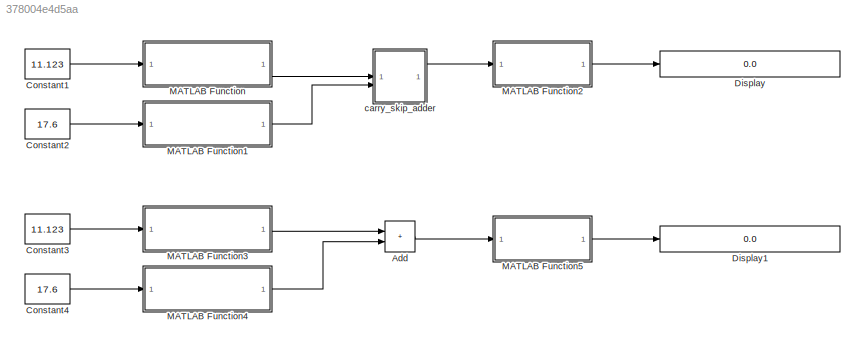
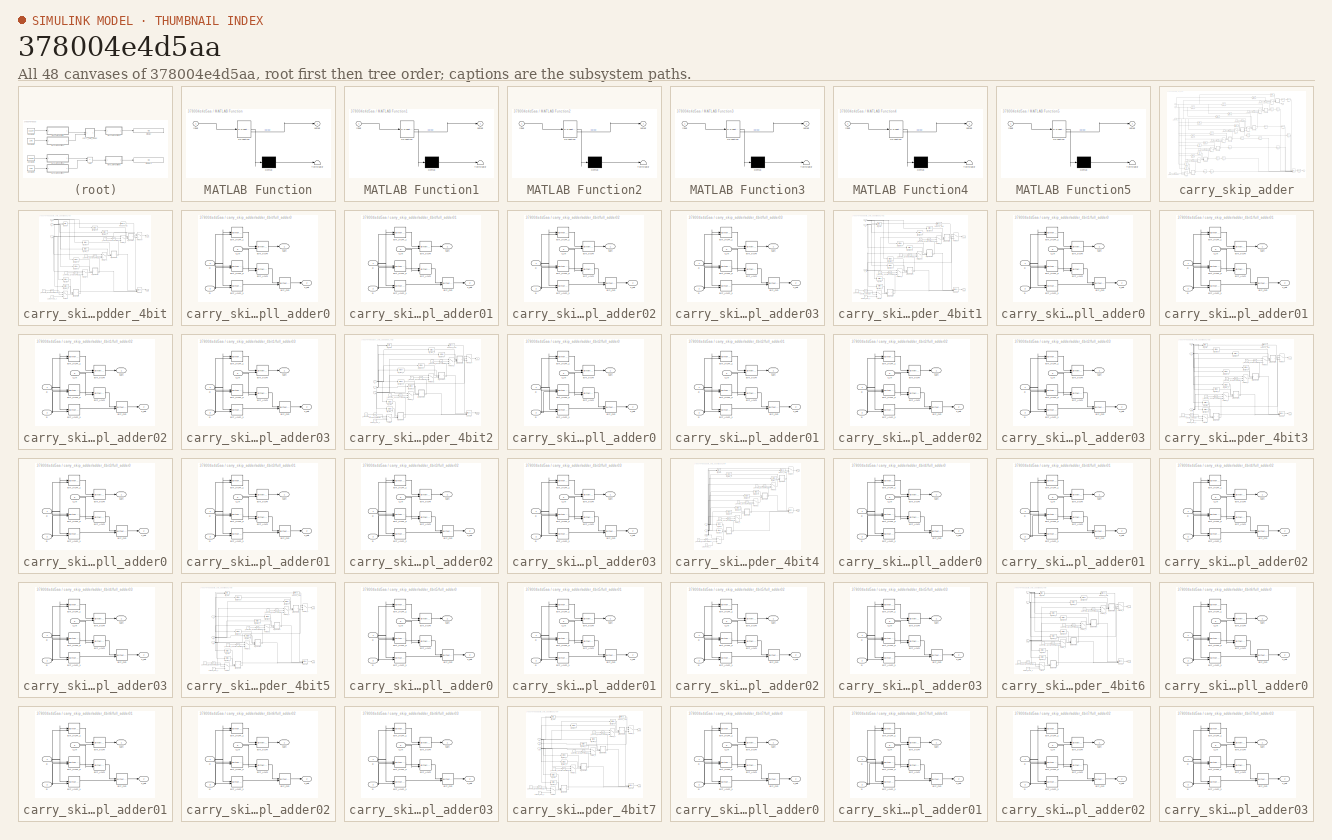
[diagram: thumbnail index - all 48 canvases of the model, root first then tree order]
MODEL slx_378004e4d5aa
KIND model
CONFIG AbsTol = auto
CONFIG EnableMultiTasking = off
CONFIG FixedStep = auto
CONFIG MaxStep = auto
CONFIG MinStep = auto
CONFIG PreLoadFcn = addpath('<path>');\n
CONFIG RelTol = 1e-3
CONFIG SampleTimeConstraint = Unconstrained
CONFIG SolverName = FixedStepDiscrete
CONFIG StartTime = 0.0
CONFIG StopTime = 10.0
BLOCK [Sum] Add
  IconShape = rectangular
BLOCK [Constant] Constant1
  OutDataTypeStr = fixdt(1,32,8)
  Value = 11.123
BLOCK [Constant] Constant2
  OutDataTypeStr = fixdt(1,32,8)
  Value = 17.6
BLOCK [Constant] Constant3
  OutDataTypeStr = fixdt(1,32,8)
  Value = 11.123
BLOCK [Constant] Constant4
  OutDataTypeStr = fixdt(1,32,8)
  Value = 17.6
BLOCK [Display] Display
  Decimation = 1
  Format = long
BLOCK [Display] Display1
  Decimation = 1
  Format = long
BLOCK [SubSystem] MATLAB Function
  ErrorFcn = Stateflow.Translate.translate
  LibrarySourceBlock = simulink/User-Defined\nFunctions/MATLAB Function
  PermitHierarchicalResolution = ExplicitOnly
  SFBlockType = MATLAB Function
  TreatAsAtomicUnit = on
BLOCK [Demux] MATLAB Function/ Demux 
  Outputs = 1
BLOCK [S-Function] MATLAB Function/ SFunction 
  EnableBusSupport = on
  FunctionName = sf_sfun
  PortCounts = [1 2]
  SFcnIsStateOwnerBlock = off
  SFunctionDeploymentMode = off
  Tag = Stateflow S-Function 2
BLOCK [Terminator] MATLAB Function/ Terminator 
BLOCK [Inport] MATLAB Function/input
BLOCK [Outport] MATLAB Function/output
BLOCK [SubSystem] MATLAB Function1
  ErrorFcn = Stateflow.Translate.translate
  LibrarySourceBlock = simulink/User-Defined\nFunctions/MATLAB Function
  PermitHierarchicalResolution = ExplicitOnly
  SFBlockType = MATLAB Function
  TreatAsAtomicUnit = on
BLOCK [Demux] MATLAB Function1/ Demux 
  Outputs = 1
BLOCK [S-Function] MATLAB Function1/ SFunction 
  EnableBusSupport = on
  FunctionName = sf_sfun
  PortCounts = [1 2]
  SFcnIsStateOwnerBlock = off
  SFunctionDeploymentMode = off
  Tag = Stateflow S-Function 1
BLOCK [Terminator] MATLAB Function1/ Terminator 
BLOCK [Inport] MATLAB Function1/input
BLOCK [Outport] MATLAB Function1/output
BLOCK [SubSystem] MATLAB Function2
  ErrorFcn = Stateflow.Translate.translate
  LibrarySourceBlock = simulink/User-Defined\nFunctions/MATLAB Function
  PermitHierarchicalResolution = ExplicitOnly
  SFBlockType = MATLAB Function
  TreatAsAtomicUnit = on
BLOCK [Demux] MATLAB Function2/ Demux 
  Outputs = 1
BLOCK [S-Function] MATLAB Function2/ SFunction 
  EnableBusSupport = on
  FunctionName = sf_sfun
  PortCounts = [1 2]
  SFcnIsStateOwnerBlock = off
  SFunctionDeploymentMode = off
  Tag = Stateflow S-Function 3
BLOCK [Terminator] MATLAB Function2/ Terminator 
BLOCK [Inport] MATLAB Function2/input
BLOCK [Outport] MATLAB Function2/output
BLOCK [SubSystem] MATLAB Function3
  ErrorFcn = Stateflow.Translate.translate
  LibrarySourceBlock = simulink/User-Defined\nFunctions/MATLAB Function
  PermitHierarchicalResolution = ExplicitOnly
  SFBlockType = MATLAB Function
  TreatAsAtomicUnit = on
BLOCK [Demux] MATLAB Function3/ Demux 
  Outputs = 1
BLOCK [S-Function] MATLAB Function3/ SFunction 
  EnableBusSupport = on
  FunctionName = sf_sfun
  PortCounts = [1 2]
  SFcnIsStateOwnerBlock = off
  SFunctionDeploymentMode = off
  Tag = Stateflow S-Function 4
BLOCK [Terminator] MATLAB Function3/ Terminator 
BLOCK [Inport] MATLAB Function3/input
BLOCK [Outport] MATLAB Function3/output
BLOCK [SubSystem] MATLAB Function4
  ErrorFcn = Stateflow.Translate.translate
  LibrarySourceBlock = simulink/User-Defined\nFunctions/MATLAB Function
  PermitHierarchicalResolution = ExplicitOnly
  SFBlockType = MATLAB Function
  TreatAsAtomicUnit = on
BLOCK [Demux] MATLAB Function4/ Demux 
  Outputs = 1
BLOCK [S-Function] MATLAB Function4/ SFunction 
  EnableBusSupport = on
  FunctionName = sf_sfun
  PortCounts = [1 2]
  SFcnIsStateOwnerBlock = off
  SFunctionDeploymentMode = off
  Tag = Stateflow S-Function 5
BLOCK [Terminator] MATLAB Function4/ Terminator 
BLOCK [Inport] MATLAB Function4/input
BLOCK [Outport] MATLAB Function4/output
BLOCK [SubSystem] MATLAB Function5
  ErrorFcn = Stateflow.Translate.translate
  LibrarySourceBlock = simulink/User-Defined\nFunctions/MATLAB Function
  PermitHierarchicalResolution = ExplicitOnly
  SFBlockType = MATLAB Function
  TreatAsAtomicUnit = on
BLOCK [Demux] MATLAB Function5/ Demux 
  Outputs = 1
BLOCK [S-Function] MATLAB Function5/ SFunction 
  EnableBusSupport = on
  FunctionName = sf_sfun
  PortCounts = [1 2]
  SFcnIsStateOwnerBlock = off
  SFunctionDeploymentMode = off
  Tag = Stateflow S-Function 6
BLOCK [Terminator] MATLAB Function5/ Terminator 
BLOCK [Inport] MATLAB Function5/input
BLOCK [Outport] MATLAB Function5/output
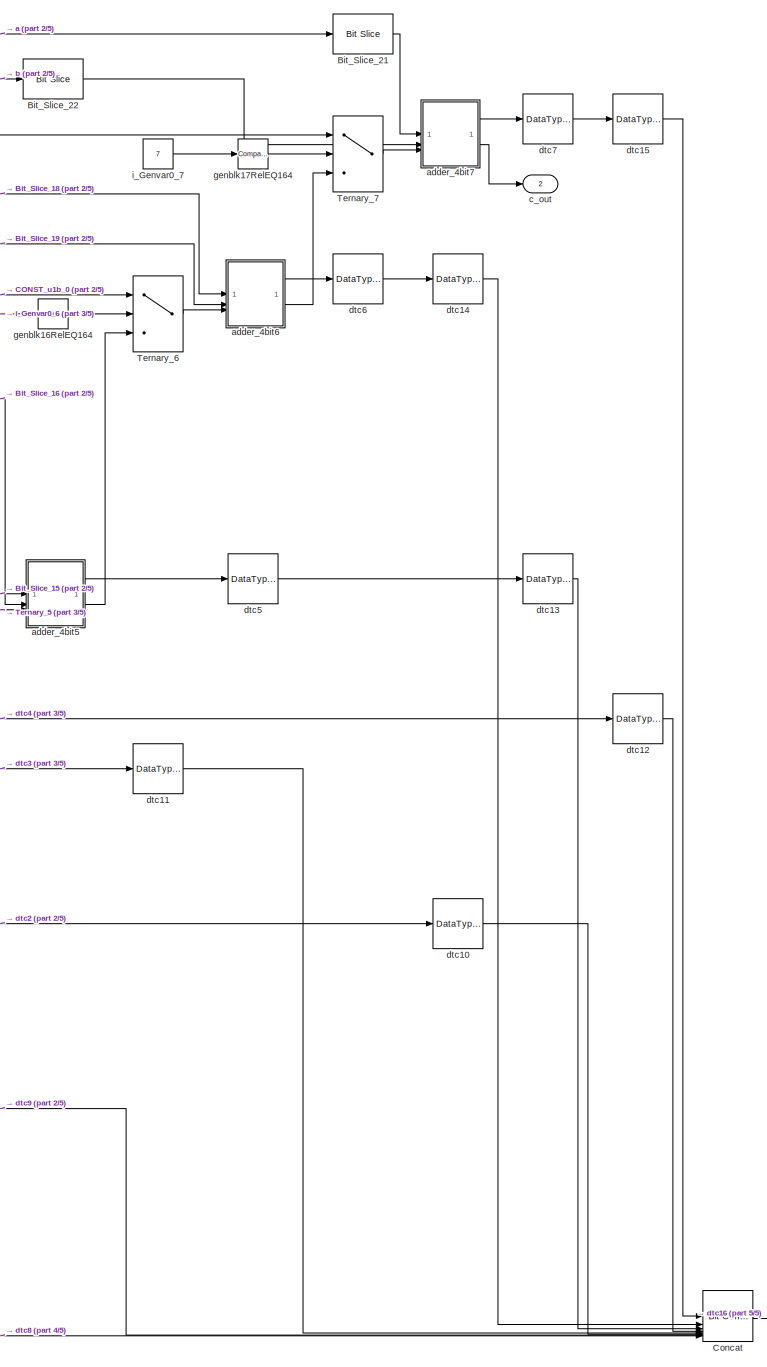
[diagram: carry_skip_adder - part 1/5, right side, full height]
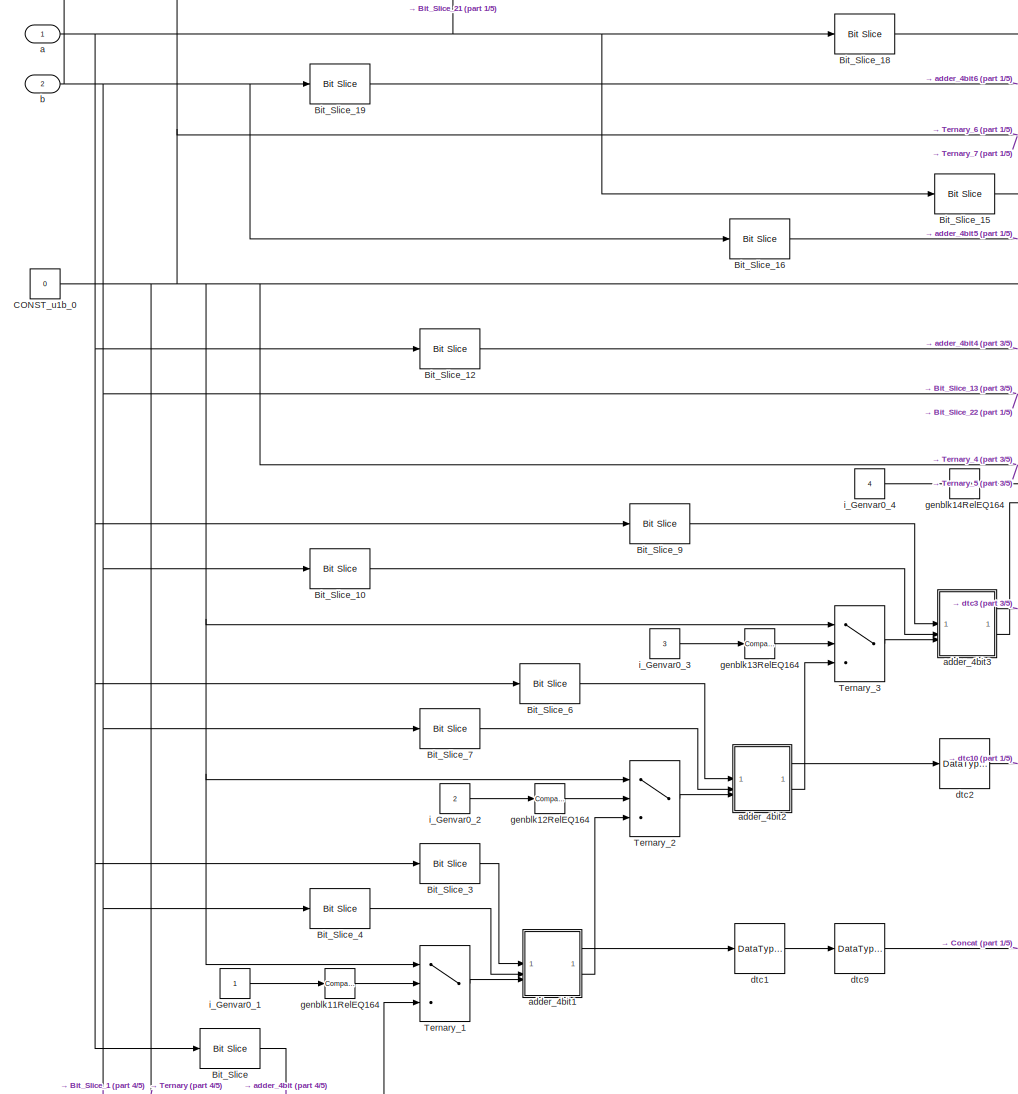
[diagram: carry_skip_adder - part 2/5, left side, full height]
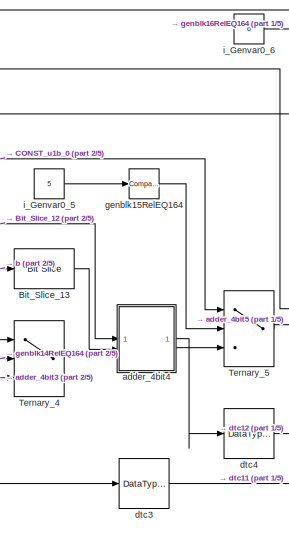
[diagram: carry_skip_adder - part 3/5, central region]
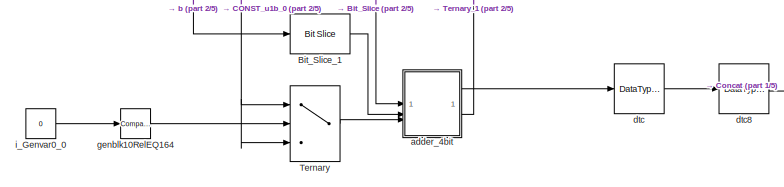
[diagram: carry_skip_adder - part 4/5, bottom left region]
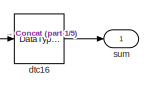
[diagram: carry_skip_adder - part 5/5, bottom right region]
BLOCK [SubSystem] carry_skip_adder
BLOCK [Reference] carry_skip_adder/Bit_Slice  REF=hdlsllib/Logic and Bit
Operations/Bit Slice
  SourceBlock = hdlsllib/Logic and Bit\nOperations/Bit Slice
  SourceType = Bit Slice
BLOCK [Reference] carry_skip_adder/Bit_Slice_1  REF=hdlsllib/Logic and Bit
Operations/Bit Slice
  SourceBlock = hdlsllib/Logic and Bit\nOperations/Bit Slice
  SourceType = Bit Slice
BLOCK [Reference] carry_skip_adder/Bit_Slice_10  REF=hdlsllib/Logic and Bit
Operations/Bit Slice
  SourceBlock = hdlsllib/Logic and Bit\nOperations/Bit Slice
  SourceType = Bit Slice
BLOCK [Reference] carry_skip_adder/Bit_Slice_12  REF=hdlsllib/Logic and Bit
Operations/Bit Slice
  SourceBlock = hdlsllib/Logic and Bit\nOperations/Bit Slice
  SourceType = Bit Slice
BLOCK [Reference] carry_skip_adder/Bit_Slice_13  REF=hdlsllib/Logic and Bit
Operations/Bit Slice
  SourceBlock = hdlsllib/Logic and Bit\nOperations/Bit Slice
  SourceType = Bit Slice
BLOCK [Reference] carry_skip_adder/Bit_Slice_15  REF=hdlsllib/Logic and Bit
Operations/Bit Slice
  SourceBlock = hdlsllib/Logic and Bit\nOperations/Bit Slice
  SourceType = Bit Slice
BLOCK [Reference] carry_skip_adder/Bit_Slice_16  REF=hdlsllib/Logic and Bit
Operations/Bit Slice
  SourceBlock = hdlsllib/Logic and Bit\nOperations/Bit Slice
  SourceType = Bit Slice
BLOCK [Reference] carry_skip_adder/Bit_Slice_18  REF=hdlsllib/Logic and Bit
Operations/Bit Slice
  SourceBlock = hdlsllib/Logic and Bit\nOperations/Bit Slice
  SourceType = Bit Slice
BLOCK [Reference] carry_skip_adder/Bit_Slice_19  REF=hdlsllib/Logic and Bit
Operations/Bit Slice
  SourceBlock = hdlsllib/Logic and Bit\nOperations/Bit Slice
  SourceType = Bit Slice
BLOCK [Reference] carry_skip_adder/Bit_Slice_21  REF=hdlsllib/Logic and Bit
Operations/Bit Slice
  SourceBlock = hdlsllib/Logic and Bit\nOperations/Bit Slice
  SourceType = Bit Slice
BLOCK [Reference] carry_skip_adder/Bit_Slice_22  REF=hdlsllib/Logic and Bit
Operations/Bit Slice
  SourceBlock = hdlsllib/Logic and Bit\nOperations/Bit Slice
  SourceType = Bit Slice
BLOCK [Reference] carry_skip_adder/Bit_Slice_3  REF=hdlsllib/Logic and Bit
Operations/Bit Slice
  SourceBlock = hdlsllib/Logic and Bit\nOperations/Bit Slice
  SourceType = Bit Slice
BLOCK [Reference] carry_skip_adder/Bit_Slice_4  REF=hdlsllib/Logic and Bit
Operations/Bit Slice
  SourceBlock = hdlsllib/Logic and Bit\nOperations/Bit Slice
  SourceType = Bit Slice
BLOCK [Reference] carry_skip_adder/Bit_Slice_6  REF=hdlsllib/Logic and Bit
Operations/Bit Slice
  SourceBlock = hdlsllib/Logic and Bit\nOperations/Bit Slice
  SourceType = Bit Slice
BLOCK [Reference] carry_skip_adder/Bit_Slice_7  REF=hdlsllib/Logic and Bit
Operations/Bit Slice
  SourceBlock = hdlsllib/Logic and Bit\nOperations/Bit Slice
  SourceType = Bit Slice
BLOCK [Reference] carry_skip_adder/Bit_Slice_9  REF=hdlsllib/Logic and Bit
Operations/Bit Slice
  SourceBlock = hdlsllib/Logic and Bit\nOperations/Bit Slice
  SourceType = Bit Slice
BLOCK [Constant] carry_skip_adder/CONST_u1b_0
  OutDataTypeStr = fixdt(0, 1, 0)
  SampleTime = -1
  Value = 0
BLOCK [Reference] carry_skip_adder/Concat  REF=hdlsllib/Logic and Bit
Operations/Bit Concat
  SourceBlock = hdlsllib/Logic and Bit\nOperations/Bit Concat
  SourceType = Bit Concat
BLOCK [Switch] carry_skip_adder/Ternary
  Criteria = u2 ~= 0
  InputSameDT = off
  OutDataTypeStr = fixdt(0, 1, 0)
  SampleTime = -1
  SaturateOnIntegerOverflow = off
  Threshold = double(0)
BLOCK [Switch] carry_skip_adder/Ternary_1
  Criteria = u2 ~= 0
  InputSameDT = off
  OutDataTypeStr = fixdt(0, 1, 0)
  SampleTime = -1
  SaturateOnIntegerOverflow = off
  Threshold = double(0)
BLOCK [Switch] carry_skip_adder/Ternary_2
  Criteria = u2 ~= 0
  InputSameDT = off
  OutDataTypeStr = fixdt(0, 1, 0)
  SampleTime = -1
  SaturateOnIntegerOverflow = off
  Threshold = double(0)
BLOCK [Switch] carry_skip_adder/Ternary_3
  Criteria = u2 ~= 0
  InputSameDT = off
  OutDataTypeStr = fixdt(0, 1, 0)
  SampleTime = -1
  SaturateOnIntegerOverflow = off
  Threshold = double(0)
BLOCK [Switch] carry_skip_adder/Ternary_4
  Criteria = u2 ~= 0
  InputSameDT = off
  OutDataTypeStr = fixdt(0, 1, 0)
  SampleTime = -1
  SaturateOnIntegerOverflow = off
  Threshold = double(0)
BLOCK [Switch] carry_skip_adder/Ternary_5
  Criteria = u2 ~= 0
  InputSameDT = off
  OutDataTypeStr = fixdt(0, 1, 0)
  SampleTime = -1
  SaturateOnIntegerOverflow = off
  Threshold = double(0)
BLOCK [Switch] carry_skip_adder/Ternary_6
  Criteria = u2 ~= 0
  InputSameDT = off
  OutDataTypeStr = fixdt(0, 1, 0)
  SampleTime = -1
  SaturateOnIntegerOverflow = off
  Threshold = double(0)
BLOCK [Switch] carry_skip_adder/Ternary_7
  Criteria = u2 ~= 0
  InputSameDT = off
  OutDataTypeStr = fixdt(0, 1, 0)
  SampleTime = -1
  SaturateOnIntegerOverflow = off
  Threshold = double(0)
BLOCK [Inport] carry_skip_adder/a
  OutDataTypeStr = int32
  SampleTime = -1
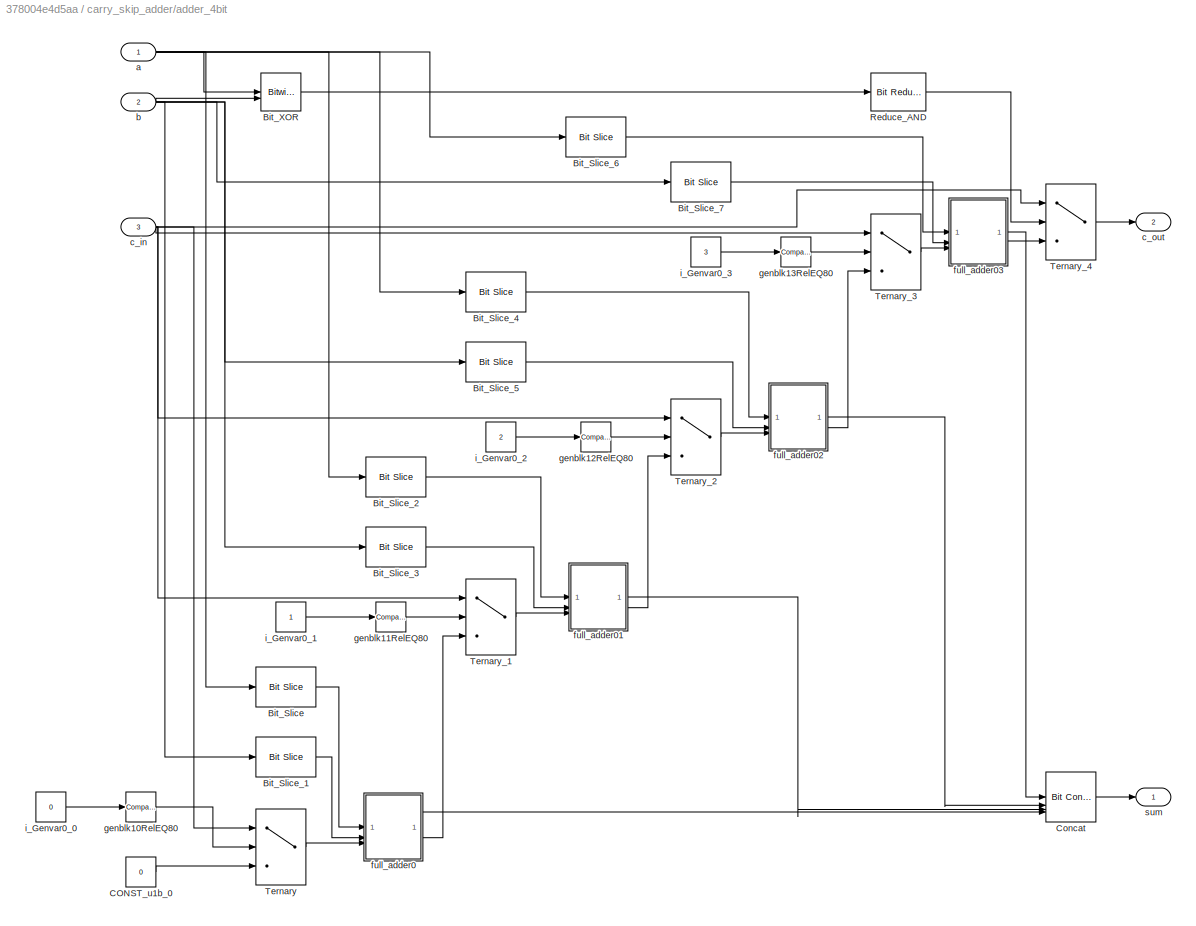
BLOCK [SubSystem] carry_skip_adder/adder_4bit
BLOCK [Reference] carry_skip_adder/adder_4bit/Bit_Slice  REF=hdlsllib/Logic and Bit
Operations/Bit Slice
  SourceBlock = hdlsllib/Logic and Bit\nOperations/Bit Slice
  SourceType = Bit Slice
BLOCK [Reference] carry_skip_adder/adder_4bit/Bit_Slice_1  REF=hdlsllib/Logic and Bit
Operations/Bit Slice
  SourceBlock = hdlsllib/Logic and Bit\nOperations/Bit Slice
  SourceType = Bit Slice
BLOCK [Reference] carry_skip_adder/adder_4bit/Bit_Slice_2  REF=hdlsllib/Logic and Bit
Operations/Bit Slice
  SourceBlock = hdlsllib/Logic and Bit\nOperations/Bit Slice
  SourceType = Bit Slice
BLOCK [Reference] carry_skip_adder/adder_4bit/Bit_Slice_3  REF=hdlsllib/Logic and Bit
Operations/Bit Slice
  SourceBlock = hdlsllib/Logic and Bit\nOperations/Bit Slice
  SourceType = Bit Slice
BLOCK [Reference] carry_skip_adder/adder_4bit/Bit_Slice_4  REF=hdlsllib/Logic and Bit
Operations/Bit Slice
  SourceBlock = hdlsllib/Logic and Bit\nOperations/Bit Slice
  SourceType = Bit Slice
BLOCK [Reference] carry_skip_adder/adder_4bit/Bit_Slice_5  REF=hdlsllib/Logic and Bit
Operations/Bit Slice
  SourceBlock = hdlsllib/Logic and Bit\nOperations/Bit Slice
  SourceType = Bit Slice
BLOCK [Reference] carry_skip_adder/adder_4bit/Bit_Slice_6  REF=hdlsllib/Logic and Bit
Operations/Bit Slice
  SourceBlock = hdlsllib/Logic and Bit\nOperations/Bit Slice
  SourceType = Bit Slice
BLOCK [Reference] carry_skip_adder/adder_4bit/Bit_Slice_7  REF=hdlsllib/Logic and Bit
Operations/Bit Slice
  SourceBlock = hdlsllib/Logic and Bit\nOperations/Bit Slice
  SourceType = Bit Slice
BLOCK [Reference] carry_skip_adder/adder_4bit/Bit_XOR  REF=simulink/Logic and Bit
Operations/Bitwise
Operator
  SourceBlock = simulink/Logic and Bit\nOperations/Bitwise\nOperator
  SourceType = Bitwise Operator
BLOCK [Constant] carry_skip_adder/adder_4bit/CONST_u1b_0
  OutDataTypeStr = fixdt(0, 1, 0)
  SampleTime = -1
  Value = 0
BLOCK [Reference] carry_skip_adder/adder_4bit/Concat  REF=hdlsllib/Logic and Bit
Operations/Bit Concat
  SourceBlock = hdlsllib/Logic and Bit\nOperations/Bit Concat
  SourceType = Bit Concat
BLOCK [Reference] carry_skip_adder/adder_4bit/Reduce_AND  REF=hdlsllib/Logic and Bit
Operations/Bit Reduce
  SourceBlock = hdlsllib/Logic and Bit\nOperations/Bit Reduce
  SourceType = Bit Reduce
BLOCK [Switch] carry_skip_adder/adder_4bit/Ternary
  Criteria = u2 ~= 0
  InputSameDT = off
  OutDataTypeStr = fixdt(0, 1, 0)
  SampleTime = -1
  SaturateOnIntegerOverflow = off
  Threshold = double(0)
BLOCK [Switch] carry_skip_adder/adder_4bit/Ternary_1
  Criteria = u2 ~= 0
  InputSameDT = off
  OutDataTypeStr = fixdt(0, 1, 0)
  SampleTime = -1
  SaturateOnIntegerOverflow = off
  Threshold = double(0)
BLOCK [Switch] carry_skip_adder/adder_4bit/Ternary_2
  Criteria = u2 ~= 0
  InputSameDT = off
  OutDataTypeStr = fixdt(0, 1, 0)
  SampleTime = -1
  SaturateOnIntegerOverflow = off
  Threshold = double(0)
BLOCK [Switch] carry_skip_adder/adder_4bit/Ternary_3
  Criteria = u2 ~= 0
  InputSameDT = off
  OutDataTypeStr = fixdt(0, 1, 0)
  SampleTime = -1
  SaturateOnIntegerOverflow = off
  Threshold = double(0)
BLOCK [Switch] carry_skip_adder/adder_4bit/Ternary_4
  Criteria = u2 ~= 0
  InputSameDT = off
  OutDataTypeStr = fixdt(0, 1, 0)
  SampleTime = -1
  SaturateOnIntegerOverflow = off
  Threshold = double(0)
BLOCK [Inport] carry_skip_adder/adder_4bit/a
  OutDataTypeStr = fixdt(0, 4, 0)
  SampleTime = -1
BLOCK [Inport] carry_skip_adder/adder_4bit/b
  OutDataTypeStr = fixdt(0, 4, 0)
  Port = 2
  SampleTime = -1
BLOCK [Inport] carry_skip_adder/adder_4bit/c_in
  OutDataTypeStr = fixdt(0, 1, 0)
  Port = 3
  SampleTime = -1
BLOCK [Outport] carry_skip_adder/adder_4bit/c_out
  OutDataTypeStr = fixdt(0, 1, 0)
  Port = 2
  SampleTime = -1
BLOCK [SubSystem] carry_skip_adder/adder_4bit/full_adder0
BLOCK [Reference] carry_skip_adder/adder_4bit/full_adder0/Bit_AND  REF=simulink/Logic and Bit
Operations/Bitwise
Operator
  SourceBlock = simulink/Logic and Bit\nOperations/Bitwise\nOperator
  SourceType = Bitwise Operator
BLOCK [Reference] carry_skip_adder/adder_4bit/full_adder0/Bit_AND_1  REF=simulink/Logic and Bit
Operations/Bitwise
Operator
  SourceBlock = simulink/Logic and Bit\nOperations/Bitwise\nOperator
  SourceType = Bitwise Operator
BLOCK [Reference] carry_skip_adder/adder_4bit/full_adder0/Bit_OR  REF=simulink/Logic and Bit
Operations/Bitwise
Operator
  SourceBlock = simulink/Logic and Bit\nOperations/Bitwise\nOperator
  SourceType = Bitwise Operator
BLOCK [Reference] carry_skip_adder/adder_4bit/full_adder0/Bit_XOR  REF=simulink/Logic and Bit
Operations/Bitwise
Operator
  SourceBlock = simulink/Logic and Bit\nOperations/Bitwise\nOperator
  SourceType = Bitwise Operator
BLOCK [Reference] carry_skip_adder/adder_4bit/full_adder0/Bit_XOR_1  REF=simulink/Logic and Bit
Operations/Bitwise
Operator
  SourceBlock = simulink/Logic and Bit\nOperations/Bitwise\nOperator
  SourceType = Bitwise Operator
BLOCK [Reference] carry_skip_adder/adder_4bit/full_adder0/Bit_XOR_2  REF=simulink/Logic and Bit
Operations/Bitwise
Operator
  SourceBlock = simulink/Logic and Bit\nOperations/Bitwise\nOperator
  SourceType = Bitwise Operator
BLOCK [Inport] carry_skip_adder/adder_4bit/full_adder0/a
  OutDataTypeStr = fixdt(0, 1, 0)
  SampleTime = -1
BLOCK [Inport] carry_skip_adder/adder_4bit/full_adder0/b
  OutDataTypeStr = fixdt(0, 1, 0)
  Port = 2
  SampleTime = -1
BLOCK [Inport] carry_skip_adder/adder_4bit/full_adder0/c_in
  OutDataTypeStr = fixdt(0, 1, 0)
  Port = 3
  SampleTime = -1
BLOCK [Outport] carry_skip_adder/adder_4bit/full_adder0/c_out
  OutDataTypeStr = fixdt(0, 1, 0)
  Port = 2
  SampleTime = -1
BLOCK [Outport] carry_skip_adder/adder_4bit/full_adder0/sum
  OutDataTypeStr = fixdt(0, 1, 0)
  SampleTime = -1
BLOCK [SubSystem] carry_skip_adder/adder_4bit/full_adder01
BLOCK [Reference] carry_skip_adder/adder_4bit/full_adder01/Bit_AND  REF=simulink/Logic and Bit
Operations/Bitwise
Operator
  SourceBlock = simulink/Logic and Bit\nOperations/Bitwise\nOperator
  SourceType = Bitwise Operator
BLOCK [Reference] carry_skip_adder/adder_4bit/full_adder01/Bit_AND_1  REF=simulink/Logic and Bit
Operations/Bitwise
Operator
  SourceBlock = simulink/Logic and Bit\nOperations/Bitwise\nOperator
  SourceType = Bitwise Operator
BLOCK [Reference] carry_skip_adder/adder_4bit/full_adder01/Bit_OR  REF=simulink/Logic and Bit
Operations/Bitwise
Operator
  SourceBlock = simulink/Logic and Bit\nOperations/Bitwise\nOperator
  SourceType = Bitwise Operator
BLOCK [Reference] carry_skip_adder/adder_4bit/full_adder01/Bit_XOR  REF=simulink/Logic and Bit
Operations/Bitwise
Operator
  SourceBlock = simulink/Logic and Bit\nOperations/Bitwise\nOperator
  SourceType = Bitwise Operator
BLOCK [Reference] carry_skip_adder/adder_4bit/full_adder01/Bit_XOR_1  REF=simulink/Logic and Bit
Operations/Bitwise
Operator
  SourceBlock = simulink/Logic and Bit\nOperations/Bitwise\nOperator
  SourceType = Bitwise Operator
BLOCK [Reference] carry_skip_adder/adder_4bit/full_adder01/Bit_XOR_2  REF=simulink/Logic and Bit
Operations/Bitwise
Operator
  SourceBlock = simulink/Logic and Bit\nOperations/Bitwise\nOperator
  SourceType = Bitwise Operator
BLOCK [Inport] carry_skip_adder/adder_4bit/full_adder01/a
  OutDataTypeStr = fixdt(0, 1, 0)
  SampleTime = -1
BLOCK [Inport] carry_skip_adder/adder_4bit/full_adder01/b
  OutDataTypeStr = fixdt(0, 1, 0)
  Port = 2
  SampleTime = -1
BLOCK [Inport] carry_skip_adder/adder_4bit/full_adder01/c_in
  OutDataTypeStr = fixdt(0, 1, 0)
  Port = 3
  SampleTime = -1
BLOCK [Outport] carry_skip_adder/adder_4bit/full_adder01/c_out
  OutDataTypeStr = fixdt(0, 1, 0)
  Port = 2
  SampleTime = -1
BLOCK [Outport] carry_skip_adder/adder_4bit/full_adder01/sum
  OutDataTypeStr = fixdt(0, 1, 0)
  SampleTime = -1
BLOCK [SubSystem] carry_skip_adder/adder_4bit/full_adder02
BLOCK [Reference] carry_skip_adder/adder_4bit/full_adder02/Bit_AND  REF=simulink/Logic and Bit
Operations/Bitwise
Operator
  SourceBlock = simulink/Logic and Bit\nOperations/Bitwise\nOperator
  SourceType = Bitwise Operator
BLOCK [Reference] carry_skip_adder/adder_4bit/full_adder02/Bit_AND_1  REF=simulink/Logic and Bit
Operations/Bitwise
Operator
  SourceBlock = simulink/Logic and Bit\nOperations/Bitwise\nOperator
  SourceType = Bitwise Operator
BLOCK [Reference] carry_skip_adder/adder_4bit/full_adder02/Bit_OR  REF=simulink/Logic and Bit
Operations/Bitwise
Operator
  SourceBlock = simulink/Logic and Bit\nOperations/Bitwise\nOperator
  SourceType = Bitwise Operator
BLOCK [Reference] carry_skip_adder/adder_4bit/full_adder02/Bit_XOR  REF=simulink/Logic and Bit
Operations/Bitwise
Operator
  SourceBlock = simulink/Logic and Bit\nOperations/Bitwise\nOperator
  SourceType = Bitwise Operator
BLOCK [Reference] carry_skip_adder/adder_4bit/full_adder02/Bit_XOR_1  REF=simulink/Logic and Bit
Operations/Bitwise
Operator
  SourceBlock = simulink/Logic and Bit\nOperations/Bitwise\nOperator
  SourceType = Bitwise Operator
BLOCK [Reference] carry_skip_adder/adder_4bit/full_adder02/Bit_XOR_2  REF=simulink/Logic and Bit
Operations/Bitwise
Operator
  SourceBlock = simulink/Logic and Bit\nOperations/Bitwise\nOperator
  SourceType = Bitwise Operator
BLOCK [Inport] carry_skip_adder/adder_4bit/full_adder02/a
  OutDataTypeStr = fixdt(0, 1, 0)
  SampleTime = -1
BLOCK [Inport] carry_skip_adder/adder_4bit/full_adder02/b
  OutDataTypeStr = fixdt(0, 1, 0)
  Port = 2
  SampleTime = -1
BLOCK [Inport] carry_skip_adder/adder_4bit/full_adder02/c_in
  OutDataTypeStr = fixdt(0, 1, 0)
  Port = 3
  SampleTime = -1
BLOCK [Outport] carry_skip_adder/adder_4bit/full_adder02/c_out
  OutDataTypeStr = fixdt(0, 1, 0)
  Port = 2
  SampleTime = -1
BLOCK [Outport] carry_skip_adder/adder_4bit/full_adder02/sum
  OutDataTypeStr = fixdt(0, 1, 0)
  SampleTime = -1
BLOCK [SubSystem] carry_skip_adder/adder_4bit/full_adder03
BLOCK [Reference] carry_skip_adder/adder_4bit/full_adder03/Bit_AND  REF=simulink/Logic and Bit
Operations/Bitwise
Operator
  SourceBlock = simulink/Logic and Bit\nOperations/Bitwise\nOperator
  SourceType = Bitwise Operator
BLOCK [Reference] carry_skip_adder/adder_4bit/full_adder03/Bit_AND_1  REF=simulink/Logic and Bit
Operations/Bitwise
Operator
  SourceBlock = simulink/Logic and Bit\nOperations/Bitwise\nOperator
  SourceType = Bitwise Operator
BLOCK [Reference] carry_skip_adder/adder_4bit/full_adder03/Bit_OR  REF=simulink/Logic and Bit
Operations/Bitwise
Operator
  SourceBlock = simulink/Logic and Bit\nOperations/Bitwise\nOperator
  SourceType = Bitwise Operator
BLOCK [Reference] carry_skip_adder/adder_4bit/full_adder03/Bit_XOR  REF=simulink/Logic and Bit
Operations/Bitwise
Operator
  SourceBlock = simulink/Logic and Bit\nOperations/Bitwise\nOperator
  SourceType = Bitwise Operator
BLOCK [Reference] carry_skip_adder/adder_4bit/full_adder03/Bit_XOR_1  REF=simulink/Logic and Bit
Operations/Bitwise
Operator
  SourceBlock = simulink/Logic and Bit\nOperations/Bitwise\nOperator
  SourceType = Bitwise Operator
BLOCK [Reference] carry_skip_adder/adder_4bit/full_adder03/Bit_XOR_2  REF=simulink/Logic and Bit
Operations/Bitwise
Operator
  SourceBlock = simulink/Logic and Bit\nOperations/Bitwise\nOperator
  SourceType = Bitwise Operator
BLOCK [Inport] carry_skip_adder/adder_4bit/full_adder03/a
  OutDataTypeStr = fixdt(0, 1, 0)
  SampleTime = -1
BLOCK [Inport] carry_skip_adder/adder_4bit/full_adder03/b
  OutDataTypeStr = fixdt(0, 1, 0)
  Port = 2
  SampleTime = -1
BLOCK [Inport] carry_skip_adder/adder_4bit/full_adder03/c_in
  OutDataTypeStr = fixdt(0, 1, 0)
  Port = 3
  SampleTime = -1
BLOCK [Outport] carry_skip_adder/adder_4bit/full_adder03/c_out
  OutDataTypeStr = fixdt(0, 1, 0)
  Port = 2
  SampleTime = -1
BLOCK [Outport] carry_skip_adder/adder_4bit/full_adder03/sum
  OutDataTypeStr = fixdt(0, 1, 0)
  SampleTime = -1
BLOCK [Reference] carry_skip_adder/adder_4bit/genblk10RelEQ80  REF=simulink/Logic and Bit
Operations/Compare
To Constant
  SourceBlock = simulink/Logic and Bit\nOperations/Compare\nTo Constant
  SourceType = Compare To Constant
BLOCK [Reference] carry_skip_adder/adder_4bit/genblk11RelEQ80  REF=simulink/Logic and Bit
Operations/Compare
To Constant
  SourceBlock = simulink/Logic and Bit\nOperations/Compare\nTo Constant
  SourceType = Compare To Constant
BLOCK [Reference] carry_skip_adder/adder_4bit/genblk12RelEQ80  REF=simulink/Logic and Bit
Operations/Compare
To Constant
  SourceBlock = simulink/Logic and Bit\nOperations/Compare\nTo Constant
  SourceType = Compare To Constant
BLOCK [Reference] carry_skip_adder/adder_4bit/genblk13RelEQ80  REF=simulink/Logic and Bit
Operations/Compare
To Constant
  SourceBlock = simulink/Logic and Bit\nOperations/Compare\nTo Constant
  SourceType = Compare To Constant
BLOCK [Constant] carry_skip_adder/adder_4bit/i_Genvar0_0
  OutDataTypeStr = int32
  SampleTime = -1
  Value = 0
BLOCK [Constant] carry_skip_adder/adder_4bit/i_Genvar0_1
  OutDataTypeStr = int32
  SampleTime = -1
BLOCK [Constant] carry_skip_adder/adder_4bit/i_Genvar0_2
  OutDataTypeStr = int32
  SampleTime = -1
  Value = 2
BLOCK [Constant] carry_skip_adder/adder_4bit/i_Genvar0_3
  OutDataTypeStr = int32
  SampleTime = -1
  Value = 3
BLOCK [Outport] carry_skip_adder/adder_4bit/sum
  OutDataTypeStr = fixdt(0, 4, 0)
  SampleTime = -1
BLOCK [SubSystem] carry_skip_adder/adder_4bit1
BLOCK [Reference] carry_skip_adder/adder_4bit1/Bit_Slice  REF=hdlsllib/Logic and Bit
Operations/Bit Slice
  SourceBlock = hdlsllib/Logic and Bit\nOperations/Bit Slice
  SourceType = Bit Slice
BLOCK [Reference] carry_skip_adder/adder_4bit1/Bit_Slice_1  REF=hdlsllib/Logic and Bit
Operations/Bit Slice
  SourceBlock = hdlsllib/Logic and Bit\nOperations/Bit Slice
  SourceType = Bit Slice
BLOCK [Reference] carry_skip_adder/adder_4bit1/Bit_Slice_2  REF=hdlsllib/Logic and Bit
Operations/Bit Slice
  SourceBlock = hdlsllib/Logic and Bit\nOperations/Bit Slice
  SourceType = Bit Slice
BLOCK [Reference] carry_skip_adder/adder_4bit1/Bit_Slice_3  REF=hdlsllib/Logic and Bit
Operations/Bit Slice
  SourceBlock = hdlsllib/Logic and Bit\nOperations/Bit Slice
  SourceType = Bit Slice
BLOCK [Reference] carry_skip_adder/adder_4bit1/Bit_Slice_4  REF=hdlsllib/Logic and Bit
Operations/Bit Slice
  SourceBlock = hdlsllib/Logic and Bit\nOperations/Bit Slice
  SourceType = Bit Slice
BLOCK [Reference] carry_skip_adder/adder_4bit1/Bit_Slice_5  REF=hdlsllib/Logic and Bit
Operations/Bit Slice
  SourceBlock = hdlsllib/Logic and Bit\nOperations/Bit Slice
  SourceType = Bit Slice
BLOCK [Reference] carry_skip_adder/adder_4bit1/Bit_Slice_6  REF=hdlsllib/Logic and Bit
Operations/Bit Slice
  SourceBlock = hdlsllib/Logic and Bit\nOperations/Bit Slice
  SourceType = Bit Slice
BLOCK [Reference] carry_skip_adder/adder_4bit1/Bit_Slice_7  REF=hdlsllib/Logic and Bit
Operations/Bit Slice
  SourceBlock = hdlsllib/Logic and Bit\nOperations/Bit Slice
  SourceType = Bit Slice
BLOCK [Reference] carry_skip_adder/adder_4bit1/Bit_XOR  REF=simulink/Logic and Bit
Operations/Bitwise
Operator
  SourceBlock = simulink/Logic and Bit\nOperations/Bitwise\nOperator
  SourceType = Bitwise Operator
BLOCK [Constant] carry_skip_adder/adder_4bit1/CONST_u1b_0
  OutDataTypeStr = fixdt(0, 1, 0)
  SampleTime = -1
  Value = 0
BLOCK [Reference] carry_skip_adder/adder_4bit1/Concat  REF=hdlsllib/Logic and Bit
Operations/Bit Concat
  SourceBlock = hdlsllib/Logic and Bit\nOperations/Bit Concat
  SourceType = Bit Concat
BLOCK [Reference] carry_skip_adder/adder_4bit1/Reduce_AND  REF=hdlsllib/Logic and Bit
Operations/Bit Reduce
  SourceBlock = hdlsllib/Logic and Bit\nOperations/Bit Reduce
  SourceType = Bit Reduce
BLOCK [Switch] carry_skip_adder/adder_4bit1/Ternary
  Criteria = u2 ~= 0
  InputSameDT = off
  OutDataTypeStr = fixdt(0, 1, 0)
  SampleTime = -1
  SaturateOnIntegerOverflow = off
  Threshold = double(0)
BLOCK [Switch] carry_skip_adder/adder_4bit1/Ternary_1
  Criteria = u2 ~= 0
  InputSameDT = off
  OutDataTypeStr = fixdt(0, 1, 0)
  SampleTime = -1
  SaturateOnIntegerOverflow = off
  Threshold = double(0)
BLOCK [Switch] carry_skip_adder/adder_4bit1/Ternary_2
  Criteria = u2 ~= 0
  InputSameDT = off
  OutDataTypeStr = fixdt(0, 1, 0)
  SampleTime = -1
  SaturateOnIntegerOverflow = off
  Threshold = double(0)
BLOCK [Switch] carry_skip_adder/adder_4bit1/Ternary_3
  Criteria = u2 ~= 0
  InputSameDT = off
  OutDataTypeStr = fixdt(0, 1, 0)
  SampleTime = -1
  SaturateOnIntegerOverflow = off
  Threshold = double(0)
BLOCK [Switch] carry_skip_adder/adder_4bit1/Ternary_4
  Criteria = u2 ~= 0
  InputSameDT = off
  OutDataTypeStr = fixdt(0, 1, 0)
  SampleTime = -1
  SaturateOnIntegerOverflow = off
  Threshold = double(0)
BLOCK [Inport] carry_skip_adder/adder_4bit1/a
  OutDataTypeStr = fixdt(0, 4, 0)
  SampleTime = -1
BLOCK [Inport] carry_skip_adder/adder_4bit1/b
  OutDataTypeStr = fixdt(0, 4, 0)
  Port = 2
  SampleTime = -1
BLOCK [Inport] carry_skip_adder/adder_4bit1/c_in
  OutDataTypeStr = fixdt(0, 1, 0)
  Port = 3
  SampleTime = -1
BLOCK [Outport] carry_skip_adder/adder_4bit1/c_out
  OutDataTypeStr = fixdt(0, 1, 0)
  Port = 2
  SampleTime = -1
BLOCK [SubSystem] carry_skip_adder/adder_4bit1/full_adder0
BLOCK [Reference] carry_skip_adder/adder_4bit1/full_adder0/Bit_AND  REF=simulink/Logic and Bit
Operations/Bitwise
Operator
  SourceBlock = simulink/Logic and Bit\nOperations/Bitwise\nOperator
  SourceType = Bitwise Operator
BLOCK [Reference] carry_skip_adder/adder_4bit1/full_adder0/Bit_AND_1  REF=simulink/Logic and Bit
Operations/Bitwise
Operator
  SourceBlock = simulink/Logic and Bit\nOperations/Bitwise\nOperator
  SourceType = Bitwise Operator
BLOCK [Reference] carry_skip_adder/adder_4bit1/full_adder0/Bit_OR  REF=simulink/Logic and Bit
Operations/Bitwise
Operator
  SourceBlock = simulink/Logic and Bit\nOperations/Bitwise\nOperator
  SourceType = Bitwise Operator
BLOCK [Reference] carry_skip_adder/adder_4bit1/full_adder0/Bit_XOR  REF=simulink/Logic and Bit
Operations/Bitwise
Operator
  SourceBlock = simulink/Logic and Bit\nOperations/Bitwise\nOperator
  SourceType = Bitwise Operator
BLOCK [Reference] carry_skip_adder/adder_4bit1/full_adder0/Bit_XOR_1  REF=simulink/Logic and Bit
Operations/Bitwise
Operator
  SourceBlock = simulink/Logic and Bit\nOperations/Bitwise\nOperator
  SourceType = Bitwise Operator
BLOCK [Reference] carry_skip_adder/adder_4bit1/full_adder0/Bit_XOR_2  REF=simulink/Logic and Bit
Operations/Bitwise
Operator
  SourceBlock = simulink/Logic and Bit\nOperations/Bitwise\nOperator
  SourceType = Bitwise Operator
BLOCK [Inport] carry_skip_adder/adder_4bit1/full_adder0/a
  OutDataTypeStr = fixdt(0, 1, 0)
  SampleTime = -1
BLOCK [Inport] carry_skip_adder/adder_4bit1/full_adder0/b
  OutDataTypeStr = fixdt(0, 1, 0)
  Port = 2
  SampleTime = -1
BLOCK [Inport] carry_skip_adder/adder_4bit1/full_adder0/c_in
  OutDataTypeStr = fixdt(0, 1, 0)
  Port = 3
  SampleTime = -1
BLOCK [Outport] carry_skip_adder/adder_4bit1/full_adder0/c_out
  OutDataTypeStr = fixdt(0, 1, 0)
  Port = 2
  SampleTime = -1
BLOCK [Outport] carry_skip_adder/adder_4bit1/full_adder0/sum
  OutDataTypeStr = fixdt(0, 1, 0)
  SampleTime = -1
BLOCK [SubSystem] carry_skip_adder/adder_4bit1/full_adder01
BLOCK [Reference] carry_skip_adder/adder_4bit1/full_adder01/Bit_AND  REF=simulink/Logic and Bit
Operations/Bitwise
Operator
  SourceBlock = simulink/Logic and Bit\nOperations/Bitwise\nOperator
  SourceType = Bitwise Operator
BLOCK [Reference] carry_skip_adder/adder_4bit1/full_adder01/Bit_AND_1  REF=simulink/Logic and Bit
Operations/Bitwise
Operator
  SourceBlock = simulink/Logic and Bit\nOperations/Bitwise\nOperator
  SourceType = Bitwise Operator
BLOCK [Reference] carry_skip_adder/adder_4bit1/full_adder01/Bit_OR  REF=simulink/Logic and Bit
Operations/Bitwise
Operator
  SourceBlock = simulink/Logic and Bit\nOperations/Bitwise\nOperator
  SourceType = Bitwise Operator
BLOCK [Reference] carry_skip_adder/adder_4bit1/full_adder01/Bit_XOR  REF=simulink/Logic and Bit
Operations/Bitwise
Operator
  SourceBlock = simulink/Logic and Bit\nOperations/Bitwise\nOperator
  SourceType = Bitwise Operator
BLOCK [Reference] carry_skip_adder/adder_4bit1/full_adder01/Bit_XOR_1  REF=simulink/Logic and Bit
Operations/Bitwise
Operator
  SourceBlock = simulink/Logic and Bit\nOperations/Bitwise\nOperator
  SourceType = Bitwise Operator
BLOCK [Reference] carry_skip_adder/adder_4bit1/full_adder01/Bit_XOR_2  REF=simulink/Logic and Bit
Operations/Bitwise
Operator
  SourceBlock = simulink/Logic and Bit\nOperations/Bitwise\nOperator
  SourceType = Bitwise Operator
BLOCK [Inport] carry_skip_adder/adder_4bit1/full_adder01/a
  OutDataTypeStr = fixdt(0, 1, 0)
  SampleTime = -1
BLOCK [Inport] carry_skip_adder/adder_4bit1/full_adder01/b
  OutDataTypeStr = fixdt(0, 1, 0)
  Port = 2
  SampleTime = -1
BLOCK [Inport] carry_skip_adder/adder_4bit1/full_adder01/c_in
  OutDataTypeStr = fixdt(0, 1, 0)
  Port = 3
  SampleTime = -1
BLOCK [Outport] carry_skip_adder/adder_4bit1/full_adder01/c_out
  OutDataTypeStr = fixdt(0, 1, 0)
  Port = 2
  SampleTime = -1
BLOCK [Outport] carry_skip_adder/adder_4bit1/full_adder01/sum
  OutDataTypeStr = fixdt(0, 1, 0)
  SampleTime = -1
BLOCK [SubSystem] carry_skip_adder/adder_4bit1/full_adder02
BLOCK [Reference] carry_skip_adder/adder_4bit1/full_adder02/Bit_AND  REF=simulink/Logic and Bit
Operations/Bitwise
Operator
  SourceBlock = simulink/Logic and Bit\nOperations/Bitwise\nOperator
  SourceType = Bitwise Operator
BLOCK [Reference] carry_skip_adder/adder_4bit1/full_adder02/Bit_AND_1  REF=simulink/Logic and Bit
Operations/Bitwise
Operator
  SourceBlock = simulink/Logic and Bit\nOperations/Bitwise\nOperator
  SourceType = Bitwise Operator
BLOCK [Reference] carry_skip_adder/adder_4bit1/full_adder02/Bit_OR  REF=simulink/Logic and Bit
Operations/Bitwise
Operator
  SourceBlock = simulink/Logic and Bit\nOperations/Bitwise\nOperator
  SourceType = Bitwise Operator
BLOCK [Reference] carry_skip_adder/adder_4bit1/full_adder02/Bit_XOR  REF=simulink/Logic and Bit
Operations/Bitwise
Operator
  SourceBlock = simulink/Logic and Bit\nOperations/Bitwise\nOperator
  SourceType = Bitwise Operator
BLOCK [Reference] carry_skip_adder/adder_4bit1/full_adder02/Bit_XOR_1  REF=simulink/Logic and Bit
Operations/Bitwise
Operator
  SourceBlock = simulink/Logic and Bit\nOperations/Bitwise\nOperator
  SourceType = Bitwise Operator
BLOCK [Reference] carry_skip_adder/adder_4bit1/full_adder02/Bit_XOR_2  REF=simulink/Logic and Bit
Operations/Bitwise
Operator
  SourceBlock = simulink/Logic and Bit\nOperations/Bitwise\nOperator
  SourceType = Bitwise Operator
BLOCK [Inport] carry_skip_adder/adder_4bit1/full_adder02/a
  OutDataTypeStr = fixdt(0, 1, 0)
  SampleTime = -1
BLOCK [Inport] carry_skip_adder/adder_4bit1/full_adder02/b
  OutDataTypeStr = fixdt(0, 1, 0)
  Port = 2
  SampleTime = -1
BLOCK [Inport] carry_skip_adder/adder_4bit1/full_adder02/c_in
  OutDataTypeStr = fixdt(0, 1, 0)
  Port = 3
  SampleTime = -1
BLOCK [Outport] carry_skip_adder/adder_4bit1/full_adder02/c_out
  OutDataTypeStr = fixdt(0, 1, 0)
  Port = 2
  SampleTime = -1
BLOCK [Outport] carry_skip_adder/adder_4bit1/full_adder02/sum
  OutDataTypeStr = fixdt(0, 1, 0)
  SampleTime = -1
BLOCK [SubSystem] carry_skip_adder/adder_4bit1/full_adder03
BLOCK [Reference] carry_skip_adder/adder_4bit1/full_adder03/Bit_AND  REF=simulink/Logic and Bit
Operations/Bitwise
Operator
  SourceBlock = simulink/Logic and Bit\nOperations/Bitwise\nOperator
  SourceType = Bitwise Operator
BLOCK [Reference] carry_skip_adder/adder_4bit1/full_adder03/Bit_AND_1  REF=simulink/Logic and Bit
Operations/Bitwise
Operator
  SourceBlock = simulink/Logic and Bit\nOperations/Bitwise\nOperator
  SourceType = Bitwise Operator
BLOCK [Reference] carry_skip_adder/adder_4bit1/full_adder03/Bit_OR  REF=simulink/Logic and Bit
Operations/Bitwise
Operator
  SourceBlock = simulink/Logic and Bit\nOperations/Bitwise\nOperator
  SourceType = Bitwise Operator
BLOCK [Reference] carry_skip_adder/adder_4bit1/full_adder03/Bit_XOR  REF=simulink/Logic and Bit
Operations/Bitwise
Operator
  SourceBlock = simulink/Logic and Bit\nOperations/Bitwise\nOperator
  SourceType = Bitwise Operator
BLOCK [Reference] carry_skip_adder/adder_4bit1/full_adder03/Bit_XOR_1  REF=simulink/Logic and Bit
Operations/Bitwise
Operator
  SourceBlock = simulink/Logic and Bit\nOperations/Bitwise\nOperator
  SourceType = Bitwise Operator
BLOCK [Reference] carry_skip_adder/adder_4bit1/full_adder03/Bit_XOR_2  REF=simulink/Logic and Bit
Operations/Bitwise
Operator
  SourceBlock = simulink/Logic and Bit\nOperations/Bitwise\nOperator
  SourceType = Bitwise Operator
BLOCK [Inport] carry_skip_adder/adder_4bit1/full_adder03/a
  OutDataTypeStr = fixdt(0, 1, 0)
  SampleTime = -1
BLOCK [Inport] carry_skip_adder/adder_4bit1/full_adder03/b
  OutDataTypeStr = fixdt(0, 1, 0)
  Port = 2
  SampleTime = -1
BLOCK [Inport] carry_skip_adder/adder_4bit1/full_adder03/c_in
  OutDataTypeStr = fixdt(0, 1, 0)
  Port = 3
  SampleTime = -1
BLOCK [Outport] carry_skip_adder/adder_4bit1/full_adder03/c_out
  OutDataTypeStr = fixdt(0, 1, 0)
  Port = 2
  SampleTime = -1
BLOCK [Outport] carry_skip_adder/adder_4bit1/full_adder03/sum
  OutDataTypeStr = fixdt(0, 1, 0)
  SampleTime = -1
BLOCK [Reference] carry_skip_adder/adder_4bit1/genblk10RelEQ80  REF=simulink/Logic and Bit
Operations/Compare
To Constant
  SourceBlock = simulink/Logic and Bit\nOperations/Compare\nTo Constant
  SourceType = Compare To Constant
BLOCK [Reference] carry_skip_adder/adder_4bit1/genblk11RelEQ80  REF=simulink/Logic and Bit
Operations/Compare
To Constant
  SourceBlock = simulink/Logic and Bit\nOperations/Compare\nTo Constant
  SourceType = Compare To Constant
BLOCK [Reference] carry_skip_adder/adder_4bit1/genblk12RelEQ80  REF=simulink/Logic and Bit
Operations/Compare
To Constant
  SourceBlock = simulink/Logic and Bit\nOperations/Compare\nTo Constant
  SourceType = Compare To Constant
BLOCK [Reference] carry_skip_adder/adder_4bit1/genblk13RelEQ80  REF=simulink/Logic and Bit
Operations/Compare
To Constant
  SourceBlock = simulink/Logic and Bit\nOperations/Compare\nTo Constant
  SourceType = Compare To Constant
BLOCK [Constant] carry_skip_adder/adder_4bit1/i_Genvar0_0
  OutDataTypeStr = int32
  SampleTime = -1
  Value = 0
BLOCK [Constant] carry_skip_adder/adder_4bit1/i_Genvar0_1
  OutDataTypeStr = int32
  SampleTime = -1
BLOCK [Constant] carry_skip_adder/adder_4bit1/i_Genvar0_2
  OutDataTypeStr = int32
  SampleTime = -1
  Value = 2
BLOCK [Constant] carry_skip_adder/adder_4bit1/i_Genvar0_3
  OutDataTypeStr = int32
  SampleTime = -1
  Value = 3
BLOCK [Outport] carry_skip_adder/adder_4bit1/sum
  OutDataTypeStr = fixdt(0, 4, 0)
  SampleTime = -1
BLOCK [SubSystem] carry_skip_adder/adder_4bit2
BLOCK [Reference] carry_skip_adder/adder_4bit2/Bit_Slice  REF=hdlsllib/Logic and Bit
Operations/Bit Slice
  SourceBlock = hdlsllib/Logic and Bit\nOperations/Bit Slice
  SourceType = Bit Slice
BLOCK [Reference] carry_skip_adder/adder_4bit2/Bit_Slice_1  REF=hdlsllib/Logic and Bit
Operations/Bit Slice
  SourceBlock = hdlsllib/Logic and Bit\nOperations/Bit Slice
  SourceType = Bit Slice
BLOCK [Reference] carry_skip_adder/adder_4bit2/Bit_Slice_2  REF=hdlsllib/Logic and Bit
Operations/Bit Slice
  SourceBlock = hdlsllib/Logic and Bit\nOperations/Bit Slice
  SourceType = Bit Slice
BLOCK [Reference] carry_skip_adder/adder_4bit2/Bit_Slice_3  REF=hdlsllib/Logic and Bit
Operations/Bit Slice
  SourceBlock = hdlsllib/Logic and Bit\nOperations/Bit Slice
  SourceType = Bit Slice
BLOCK [Reference] carry_skip_adder/adder_4bit2/Bit_Slice_4  REF=hdlsllib/Logic and Bit
Operations/Bit Slice
  SourceBlock = hdlsllib/Logic and Bit\nOperations/Bit Slice
  SourceType = Bit Slice
BLOCK [Reference] carry_skip_adder/adder_4bit2/Bit_Slice_5  REF=hdlsllib/Logic and Bit
Operations/Bit Slice
  SourceBlock = hdlsllib/Logic and Bit\nOperations/Bit Slice
  SourceType = Bit Slice
BLOCK [Reference] carry_skip_adder/adder_4bit2/Bit_Slice_6  REF=hdlsllib/Logic and Bit
Operations/Bit Slice
  SourceBlock = hdlsllib/Logic and Bit\nOperations/Bit Slice
  SourceType = Bit Slice
BLOCK [Reference] carry_skip_adder/adder_4bit2/Bit_Slice_7  REF=hdlsllib/Logic and Bit
Operations/Bit Slice
  SourceBlock = hdlsllib/Logic and Bit\nOperations/Bit Slice
  SourceType = Bit Slice
BLOCK [Reference] carry_skip_adder/adder_4bit2/Bit_XOR  REF=simulink/Logic and Bit
Operations/Bitwise
Operator
  SourceBlock = simulink/Logic and Bit\nOperations/Bitwise\nOperator
  SourceType = Bitwise Operator
BLOCK [Constant] carry_skip_adder/adder_4bit2/CONST_u1b_0
  OutDataTypeStr = fixdt(0, 1, 0)
  SampleTime = -1
  Value = 0
BLOCK [Reference] carry_skip_adder/adder_4bit2/Concat  REF=hdlsllib/Logic and Bit
Operations/Bit Concat
  SourceBlock = hdlsllib/Logic and Bit\nOperations/Bit Concat
  SourceType = Bit Concat
BLOCK [Reference] carry_skip_adder/adder_4bit2/Reduce_AND  REF=hdlsllib/Logic and Bit
Operations/Bit Reduce
  SourceBlock = hdlsllib/Logic and Bit\nOperations/Bit Reduce
  SourceType = Bit Reduce
BLOCK [Switch] carry_skip_adder/adder_4bit2/Ternary
  Criteria = u2 ~= 0
  InputSameDT = off
  OutDataTypeStr = fixdt(0, 1, 0)
  SampleTime = -1
  SaturateOnIntegerOverflow = off
  Threshold = double(0)
BLOCK [Switch] carry_skip_adder/adder_4bit2/Ternary_1
  Criteria = u2 ~= 0
  InputSameDT = off
  OutDataTypeStr = fixdt(0, 1, 0)
  SampleTime = -1
  SaturateOnIntegerOverflow = off
  Threshold = double(0)
BLOCK [Switch] carry_skip_adder/adder_4bit2/Ternary_2
  Criteria = u2 ~= 0
  InputSameDT = off
  OutDataTypeStr = fixdt(0, 1, 0)
  SampleTime = -1
  SaturateOnIntegerOverflow = off
  Threshold = double(0)
BLOCK [Switch] carry_skip_adder/adder_4bit2/Ternary_3
  Criteria = u2 ~= 0
  InputSameDT = off
  OutDataTypeStr = fixdt(0, 1, 0)
  SampleTime = -1
  SaturateOnIntegerOverflow = off
  Threshold = double(0)
BLOCK [Switch] carry_skip_adder/adder_4bit2/Ternary_4
  Criteria = u2 ~= 0
  InputSameDT = off
  OutDataTypeStr = fixdt(0, 1, 0)
  SampleTime = -1
  SaturateOnIntegerOverflow = off
  Threshold = double(0)
BLOCK [Inport] carry_skip_adder/adder_4bit2/a
  OutDataTypeStr = fixdt(0, 4, 0)
  SampleTime = -1
BLOCK [Inport] carry_skip_adder/adder_4bit2/b
  OutDataTypeStr = fixdt(0, 4, 0)
  Port = 2
  SampleTime = -1
BLOCK [Inport] carry_skip_adder/adder_4bit2/c_in
  OutDataTypeStr = fixdt(0, 1, 0)
  Port = 3
  SampleTime = -1
BLOCK [Outport] carry_skip_adder/adder_4bit2/c_out
  OutDataTypeStr = fixdt(0, 1, 0)
  Port = 2
  SampleTime = -1
BLOCK [SubSystem] carry_skip_adder/adder_4bit2/full_adder0
BLOCK [Reference] carry_skip_adder/adder_4bit2/full_adder0/Bit_AND  REF=simulink/Logic and Bit
Operations/Bitwise
Operator
  SourceBlock = simulink/Logic and Bit\nOperations/Bitwise\nOperator
  SourceType = Bitwise Operator
BLOCK [Reference] carry_skip_adder/adder_4bit2/full_adder0/Bit_AND_1  REF=simulink/Logic and Bit
Operations/Bitwise
Operator
  SourceBlock = simulink/Logic and Bit\nOperations/Bitwise\nOperator
  SourceType = Bitwise Operator
BLOCK [Reference] carry_skip_adder/adder_4bit2/full_adder0/Bit_OR  REF=simulink/Logic and Bit
Operations/Bitwise
Operator
  SourceBlock = simulink/Logic and Bit\nOperations/Bitwise\nOperator
  SourceType = Bitwise Operator
BLOCK [Reference] carry_skip_adder/adder_4bit2/full_adder0/Bit_XOR  REF=simulink/Logic and Bit
Operations/Bitwise
Operator
  SourceBlock = simulink/Logic and Bit\nOperations/Bitwise\nOperator
  SourceType = Bitwise Operator
BLOCK [Reference] carry_skip_adder/adder_4bit2/full_adder0/Bit_XOR_1  REF=simulink/Logic and Bit
Operations/Bitwise
Operator
  SourceBlock = simulink/Logic and Bit\nOperations/Bitwise\nOperator
  SourceType = Bitwise Operator
BLOCK [Reference] carry_skip_adder/adder_4bit2/full_adder0/Bit_XOR_2  REF=simulink/Logic and Bit
Operations/Bitwise
Operator
  SourceBlock = simulink/Logic and Bit\nOperations/Bitwise\nOperator
  SourceType = Bitwise Operator
BLOCK [Inport] carry_skip_adder/adder_4bit2/full_adder0/a
  OutDataTypeStr = fixdt(0, 1, 0)
  SampleTime = -1
BLOCK [Inport] carry_skip_adder/adder_4bit2/full_adder0/b
  OutDataTypeStr = fixdt(0, 1, 0)
  Port = 2
  SampleTime = -1
BLOCK [Inport] carry_skip_adder/adder_4bit2/full_adder0/c_in
  OutDataTypeStr = fixdt(0, 1, 0)
  Port = 3
  SampleTime = -1
BLOCK [Outport] carry_skip_adder/adder_4bit2/full_adder0/c_out
  OutDataTypeStr = fixdt(0, 1, 0)
  Port = 2
  SampleTime = -1
BLOCK [Outport] carry_skip_adder/adder_4bit2/full_adder0/sum
  OutDataTypeStr = fixdt(0, 1, 0)
  SampleTime = -1
BLOCK [SubSystem] carry_skip_adder/adder_4bit2/full_adder01
BLOCK [Reference] carry_skip_adder/adder_4bit2/full_adder01/Bit_AND  REF=simulink/Logic and Bit
Operations/Bitwise
Operator
  SourceBlock = simulink/Logic and Bit\nOperations/Bitwise\nOperator
  SourceType = Bitwise Operator
BLOCK [Reference] carry_skip_adder/adder_4bit2/full_adder01/Bit_AND_1  REF=simulink/Logic and Bit
Operations/Bitwise
Operator
  SourceBlock = simulink/Logic and Bit\nOperations/Bitwise\nOperator
  SourceType = Bitwise Operator
BLOCK [Reference] carry_skip_adder/adder_4bit2/full_adder01/Bit_OR  REF=simulink/Logic and Bit
Operations/Bitwise
Operator
  SourceBlock = simulink/Logic and Bit\nOperations/Bitwise\nOperator
  SourceType = Bitwise Operator
BLOCK [Reference] carry_skip_adder/adder_4bit2/full_adder01/Bit_XOR  REF=simulink/Logic and Bit
Operations/Bitwise
Operator
  SourceBlock = simulink/Logic and Bit\nOperations/Bitwise\nOperator
  SourceType = Bitwise Operator
BLOCK [Reference] carry_skip_adder/adder_4bit2/full_adder01/Bit_XOR_1  REF=simulink/Logic and Bit
Operations/Bitwise
Operator
  SourceBlock = simulink/Logic and Bit\nOperations/Bitwise\nOperator
  SourceType = Bitwise Operator
BLOCK [Reference] carry_skip_adder/adder_4bit2/full_adder01/Bit_XOR_2  REF=simulink/Logic and Bit
Operations/Bitwise
Operator
  SourceBlock = simulink/Logic and Bit\nOperations/Bitwise\nOperator
  SourceType = Bitwise Operator
BLOCK [Inport] carry_skip_adder/adder_4bit2/full_adder01/a
  OutDataTypeStr = fixdt(0, 1, 0)
  SampleTime = -1
BLOCK [Inport] carry_skip_adder/adder_4bit2/full_adder01/b
  OutDataTypeStr = fixdt(0, 1, 0)
  Port = 2
  SampleTime = -1
BLOCK [Inport] carry_skip_adder/adder_4bit2/full_adder01/c_in
  OutDataTypeStr = fixdt(0, 1, 0)
  Port = 3
  SampleTime = -1
BLOCK [Outport] carry_skip_adder/adder_4bit2/full_adder01/c_out
  OutDataTypeStr = fixdt(0, 1, 0)
  Port = 2
  SampleTime = -1
BLOCK [Outport] carry_skip_adder/adder_4bit2/full_adder01/sum
  OutDataTypeStr = fixdt(0, 1, 0)
  SampleTime = -1
BLOCK [SubSystem] carry_skip_adder/adder_4bit2/full_adder02
BLOCK [Reference] carry_skip_adder/adder_4bit2/full_adder02/Bit_AND  REF=simulink/Logic and Bit
Operations/Bitwise
Operator
  SourceBlock = simulink/Logic and Bit\nOperations/Bitwise\nOperator
  SourceType = Bitwise Operator
BLOCK [Reference] carry_skip_adder/adder_4bit2/full_adder02/Bit_AND_1  REF=simulink/Logic and Bit
Operations/Bitwise
Operator
  SourceBlock = simulink/Logic and Bit\nOperations/Bitwise\nOperator
  SourceType = Bitwise Operator
BLOCK [Reference] carry_skip_adder/adder_4bit2/full_adder02/Bit_OR  REF=simulink/Logic and Bit
Operations/Bitwise
Operator
  SourceBlock = simulink/Logic and Bit\nOperations/Bitwise\nOperator
  SourceType = Bitwise Operator
BLOCK [Reference] carry_skip_adder/adder_4bit2/full_adder02/Bit_XOR  REF=simulink/Logic and Bit
Operations/Bitwise
Operator
  SourceBlock = simulink/Logic and Bit\nOperations/Bitwise\nOperator
  SourceType = Bitwise Operator
BLOCK [Reference] carry_skip_adder/adder_4bit2/full_adder02/Bit_XOR_1  REF=simulink/Logic and Bit
Operations/Bitwise
Operator
  SourceBlock = simulink/Logic and Bit\nOperations/Bitwise\nOperator
  SourceType = Bitwise Operator
BLOCK [Reference] carry_skip_adder/adder_4bit2/full_adder02/Bit_XOR_2  REF=simulink/Logic and Bit
Operations/Bitwise
Operator
  SourceBlock = simulink/Logic and Bit\nOperations/Bitwise\nOperator
  SourceType = Bitwise Operator
BLOCK [Inport] carry_skip_adder/adder_4bit2/full_adder02/a
  OutDataTypeStr = fixdt(0, 1, 0)
  SampleTime = -1
BLOCK [Inport] carry_skip_adder/adder_4bit2/full_adder02/b
  OutDataTypeStr = fixdt(0, 1, 0)
  Port = 2
  SampleTime = -1
BLOCK [Inport] carry_skip_adder/adder_4bit2/full_adder02/c_in
  OutDataTypeStr = fixdt(0, 1, 0)
  Port = 3
  SampleTime = -1
BLOCK [Outport] carry_skip_adder/adder_4bit2/full_adder02/c_out
  OutDataTypeStr = fixdt(0, 1, 0)
  Port = 2
  SampleTime = -1
BLOCK [Outport] carry_skip_adder/adder_4bit2/full_adder02/sum
  OutDataTypeStr = fixdt(0, 1, 0)
  SampleTime = -1
BLOCK [SubSystem] carry_skip_adder/adder_4bit2/full_adder03
BLOCK [Reference] carry_skip_adder/adder_4bit2/full_adder03/Bit_AND  REF=simulink/Logic and Bit
Operations/Bitwise
Operator
  SourceBlock = simulink/Logic and Bit\nOperations/Bitwise\nOperator
  SourceType = Bitwise Operator
BLOCK [Reference] carry_skip_adder/adder_4bit2/full_adder03/Bit_AND_1  REF=simulink/Logic and Bit
Operations/Bitwise
Operator
  SourceBlock = simulink/Logic and Bit\nOperations/Bitwise\nOperator
  SourceType = Bitwise Operator
BLOCK [Reference] carry_skip_adder/adder_4bit2/full_adder03/Bit_OR  REF=simulink/Logic and Bit
Operations/Bitwise
Operator
  SourceBlock = simulink/Logic and Bit\nOperations/Bitwise\nOperator
  SourceType = Bitwise Operator
BLOCK [Reference] carry_skip_adder/adder_4bit2/full_adder03/Bit_XOR  REF=simulink/Logic and Bit
Operations/Bitwise
Operator
  SourceBlock = simulink/Logic and Bit\nOperations/Bitwise\nOperator
  SourceType = Bitwise Operator
BLOCK [Reference] carry_skip_adder/adder_4bit2/full_adder03/Bit_XOR_1  REF=simulink/Logic and Bit
Operations/Bitwise
Operator
  SourceBlock = simulink/Logic and Bit\nOperations/Bitwise\nOperator
  SourceType = Bitwise Operator
BLOCK [Reference] carry_skip_adder/adder_4bit2/full_adder03/Bit_XOR_2  REF=simulink/Logic and Bit
Operations/Bitwise
Operator
  SourceBlock = simulink/Logic and Bit\nOperations/Bitwise\nOperator
  SourceType = Bitwise Operator
BLOCK [Inport] carry_skip_adder/adder_4bit2/full_adder03/a
  OutDataTypeStr = fixdt(0, 1, 0)
  SampleTime = -1
BLOCK [Inport] carry_skip_adder/adder_4bit2/full_adder03/b
  OutDataTypeStr = fixdt(0, 1, 0)
  Port = 2
  SampleTime = -1
BLOCK [Inport] carry_skip_adder/adder_4bit2/full_adder03/c_in
  OutDataTypeStr = fixdt(0, 1, 0)
  Port = 3
  SampleTime = -1
BLOCK [Outport] carry_skip_adder/adder_4bit2/full_adder03/c_out
  OutDataTypeStr = fixdt(0, 1, 0)
  Port = 2
  SampleTime = -1
BLOCK [Outport] carry_skip_adder/adder_4bit2/full_adder03/sum
  OutDataTypeStr = fixdt(0, 1, 0)
  SampleTime = -1
BLOCK [Reference] carry_skip_adder/adder_4bit2/genblk10RelEQ80  REF=simulink/Logic and Bit
Operations/Compare
To Constant
  SourceBlock = simulink/Logic and Bit\nOperations/Compare\nTo Constant
  SourceType = Compare To Constant
BLOCK [Reference] carry_skip_adder/adder_4bit2/genblk11RelEQ80  REF=simulink/Logic and Bit
Operations/Compare
To Constant
  SourceBlock = simulink/Logic and Bit\nOperations/Compare\nTo Constant
  SourceType = Compare To Constant
BLOCK [Reference] carry_skip_adder/adder_4bit2/genblk12RelEQ80  REF=simulink/Logic and Bit
Operations/Compare
To Constant
  SourceBlock = simulink/Logic and Bit\nOperations/Compare\nTo Constant
  SourceType = Compare To Constant
BLOCK [Reference] carry_skip_adder/adder_4bit2/genblk13RelEQ80  REF=simulink/Logic and Bit
Operations/Compare
To Constant
  SourceBlock = simulink/Logic and Bit\nOperations/Compare\nTo Constant
  SourceType = Compare To Constant
BLOCK [Constant] carry_skip_adder/adder_4bit2/i_Genvar0_0
  OutDataTypeStr = int32
  SampleTime = -1
  Value = 0
BLOCK [Constant] carry_skip_adder/adder_4bit2/i_Genvar0_1
  OutDataTypeStr = int32
  SampleTime = -1
BLOCK [Constant] carry_skip_adder/adder_4bit2/i_Genvar0_2
  OutDataTypeStr = int32
  SampleTime = -1
  Value = 2
BLOCK [Constant] carry_skip_adder/adder_4bit2/i_Genvar0_3
  OutDataTypeStr = int32
  SampleTime = -1
  Value = 3
BLOCK [Outport] carry_skip_adder/adder_4bit2/sum
  OutDataTypeStr = fixdt(0, 4, 0)
  SampleTime = -1
BLOCK [SubSystem] carry_skip_adder/adder_4bit3
BLOCK [Reference] carry_skip_adder/adder_4bit3/Bit_Slice  REF=hdlsllib/Logic and Bit
Operations/Bit Slice
  SourceBlock = hdlsllib/Logic and Bit\nOperations/Bit Slice
  SourceType = Bit Slice
BLOCK [Reference] carry_skip_adder/adder_4bit3/Bit_Slice_1  REF=hdlsllib/Logic and Bit
Operations/Bit Slice
  SourceBlock = hdlsllib/Logic and Bit\nOperations/Bit Slice
  SourceType = Bit Slice
BLOCK [Reference] carry_skip_adder/adder_4bit3/Bit_Slice_2  REF=hdlsllib/Logic and Bit
Operations/Bit Slice
  SourceBlock = hdlsllib/Logic and Bit\nOperations/Bit Slice
  SourceType = Bit Slice
BLOCK [Reference] carry_skip_adder/adder_4bit3/Bit_Slice_3  REF=hdlsllib/Logic and Bit
Operations/Bit Slice
  SourceBlock = hdlsllib/Logic and Bit\nOperations/Bit Slice
  SourceType = Bit Slice
BLOCK [Reference] carry_skip_adder/adder_4bit3/Bit_Slice_4  REF=hdlsllib/Logic and Bit
Operations/Bit Slice
  SourceBlock = hdlsllib/Logic and Bit\nOperations/Bit Slice
  SourceType = Bit Slice
BLOCK [Reference] carry_skip_adder/adder_4bit3/Bit_Slice_5  REF=hdlsllib/Logic and Bit
Operations/Bit Slice
  SourceBlock = hdlsllib/Logic and Bit\nOperations/Bit Slice
  SourceType = Bit Slice
BLOCK [Reference] carry_skip_adder/adder_4bit3/Bit_Slice_6  REF=hdlsllib/Logic and Bit
Operations/Bit Slice
  SourceBlock = hdlsllib/Logic and Bit\nOperations/Bit Slice
  SourceType = Bit Slice
BLOCK [Reference] carry_skip_adder/adder_4bit3/Bit_Slice_7  REF=hdlsllib/Logic and Bit
Operations/Bit Slice
  SourceBlock = hdlsllib/Logic and Bit\nOperations/Bit Slice
  SourceType = Bit Slice
BLOCK [Reference] carry_skip_adder/adder_4bit3/Bit_XOR  REF=simulink/Logic and Bit
Operations/Bitwise
Operator
  SourceBlock = simulink/Logic and Bit\nOperations/Bitwise\nOperator
  SourceType = Bitwise Operator
BLOCK [Constant] carry_skip_adder/adder_4bit3/CONST_u1b_0
  OutDataTypeStr = fixdt(0, 1, 0)
  SampleTime = -1
  Value = 0
BLOCK [Reference] carry_skip_adder/adder_4bit3/Concat  REF=hdlsllib/Logic and Bit
Operations/Bit Concat
  SourceBlock = hdlsllib/Logic and Bit\nOperations/Bit Concat
  SourceType = Bit Concat
BLOCK [Reference] carry_skip_adder/adder_4bit3/Reduce_AND  REF=hdlsllib/Logic and Bit
Operations/Bit Reduce
  SourceBlock = hdlsllib/Logic and Bit\nOperations/Bit Reduce
  SourceType = Bit Reduce
BLOCK [Switch] carry_skip_adder/adder_4bit3/Ternary
  Criteria = u2 ~= 0
  InputSameDT = off
  OutDataTypeStr = fixdt(0, 1, 0)
  SampleTime = -1
  SaturateOnIntegerOverflow = off
  Threshold = double(0)
BLOCK [Switch] carry_skip_adder/adder_4bit3/Ternary_1
  Criteria = u2 ~= 0
  InputSameDT = off
  OutDataTypeStr = fixdt(0, 1, 0)
  SampleTime = -1
  SaturateOnIntegerOverflow = off
  Threshold = double(0)
BLOCK [Switch] carry_skip_adder/adder_4bit3/Ternary_2
  Criteria = u2 ~= 0
  InputSameDT = off
  OutDataTypeStr = fixdt(0, 1, 0)
  SampleTime = -1
  SaturateOnIntegerOverflow = off
  Threshold = double(0)
BLOCK [Switch] carry_skip_adder/adder_4bit3/Ternary_3
  Criteria = u2 ~= 0
  InputSameDT = off
  OutDataTypeStr = fixdt(0, 1, 0)
  SampleTime = -1
  SaturateOnIntegerOverflow = off
  Threshold = double(0)
BLOCK [Switch] carry_skip_adder/adder_4bit3/Ternary_4
  Criteria = u2 ~= 0
  InputSameDT = off
  OutDataTypeStr = fixdt(0, 1, 0)
  SampleTime = -1
  SaturateOnIntegerOverflow = off
  Threshold = double(0)
BLOCK [Inport] carry_skip_adder/adder_4bit3/a
  OutDataTypeStr = fixdt(0, 4, 0)
  SampleTime = -1
BLOCK [Inport] carry_skip_adder/adder_4bit3/b
  OutDataTypeStr = fixdt(0, 4, 0)
  Port = 2
  SampleTime = -1
BLOCK [Inport] carry_skip_adder/adder_4bit3/c_in
  OutDataTypeStr = fixdt(0, 1, 0)
  Port = 3
  SampleTime = -1
BLOCK [Outport] carry_skip_adder/adder_4bit3/c_out
  OutDataTypeStr = fixdt(0, 1, 0)
  Port = 2
  SampleTime = -1
BLOCK [SubSystem] carry_skip_adder/adder_4bit3/full_adder0
BLOCK [Reference] carry_skip_adder/adder_4bit3/full_adder0/Bit_AND  REF=simulink/Logic and Bit
Operations/Bitwise
Operator
  SourceBlock = simulink/Logic and Bit\nOperations/Bitwise\nOperator
  SourceType = Bitwise Operator
BLOCK [Reference] carry_skip_adder/adder_4bit3/full_adder0/Bit_AND_1  REF=simulink/Logic and Bit
Operations/Bitwise
Operator
  SourceBlock = simulink/Logic and Bit\nOperations/Bitwise\nOperator
  SourceType = Bitwise Operator
BLOCK [Reference] carry_skip_adder/adder_4bit3/full_adder0/Bit_OR  REF=simulink/Logic and Bit
Operations/Bitwise
Operator
  SourceBlock = simulink/Logic and Bit\nOperations/Bitwise\nOperator
  SourceType = Bitwise Operator
BLOCK [Reference] carry_skip_adder/adder_4bit3/full_adder0/Bit_XOR  REF=simulink/Logic and Bit
Operations/Bitwise
Operator
  SourceBlock = simulink/Logic and Bit\nOperations/Bitwise\nOperator
  SourceType = Bitwise Operator
BLOCK [Reference] carry_skip_adder/adder_4bit3/full_adder0/Bit_XOR_1  REF=simulink/Logic and Bit
Operations/Bitwise
Operator
  SourceBlock = simulink/Logic and Bit\nOperations/Bitwise\nOperator
  SourceType = Bitwise Operator
BLOCK [Reference] carry_skip_adder/adder_4bit3/full_adder0/Bit_XOR_2  REF=simulink/Logic and Bit
Operations/Bitwise
Operator
  SourceBlock = simulink/Logic and Bit\nOperations/Bitwise\nOperator
  SourceType = Bitwise Operator
BLOCK [Inport] carry_skip_adder/adder_4bit3/full_adder0/a
  OutDataTypeStr = fixdt(0, 1, 0)
  SampleTime = -1
BLOCK [Inport] carry_skip_adder/adder_4bit3/full_adder0/b
  OutDataTypeStr = fixdt(0, 1, 0)
  Port = 2
  SampleTime = -1
BLOCK [Inport] carry_skip_adder/adder_4bit3/full_adder0/c_in
  OutDataTypeStr = fixdt(0, 1, 0)
  Port = 3
  SampleTime = -1
BLOCK [Outport] carry_skip_adder/adder_4bit3/full_adder0/c_out
  OutDataTypeStr = fixdt(0, 1, 0)
  Port = 2
  SampleTime = -1
BLOCK [Outport] carry_skip_adder/adder_4bit3/full_adder0/sum
  OutDataTypeStr = fixdt(0, 1, 0)
  SampleTime = -1
BLOCK [SubSystem] carry_skip_adder/adder_4bit3/full_adder01
BLOCK [Reference] carry_skip_adder/adder_4bit3/full_adder01/Bit_AND  REF=simulink/Logic and Bit
Operations/Bitwise
Operator
  SourceBlock = simulink/Logic and Bit\nOperations/Bitwise\nOperator
  SourceType = Bitwise Operator
BLOCK [Reference] carry_skip_adder/adder_4bit3/full_adder01/Bit_AND_1  REF=simulink/Logic and Bit
Operations/Bitwise
Operator
  SourceBlock = simulink/Logic and Bit\nOperations/Bitwise\nOperator
  SourceType = Bitwise Operator
BLOCK [Reference] carry_skip_adder/adder_4bit3/full_adder01/Bit_OR  REF=simulink/Logic and Bit
Operations/Bitwise
Operator
  SourceBlock = simulink/Logic and Bit\nOperations/Bitwise\nOperator
  SourceType = Bitwise Operator
BLOCK [Reference] carry_skip_adder/adder_4bit3/full_adder01/Bit_XOR  REF=simulink/Logic and Bit
Operations/Bitwise
Operator
  SourceBlock = simulink/Logic and Bit\nOperations/Bitwise\nOperator
  SourceType = Bitwise Operator
BLOCK [Reference] carry_skip_adder/adder_4bit3/full_adder01/Bit_XOR_1  REF=simulink/Logic and Bit
Operations/Bitwise
Operator
  SourceBlock = simulink/Logic and Bit\nOperations/Bitwise\nOperator
  SourceType = Bitwise Operator
BLOCK [Reference] carry_skip_adder/adder_4bit3/full_adder01/Bit_XOR_2  REF=simulink/Logic and Bit
Operations/Bitwise
Operator
  SourceBlock = simulink/Logic and Bit\nOperations/Bitwise\nOperator
  SourceType = Bitwise Operator
BLOCK [Inport] carry_skip_adder/adder_4bit3/full_adder01/a
  OutDataTypeStr = fixdt(0, 1, 0)
  SampleTime = -1
BLOCK [Inport] carry_skip_adder/adder_4bit3/full_adder01/b
  OutDataTypeStr = fixdt(0, 1, 0)
  Port = 2
  SampleTime = -1
BLOCK [Inport] carry_skip_adder/adder_4bit3/full_adder01/c_in
  OutDataTypeStr = fixdt(0, 1, 0)
  Port = 3
  SampleTime = -1
BLOCK [Outport] carry_skip_adder/adder_4bit3/full_adder01/c_out
  OutDataTypeStr = fixdt(0, 1, 0)
  Port = 2
  SampleTime = -1
BLOCK [Outport] carry_skip_adder/adder_4bit3/full_adder01/sum
  OutDataTypeStr = fixdt(0, 1, 0)
  SampleTime = -1
BLOCK [SubSystem] carry_skip_adder/adder_4bit3/full_adder02
BLOCK [Reference] carry_skip_adder/adder_4bit3/full_adder02/Bit_AND  REF=simulink/Logic and Bit
Operations/Bitwise
Operator
  SourceBlock = simulink/Logic and Bit\nOperations/Bitwise\nOperator
  SourceType = Bitwise Operator
BLOCK [Reference] carry_skip_adder/adder_4bit3/full_adder02/Bit_AND_1  REF=simulink/Logic and Bit
Operations/Bitwise
Operator
  SourceBlock = simulink/Logic and Bit\nOperations/Bitwise\nOperator
  SourceType = Bitwise Operator
BLOCK [Reference] carry_skip_adder/adder_4bit3/full_adder02/Bit_OR  REF=simulink/Logic and Bit
Operations/Bitwise
Operator
  SourceBlock = simulink/Logic and Bit\nOperations/Bitwise\nOperator
  SourceType = Bitwise Operator
BLOCK [Reference] carry_skip_adder/adder_4bit3/full_adder02/Bit_XOR  REF=simulink/Logic and Bit
Operations/Bitwise
Operator
  SourceBlock = simulink/Logic and Bit\nOperations/Bitwise\nOperator
  SourceType = Bitwise Operator
BLOCK [Reference] carry_skip_adder/adder_4bit3/full_adder02/Bit_XOR_1  REF=simulink/Logic and Bit
Operations/Bitwise
Operator
  SourceBlock = simulink/Logic and Bit\nOperations/Bitwise\nOperator
  SourceType = Bitwise Operator
BLOCK [Reference] carry_skip_adder/adder_4bit3/full_adder02/Bit_XOR_2  REF=simulink/Logic and Bit
Operations/Bitwise
Operator
  SourceBlock = simulink/Logic and Bit\nOperations/Bitwise\nOperator
  SourceType = Bitwise Operator
BLOCK [Inport] carry_skip_adder/adder_4bit3/full_adder02/a
  OutDataTypeStr = fixdt(0, 1, 0)
  SampleTime = -1
BLOCK [Inport] carry_skip_adder/adder_4bit3/full_adder02/b
  OutDataTypeStr = fixdt(0, 1, 0)
  Port = 2
  SampleTime = -1
BLOCK [Inport] carry_skip_adder/adder_4bit3/full_adder02/c_in
  OutDataTypeStr = fixdt(0, 1, 0)
  Port = 3
  SampleTime = -1
BLOCK [Outport] carry_skip_adder/adder_4bit3/full_adder02/c_out
  OutDataTypeStr = fixdt(0, 1, 0)
  Port = 2
  SampleTime = -1
BLOCK [Outport] carry_skip_adder/adder_4bit3/full_adder02/sum
  OutDataTypeStr = fixdt(0, 1, 0)
  SampleTime = -1
BLOCK [SubSystem] carry_skip_adder/adder_4bit3/full_adder03
BLOCK [Reference] carry_skip_adder/adder_4bit3/full_adder03/Bit_AND  REF=simulink/Logic and Bit
Operations/Bitwise
Operator
  SourceBlock = simulink/Logic and Bit\nOperations/Bitwise\nOperator
  SourceType = Bitwise Operator
BLOCK [Reference] carry_skip_adder/adder_4bit3/full_adder03/Bit_AND_1  REF=simulink/Logic and Bit
Operations/Bitwise
Operator
  SourceBlock = simulink/Logic and Bit\nOperations/Bitwise\nOperator
  SourceType = Bitwise Operator
BLOCK [Reference] carry_skip_adder/adder_4bit3/full_adder03/Bit_OR  REF=simulink/Logic and Bit
Operations/Bitwise
Operator
  SourceBlock = simulink/Logic and Bit\nOperations/Bitwise\nOperator
  SourceType = Bitwise Operator
BLOCK [Reference] carry_skip_adder/adder_4bit3/full_adder03/Bit_XOR  REF=simulink/Logic and Bit
Operations/Bitwise
Operator
  SourceBlock = simulink/Logic and Bit\nOperations/Bitwise\nOperator
  SourceType = Bitwise Operator
BLOCK [Reference] carry_skip_adder/adder_4bit3/full_adder03/Bit_XOR_1  REF=simulink/Logic and Bit
Operations/Bitwise
Operator
  SourceBlock = simulink/Logic and Bit\nOperations/Bitwise\nOperator
  SourceType = Bitwise Operator
BLOCK [Reference] carry_skip_adder/adder_4bit3/full_adder03/Bit_XOR_2  REF=simulink/Logic and Bit
Operations/Bitwise
Operator
  SourceBlock = simulink/Logic and Bit\nOperations/Bitwise\nOperator
  SourceType = Bitwise Operator
BLOCK [Inport] carry_skip_adder/adder_4bit3/full_adder03/a
  OutDataTypeStr = fixdt(0, 1, 0)
  SampleTime = -1
BLOCK [Inport] carry_skip_adder/adder_4bit3/full_adder03/b
  OutDataTypeStr = fixdt(0, 1, 0)
  Port = 2
  SampleTime = -1
BLOCK [Inport] carry_skip_adder/adder_4bit3/full_adder03/c_in
  OutDataTypeStr = fixdt(0, 1, 0)
  Port = 3
  SampleTime = -1
BLOCK [Outport] carry_skip_adder/adder_4bit3/full_adder03/c_out
  OutDataTypeStr = fixdt(0, 1, 0)
  Port = 2
  SampleTime = -1
BLOCK [Outport] carry_skip_adder/adder_4bit3/full_adder03/sum
  OutDataTypeStr = fixdt(0, 1, 0)
  SampleTime = -1
BLOCK [Reference] carry_skip_adder/adder_4bit3/genblk10RelEQ80  REF=simulink/Logic and Bit
Operations/Compare
To Constant
  SourceBlock = simulink/Logic and Bit\nOperations/Compare\nTo Constant
  SourceType = Compare To Constant
BLOCK [Reference] carry_skip_adder/adder_4bit3/genblk11RelEQ80  REF=simulink/Logic and Bit
Operations/Compare
To Constant
  SourceBlock = simulink/Logic and Bit\nOperations/Compare\nTo Constant
  SourceType = Compare To Constant
BLOCK [Reference] carry_skip_adder/adder_4bit3/genblk12RelEQ80  REF=simulink/Logic and Bit
Operations/Compare
To Constant
  SourceBlock = simulink/Logic and Bit\nOperations/Compare\nTo Constant
  SourceType = Compare To Constant
BLOCK [Reference] carry_skip_adder/adder_4bit3/genblk13RelEQ80  REF=simulink/Logic and Bit
Operations/Compare
To Constant
  SourceBlock = simulink/Logic and Bit\nOperations/Compare\nTo Constant
  SourceType = Compare To Constant
BLOCK [Constant] carry_skip_adder/adder_4bit3/i_Genvar0_0
  OutDataTypeStr = int32
  SampleTime = -1
  Value = 0
BLOCK [Constant] carry_skip_adder/adder_4bit3/i_Genvar0_1
  OutDataTypeStr = int32
  SampleTime = -1
BLOCK [Constant] carry_skip_adder/adder_4bit3/i_Genvar0_2
  OutDataTypeStr = int32
  SampleTime = -1
  Value = 2
BLOCK [Constant] carry_skip_adder/adder_4bit3/i_Genvar0_3
  OutDataTypeStr = int32
  SampleTime = -1
  Value = 3
BLOCK [Outport] carry_skip_adder/adder_4bit3/sum
  OutDataTypeStr = fixdt(0, 4, 0)
  SampleTime = -1
BLOCK [SubSystem] carry_skip_adder/adder_4bit4
BLOCK [Reference] carry_skip_adder/adder_4bit4/Bit_Slice  REF=hdlsllib/Logic and Bit
Operations/Bit Slice
  SourceBlock = hdlsllib/Logic and Bit\nOperations/Bit Slice
  SourceType = Bit Slice
BLOCK [Reference] carry_skip_adder/adder_4bit4/Bit_Slice_1  REF=hdlsllib/Logic and Bit
Operations/Bit Slice
  SourceBlock = hdlsllib/Logic and Bit\nOperations/Bit Slice
  SourceType = Bit Slice
BLOCK [Reference] carry_skip_adder/adder_4bit4/Bit_Slice_2  REF=hdlsllib/Logic and Bit
Operations/Bit Slice
  SourceBlock = hdlsllib/Logic and Bit\nOperations/Bit Slice
  SourceType = Bit Slice
BLOCK [Reference] carry_skip_adder/adder_4bit4/Bit_Slice_3  REF=hdlsllib/Logic and Bit
Operations/Bit Slice
  SourceBlock = hdlsllib/Logic and Bit\nOperations/Bit Slice
  SourceType = Bit Slice
BLOCK [Reference] carry_skip_adder/adder_4bit4/Bit_Slice_4  REF=hdlsllib/Logic and Bit
Operations/Bit Slice
  SourceBlock = hdlsllib/Logic and Bit\nOperations/Bit Slice
  SourceType = Bit Slice
BLOCK [Reference] carry_skip_adder/adder_4bit4/Bit_Slice_5  REF=hdlsllib/Logic and Bit
Operations/Bit Slice
  SourceBlock = hdlsllib/Logic and Bit\nOperations/Bit Slice
  SourceType = Bit Slice
BLOCK [Reference] carry_skip_adder/adder_4bit4/Bit_Slice_6  REF=hdlsllib/Logic and Bit
Operations/Bit Slice
  SourceBlock = hdlsllib/Logic and Bit\nOperations/Bit Slice
  SourceType = Bit Slice
BLOCK [Reference] carry_skip_adder/adder_4bit4/Bit_Slice_7  REF=hdlsllib/Logic and Bit
Operations/Bit Slice
  SourceBlock = hdlsllib/Logic and Bit\nOperations/Bit Slice
  SourceType = Bit Slice
BLOCK [Reference] carry_skip_adder/adder_4bit4/Bit_XOR  REF=simulink/Logic and Bit
Operations/Bitwise
Operator
  SourceBlock = simulink/Logic and Bit\nOperations/Bitwise\nOperator
  SourceType = Bitwise Operator
BLOCK [Constant] carry_skip_adder/adder_4bit4/CONST_u1b_0
  OutDataTypeStr = fixdt(0, 1, 0)
  SampleTime = -1
  Value = 0
BLOCK [Reference] carry_skip_adder/adder_4bit4/Concat  REF=hdlsllib/Logic and Bit
Operations/Bit Concat
  SourceBlock = hdlsllib/Logic and Bit\nOperations/Bit Concat
  SourceType = Bit Concat
BLOCK [Reference] carry_skip_adder/adder_4bit4/Reduce_AND  REF=hdlsllib/Logic and Bit
Operations/Bit Reduce
  SourceBlock = hdlsllib/Logic and Bit\nOperations/Bit Reduce
  SourceType = Bit Reduce
BLOCK [Switch] carry_skip_adder/adder_4bit4/Ternary
  Criteria = u2 ~= 0
  InputSameDT = off
  OutDataTypeStr = fixdt(0, 1, 0)
  SampleTime = -1
  SaturateOnIntegerOverflow = off
  Threshold = double(0)
BLOCK [Switch] carry_skip_adder/adder_4bit4/Ternary_1
  Criteria = u2 ~= 0
  InputSameDT = off
  OutDataTypeStr = fixdt(0, 1, 0)
  SampleTime = -1
  SaturateOnIntegerOverflow = off
  Threshold = double(0)
BLOCK [Switch] carry_skip_adder/adder_4bit4/Ternary_2
  Criteria = u2 ~= 0
  InputSameDT = off
  OutDataTypeStr = fixdt(0, 1, 0)
  SampleTime = -1
  SaturateOnIntegerOverflow = off
  Threshold = double(0)
BLOCK [Switch] carry_skip_adder/adder_4bit4/Ternary_3
  Criteria = u2 ~= 0
  InputSameDT = off
  OutDataTypeStr = fixdt(0, 1, 0)
  SampleTime = -1
  SaturateOnIntegerOverflow = off
  Threshold = double(0)
BLOCK [Switch] carry_skip_adder/adder_4bit4/Ternary_4
  Criteria = u2 ~= 0
  InputSameDT = off
  OutDataTypeStr = fixdt(0, 1, 0)
  SampleTime = -1
  SaturateOnIntegerOverflow = off
  Threshold = double(0)
BLOCK [Inport] carry_skip_adder/adder_4bit4/a
  OutDataTypeStr = fixdt(0, 4, 0)
  SampleTime = -1
BLOCK [Inport] carry_skip_adder/adder_4bit4/b
  OutDataTypeStr = fixdt(0, 4, 0)
  Port = 2
  SampleTime = -1
BLOCK [Inport] carry_skip_adder/adder_4bit4/c_in
  OutDataTypeStr = fixdt(0, 1, 0)
  Port = 3
  SampleTime = -1
BLOCK [Outport] carry_skip_adder/adder_4bit4/c_out
  OutDataTypeStr = fixdt(0, 1, 0)
  Port = 2
  SampleTime = -1
BLOCK [SubSystem] carry_skip_adder/adder_4bit4/full_adder0
BLOCK [Reference] carry_skip_adder/adder_4bit4/full_adder0/Bit_AND  REF=simulink/Logic and Bit
Operations/Bitwise
Operator
  SourceBlock = simulink/Logic and Bit\nOperations/Bitwise\nOperator
  SourceType = Bitwise Operator
BLOCK [Reference] carry_skip_adder/adder_4bit4/full_adder0/Bit_AND_1  REF=simulink/Logic and Bit
Operations/Bitwise
Operator
  SourceBlock = simulink/Logic and Bit\nOperations/Bitwise\nOperator
  SourceType = Bitwise Operator
BLOCK [Reference] carry_skip_adder/adder_4bit4/full_adder0/Bit_OR  REF=simulink/Logic and Bit
Operations/Bitwise
Operator
  SourceBlock = simulink/Logic and Bit\nOperations/Bitwise\nOperator
  SourceType = Bitwise Operator
BLOCK [Reference] carry_skip_adder/adder_4bit4/full_adder0/Bit_XOR  REF=simulink/Logic and Bit
Operations/Bitwise
Operator
  SourceBlock = simulink/Logic and Bit\nOperations/Bitwise\nOperator
  SourceType = Bitwise Operator
BLOCK [Reference] carry_skip_adder/adder_4bit4/full_adder0/Bit_XOR_1  REF=simulink/Logic and Bit
Operations/Bitwise
Operator
  SourceBlock = simulink/Logic and Bit\nOperations/Bitwise\nOperator
  SourceType = Bitwise Operator
BLOCK [Reference] carry_skip_adder/adder_4bit4/full_adder0/Bit_XOR_2  REF=simulink/Logic and Bit
Operations/Bitwise
Operator
  SourceBlock = simulink/Logic and Bit\nOperations/Bitwise\nOperator
  SourceType = Bitwise Operator
BLOCK [Inport] carry_skip_adder/adder_4bit4/full_adder0/a
  OutDataTypeStr = fixdt(0, 1, 0)
  SampleTime = -1
BLOCK [Inport] carry_skip_adder/adder_4bit4/full_adder0/b
  OutDataTypeStr = fixdt(0, 1, 0)
  Port = 2
  SampleTime = -1
BLOCK [Inport] carry_skip_adder/adder_4bit4/full_adder0/c_in
  OutDataTypeStr = fixdt(0, 1, 0)
  Port = 3
  SampleTime = -1
BLOCK [Outport] carry_skip_adder/adder_4bit4/full_adder0/c_out
  OutDataTypeStr = fixdt(0, 1, 0)
  Port = 2
  SampleTime = -1
BLOCK [Outport] carry_skip_adder/adder_4bit4/full_adder0/sum
  OutDataTypeStr = fixdt(0, 1, 0)
  SampleTime = -1
BLOCK [SubSystem] carry_skip_adder/adder_4bit4/full_adder01
BLOCK [Reference] carry_skip_adder/adder_4bit4/full_adder01/Bit_AND  REF=simulink/Logic and Bit
Operations/Bitwise
Operator
  SourceBlock = simulink/Logic and Bit\nOperations/Bitwise\nOperator
  SourceType = Bitwise Operator
BLOCK [Reference] carry_skip_adder/adder_4bit4/full_adder01/Bit_AND_1  REF=simulink/Logic and Bit
Operations/Bitwise
Operator
  SourceBlock = simulink/Logic and Bit\nOperations/Bitwise\nOperator
  SourceType = Bitwise Operator
BLOCK [Reference] carry_skip_adder/adder_4bit4/full_adder01/Bit_OR  REF=simulink/Logic and Bit
Operations/Bitwise
Operator
  SourceBlock = simulink/Logic and Bit\nOperations/Bitwise\nOperator
  SourceType = Bitwise Operator
BLOCK [Reference] carry_skip_adder/adder_4bit4/full_adder01/Bit_XOR  REF=simulink/Logic and Bit
Operations/Bitwise
Operator
  SourceBlock = simulink/Logic and Bit\nOperations/Bitwise\nOperator
  SourceType = Bitwise Operator
BLOCK [Reference] carry_skip_adder/adder_4bit4/full_adder01/Bit_XOR_1  REF=simulink/Logic and Bit
Operations/Bitwise
Operator
  SourceBlock = simulink/Logic and Bit\nOperations/Bitwise\nOperator
  SourceType = Bitwise Operator
BLOCK [Reference] carry_skip_adder/adder_4bit4/full_adder01/Bit_XOR_2  REF=simulink/Logic and Bit
Operations/Bitwise
Operator
  SourceBlock = simulink/Logic and Bit\nOperations/Bitwise\nOperator
  SourceType = Bitwise Operator
BLOCK [Inport] carry_skip_adder/adder_4bit4/full_adder01/a
  OutDataTypeStr = fixdt(0, 1, 0)
  SampleTime = -1
BLOCK [Inport] carry_skip_adder/adder_4bit4/full_adder01/b
  OutDataTypeStr = fixdt(0, 1, 0)
  Port = 2
  SampleTime = -1
BLOCK [Inport] carry_skip_adder/adder_4bit4/full_adder01/c_in
  OutDataTypeStr = fixdt(0, 1, 0)
  Port = 3
  SampleTime = -1
BLOCK [Outport] carry_skip_adder/adder_4bit4/full_adder01/c_out
  OutDataTypeStr = fixdt(0, 1, 0)
  Port = 2
  SampleTime = -1
BLOCK [Outport] carry_skip_adder/adder_4bit4/full_adder01/sum
  OutDataTypeStr = fixdt(0, 1, 0)
  SampleTime = -1
BLOCK [SubSystem] carry_skip_adder/adder_4bit4/full_adder02
BLOCK [Reference] carry_skip_adder/adder_4bit4/full_adder02/Bit_AND  REF=simulink/Logic and Bit
Operations/Bitwise
Operator
  SourceBlock = simulink/Logic and Bit\nOperations/Bitwise\nOperator
  SourceType = Bitwise Operator
BLOCK [Reference] carry_skip_adder/adder_4bit4/full_adder02/Bit_AND_1  REF=simulink/Logic and Bit
Operations/Bitwise
Operator
  SourceBlock = simulink/Logic and Bit\nOperations/Bitwise\nOperator
  SourceType = Bitwise Operator
BLOCK [Reference] carry_skip_adder/adder_4bit4/full_adder02/Bit_OR  REF=simulink/Logic and Bit
Operations/Bitwise
Operator
  SourceBlock = simulink/Logic and Bit\nOperations/Bitwise\nOperator
  SourceType = Bitwise Operator
BLOCK [Reference] carry_skip_adder/adder_4bit4/full_adder02/Bit_XOR  REF=simulink/Logic and Bit
Operations/Bitwise
Operator
  SourceBlock = simulink/Logic and Bit\nOperations/Bitwise\nOperator
  SourceType = Bitwise Operator
BLOCK [Reference] carry_skip_adder/adder_4bit4/full_adder02/Bit_XOR_1  REF=simulink/Logic and Bit
Operations/Bitwise
Operator
  SourceBlock = simulink/Logic and Bit\nOperations/Bitwise\nOperator
  SourceType = Bitwise Operator
BLOCK [Reference] carry_skip_adder/adder_4bit4/full_adder02/Bit_XOR_2  REF=simulink/Logic and Bit
Operations/Bitwise
Operator
  SourceBlock = simulink/Logic and Bit\nOperations/Bitwise\nOperator
  SourceType = Bitwise Operator
BLOCK [Inport] carry_skip_adder/adder_4bit4/full_adder02/a
  OutDataTypeStr = fixdt(0, 1, 0)
  SampleTime = -1
BLOCK [Inport] carry_skip_adder/adder_4bit4/full_adder02/b
  OutDataTypeStr = fixdt(0, 1, 0)
  Port = 2
  SampleTime = -1
BLOCK [Inport] carry_skip_adder/adder_4bit4/full_adder02/c_in
  OutDataTypeStr = fixdt(0, 1, 0)
  Port = 3
  SampleTime = -1
BLOCK [Outport] carry_skip_adder/adder_4bit4/full_adder02/c_out
  OutDataTypeStr = fixdt(0, 1, 0)
  Port = 2
  SampleTime = -1
BLOCK [Outport] carry_skip_adder/adder_4bit4/full_adder02/sum
  OutDataTypeStr = fixdt(0, 1, 0)
  SampleTime = -1
BLOCK [SubSystem] carry_skip_adder/adder_4bit4/full_adder03
BLOCK [Reference] carry_skip_adder/adder_4bit4/full_adder03/Bit_AND  REF=simulink/Logic and Bit
Operations/Bitwise
Operator
  SourceBlock = simulink/Logic and Bit\nOperations/Bitwise\nOperator
  SourceType = Bitwise Operator
BLOCK [Reference] carry_skip_adder/adder_4bit4/full_adder03/Bit_AND_1  REF=simulink/Logic and Bit
Operations/Bitwise
Operator
  SourceBlock = simulink/Logic and Bit\nOperations/Bitwise\nOperator
  SourceType = Bitwise Operator
BLOCK [Reference] carry_skip_adder/adder_4bit4/full_adder03/Bit_OR  REF=simulink/Logic and Bit
Operations/Bitwise
Operator
  SourceBlock = simulink/Logic and Bit\nOperations/Bitwise\nOperator
  SourceType = Bitwise Operator
BLOCK [Reference] carry_skip_adder/adder_4bit4/full_adder03/Bit_XOR  REF=simulink/Logic and Bit
Operations/Bitwise
Operator
  SourceBlock = simulink/Logic and Bit\nOperations/Bitwise\nOperator
  SourceType = Bitwise Operator
BLOCK [Reference] carry_skip_adder/adder_4bit4/full_adder03/Bit_XOR_1  REF=simulink/Logic and Bit
Operations/Bitwise
Operator
  SourceBlock = simulink/Logic and Bit\nOperations/Bitwise\nOperator
  SourceType = Bitwise Operator
BLOCK [Reference] carry_skip_adder/adder_4bit4/full_adder03/Bit_XOR_2  REF=simulink/Logic and Bit
Operations/Bitwise
Operator
  SourceBlock = simulink/Logic and Bit\nOperations/Bitwise\nOperator
  SourceType = Bitwise Operator
BLOCK [Inport] carry_skip_adder/adder_4bit4/full_adder03/a
  OutDataTypeStr = fixdt(0, 1, 0)
  SampleTime = -1
BLOCK [Inport] carry_skip_adder/adder_4bit4/full_adder03/b
  OutDataTypeStr = fixdt(0, 1, 0)
  Port = 2
  SampleTime = -1
BLOCK [Inport] carry_skip_adder/adder_4bit4/full_adder03/c_in
  OutDataTypeStr = fixdt(0, 1, 0)
  Port = 3
  SampleTime = -1
BLOCK [Outport] carry_skip_adder/adder_4bit4/full_adder03/c_out
  OutDataTypeStr = fixdt(0, 1, 0)
  Port = 2
  SampleTime = -1
BLOCK [Outport] carry_skip_adder/adder_4bit4/full_adder03/sum
  OutDataTypeStr = fixdt(0, 1, 0)
  SampleTime = -1
BLOCK [Reference] carry_skip_adder/adder_4bit4/genblk10RelEQ80  REF=simulink/Logic and Bit
Operations/Compare
To Constant
  SourceBlock = simulink/Logic and Bit\nOperations/Compare\nTo Constant
  SourceType = Compare To Constant
BLOCK [Reference] carry_skip_adder/adder_4bit4/genblk11RelEQ80  REF=simulink/Logic and Bit
Operations/Compare
To Constant
  SourceBlock = simulink/Logic and Bit\nOperations/Compare\nTo Constant
  SourceType = Compare To Constant
BLOCK [Reference] carry_skip_adder/adder_4bit4/genblk12RelEQ80  REF=simulink/Logic and Bit
Operations/Compare
To Constant
  SourceBlock = simulink/Logic and Bit\nOperations/Compare\nTo Constant
  SourceType = Compare To Constant
BLOCK [Reference] carry_skip_adder/adder_4bit4/genblk13RelEQ80  REF=simulink/Logic and Bit
Operations/Compare
To Constant
  SourceBlock = simulink/Logic and Bit\nOperations/Compare\nTo Constant
  SourceType = Compare To Constant
BLOCK [Constant] carry_skip_adder/adder_4bit4/i_Genvar0_0
  OutDataTypeStr = int32
  SampleTime = -1
  Value = 0
BLOCK [Constant] carry_skip_adder/adder_4bit4/i_Genvar0_1
  OutDataTypeStr = int32
  SampleTime = -1
BLOCK [Constant] carry_skip_adder/adder_4bit4/i_Genvar0_2
  OutDataTypeStr = int32
  SampleTime = -1
  Value = 2
BLOCK [Constant] carry_skip_adder/adder_4bit4/i_Genvar0_3
  OutDataTypeStr = int32
  SampleTime = -1
  Value = 3
BLOCK [Outport] carry_skip_adder/adder_4bit4/sum
  OutDataTypeStr = fixdt(0, 4, 0)
  SampleTime = -1
BLOCK [SubSystem] carry_skip_adder/adder_4bit5
BLOCK [Reference] carry_skip_adder/adder_4bit5/Bit_Slice  REF=hdlsllib/Logic and Bit
Operations/Bit Slice
  SourceBlock = hdlsllib/Logic and Bit\nOperations/Bit Slice
  SourceType = Bit Slice
BLOCK [Reference] carry_skip_adder/adder_4bit5/Bit_Slice_1  REF=hdlsllib/Logic and Bit
Operations/Bit Slice
  SourceBlock = hdlsllib/Logic and Bit\nOperations/Bit Slice
  SourceType = Bit Slice
BLOCK [Reference] carry_skip_adder/adder_4bit5/Bit_Slice_2  REF=hdlsllib/Logic and Bit
Operations/Bit Slice
  SourceBlock = hdlsllib/Logic and Bit\nOperations/Bit Slice
  SourceType = Bit Slice
BLOCK [Reference] carry_skip_adder/adder_4bit5/Bit_Slice_3  REF=hdlsllib/Logic and Bit
Operations/Bit Slice
  SourceBlock = hdlsllib/Logic and Bit\nOperations/Bit Slice
  SourceType = Bit Slice
BLOCK [Reference] carry_skip_adder/adder_4bit5/Bit_Slice_4  REF=hdlsllib/Logic and Bit
Operations/Bit Slice
  SourceBlock = hdlsllib/Logic and Bit\nOperations/Bit Slice
  SourceType = Bit Slice
BLOCK [Reference] carry_skip_adder/adder_4bit5/Bit_Slice_5  REF=hdlsllib/Logic and Bit
Operations/Bit Slice
  SourceBlock = hdlsllib/Logic and Bit\nOperations/Bit Slice
  SourceType = Bit Slice
BLOCK [Reference] carry_skip_adder/adder_4bit5/Bit_Slice_6  REF=hdlsllib/Logic and Bit
Operations/Bit Slice
  SourceBlock = hdlsllib/Logic and Bit\nOperations/Bit Slice
  SourceType = Bit Slice
BLOCK [Reference] carry_skip_adder/adder_4bit5/Bit_Slice_7  REF=hdlsllib/Logic and Bit
Operations/Bit Slice
  SourceBlock = hdlsllib/Logic and Bit\nOperations/Bit Slice
  SourceType = Bit Slice
BLOCK [Reference] carry_skip_adder/adder_4bit5/Bit_XOR  REF=simulink/Logic and Bit
Operations/Bitwise
Operator
  SourceBlock = simulink/Logic and Bit\nOperations/Bitwise\nOperator
  SourceType = Bitwise Operator
BLOCK [Constant] carry_skip_adder/adder_4bit5/CONST_u1b_0
  OutDataTypeStr = fixdt(0, 1, 0)
  SampleTime = -1
  Value = 0
BLOCK [Reference] carry_skip_adder/adder_4bit5/Concat  REF=hdlsllib/Logic and Bit
Operations/Bit Concat
  SourceBlock = hdlsllib/Logic and Bit\nOperations/Bit Concat
  SourceType = Bit Concat
BLOCK [Reference] carry_skip_adder/adder_4bit5/Reduce_AND  REF=hdlsllib/Logic and Bit
Operations/Bit Reduce
  SourceBlock = hdlsllib/Logic and Bit\nOperations/Bit Reduce
  SourceType = Bit Reduce
BLOCK [Switch] carry_skip_adder/adder_4bit5/Ternary
  Criteria = u2 ~= 0
  InputSameDT = off
  OutDataTypeStr = fixdt(0, 1, 0)
  SampleTime = -1
  SaturateOnIntegerOverflow = off
  Threshold = double(0)
BLOCK [Switch] carry_skip_adder/adder_4bit5/Ternary_1
  Criteria = u2 ~= 0
  InputSameDT = off
  OutDataTypeStr = fixdt(0, 1, 0)
  SampleTime = -1
  SaturateOnIntegerOverflow = off
  Threshold = double(0)
BLOCK [Switch] carry_skip_adder/adder_4bit5/Ternary_2
  Criteria = u2 ~= 0
  InputSameDT = off
  OutDataTypeStr = fixdt(0, 1, 0)
  SampleTime = -1
  SaturateOnIntegerOverflow = off
  Threshold = double(0)
BLOCK [Switch] carry_skip_adder/adder_4bit5/Ternary_3
  Criteria = u2 ~= 0
  InputSameDT = off
  OutDataTypeStr = fixdt(0, 1, 0)
  SampleTime = -1
  SaturateOnIntegerOverflow = off
  Threshold = double(0)
BLOCK [Switch] carry_skip_adder/adder_4bit5/Ternary_4
  Criteria = u2 ~= 0
  InputSameDT = off
  OutDataTypeStr = fixdt(0, 1, 0)
  SampleTime = -1
  SaturateOnIntegerOverflow = off
  Threshold = double(0)
BLOCK [Inport] carry_skip_adder/adder_4bit5/a
  OutDataTypeStr = fixdt(0, 4, 0)
  SampleTime = -1
BLOCK [Inport] carry_skip_adder/adder_4bit5/b
  OutDataTypeStr = fixdt(0, 4, 0)
  Port = 2
  SampleTime = -1
BLOCK [Inport] carry_skip_adder/adder_4bit5/c_in
  OutDataTypeStr = fixdt(0, 1, 0)
  Port = 3
  SampleTime = -1
BLOCK [Outport] carry_skip_adder/adder_4bit5/c_out
  OutDataTypeStr = fixdt(0, 1, 0)
  Port = 2
  SampleTime = -1
BLOCK [SubSystem] carry_skip_adder/adder_4bit5/full_adder0
BLOCK [Reference] carry_skip_adder/adder_4bit5/full_adder0/Bit_AND  REF=simulink/Logic and Bit
Operations/Bitwise
Operator
  SourceBlock = simulink/Logic and Bit\nOperations/Bitwise\nOperator
  SourceType = Bitwise Operator
BLOCK [Reference] carry_skip_adder/adder_4bit5/full_adder0/Bit_AND_1  REF=simulink/Logic and Bit
Operations/Bitwise
Operator
  SourceBlock = simulink/Logic and Bit\nOperations/Bitwise\nOperator
  SourceType = Bitwise Operator
BLOCK [Reference] carry_skip_adder/adder_4bit5/full_adder0/Bit_OR  REF=simulink/Logic and Bit
Operations/Bitwise
Operator
  SourceBlock = simulink/Logic and Bit\nOperations/Bitwise\nOperator
  SourceType = Bitwise Operator
BLOCK [Reference] carry_skip_adder/adder_4bit5/full_adder0/Bit_XOR  REF=simulink/Logic and Bit
Operations/Bitwise
Operator
  SourceBlock = simulink/Logic and Bit\nOperations/Bitwise\nOperator
  SourceType = Bitwise Operator
BLOCK [Reference] carry_skip_adder/adder_4bit5/full_adder0/Bit_XOR_1  REF=simulink/Logic and Bit
Operations/Bitwise
Operator
  SourceBlock = simulink/Logic and Bit\nOperations/Bitwise\nOperator
  SourceType = Bitwise Operator
BLOCK [Reference] carry_skip_adder/adder_4bit5/full_adder0/Bit_XOR_2  REF=simulink/Logic and Bit
Operations/Bitwise
Operator
  SourceBlock = simulink/Logic and Bit\nOperations/Bitwise\nOperator
  SourceType = Bitwise Operator
BLOCK [Inport] carry_skip_adder/adder_4bit5/full_adder0/a
  OutDataTypeStr = fixdt(0, 1, 0)
  SampleTime = -1
BLOCK [Inport] carry_skip_adder/adder_4bit5/full_adder0/b
  OutDataTypeStr = fixdt(0, 1, 0)
  Port = 2
  SampleTime = -1
BLOCK [Inport] carry_skip_adder/adder_4bit5/full_adder0/c_in
  OutDataTypeStr = fixdt(0, 1, 0)
  Port = 3
  SampleTime = -1
BLOCK [Outport] carry_skip_adder/adder_4bit5/full_adder0/c_out
  OutDataTypeStr = fixdt(0, 1, 0)
  Port = 2
  SampleTime = -1
BLOCK [Outport] carry_skip_adder/adder_4bit5/full_adder0/sum
  OutDataTypeStr = fixdt(0, 1, 0)
  SampleTime = -1
BLOCK [SubSystem] carry_skip_adder/adder_4bit5/full_adder01
BLOCK [Reference] carry_skip_adder/adder_4bit5/full_adder01/Bit_AND  REF=simulink/Logic and Bit
Operations/Bitwise
Operator
  SourceBlock = simulink/Logic and Bit\nOperations/Bitwise\nOperator
  SourceType = Bitwise Operator
BLOCK [Reference] carry_skip_adder/adder_4bit5/full_adder01/Bit_AND_1  REF=simulink/Logic and Bit
Operations/Bitwise
Operator
  SourceBlock = simulink/Logic and Bit\nOperations/Bitwise\nOperator
  SourceType = Bitwise Operator
BLOCK [Reference] carry_skip_adder/adder_4bit5/full_adder01/Bit_OR  REF=simulink/Logic and Bit
Operations/Bitwise
Operator
  SourceBlock = simulink/Logic and Bit\nOperations/Bitwise\nOperator
  SourceType = Bitwise Operator
BLOCK [Reference] carry_skip_adder/adder_4bit5/full_adder01/Bit_XOR  REF=simulink/Logic and Bit
Operations/Bitwise
Operator
  SourceBlock = simulink/Logic and Bit\nOperations/Bitwise\nOperator
  SourceType = Bitwise Operator
BLOCK [Reference] carry_skip_adder/adder_4bit5/full_adder01/Bit_XOR_1  REF=simulink/Logic and Bit
Operations/Bitwise
Operator
  SourceBlock = simulink/Logic and Bit\nOperations/Bitwise\nOperator
  SourceType = Bitwise Operator
BLOCK [Reference] carry_skip_adder/adder_4bit5/full_adder01/Bit_XOR_2  REF=simulink/Logic and Bit
Operations/Bitwise
Operator
  SourceBlock = simulink/Logic and Bit\nOperations/Bitwise\nOperator
  SourceType = Bitwise Operator
BLOCK [Inport] carry_skip_adder/adder_4bit5/full_adder01/a
  OutDataTypeStr = fixdt(0, 1, 0)
  SampleTime = -1
BLOCK [Inport] carry_skip_adder/adder_4bit5/full_adder01/b
  OutDataTypeStr = fixdt(0, 1, 0)
  Port = 2
  SampleTime = -1
BLOCK [Inport] carry_skip_adder/adder_4bit5/full_adder01/c_in
  OutDataTypeStr = fixdt(0, 1, 0)
  Port = 3
  SampleTime = -1
BLOCK [Outport] carry_skip_adder/adder_4bit5/full_adder01/c_out
  OutDataTypeStr = fixdt(0, 1, 0)
  Port = 2
  SampleTime = -1
BLOCK [Outport] carry_skip_adder/adder_4bit5/full_adder01/sum
  OutDataTypeStr = fixdt(0, 1, 0)
  SampleTime = -1
BLOCK [SubSystem] carry_skip_adder/adder_4bit5/full_adder02
BLOCK [Reference] carry_skip_adder/adder_4bit5/full_adder02/Bit_AND  REF=simulink/Logic and Bit
Operations/Bitwise
Operator
  SourceBlock = simulink/Logic and Bit\nOperations/Bitwise\nOperator
  SourceType = Bitwise Operator
BLOCK [Reference] carry_skip_adder/adder_4bit5/full_adder02/Bit_AND_1  REF=simulink/Logic and Bit
Operations/Bitwise
Operator
  SourceBlock = simulink/Logic and Bit\nOperations/Bitwise\nOperator
  SourceType = Bitwise Operator
BLOCK [Reference] carry_skip_adder/adder_4bit5/full_adder02/Bit_OR  REF=simulink/Logic and Bit
Operations/Bitwise
Operator
  SourceBlock = simulink/Logic and Bit\nOperations/Bitwise\nOperator
  SourceType = Bitwise Operator
BLOCK [Reference] carry_skip_adder/adder_4bit5/full_adder02/Bit_XOR  REF=simulink/Logic and Bit
Operations/Bitwise
Operator
  SourceBlock = simulink/Logic and Bit\nOperations/Bitwise\nOperator
  SourceType = Bitwise Operator
BLOCK [Reference] carry_skip_adder/adder_4bit5/full_adder02/Bit_XOR_1  REF=simulink/Logic and Bit
Operations/Bitwise
Operator
  SourceBlock = simulink/Logic and Bit\nOperations/Bitwise\nOperator
  SourceType = Bitwise Operator
BLOCK [Reference] carry_skip_adder/adder_4bit5/full_adder02/Bit_XOR_2  REF=simulink/Logic and Bit
Operations/Bitwise
Operator
  SourceBlock = simulink/Logic and Bit\nOperations/Bitwise\nOperator
  SourceType = Bitwise Operator
BLOCK [Inport] carry_skip_adder/adder_4bit5/full_adder02/a
  OutDataTypeStr = fixdt(0, 1, 0)
  SampleTime = -1
BLOCK [Inport] carry_skip_adder/adder_4bit5/full_adder02/b
  OutDataTypeStr = fixdt(0, 1, 0)
  Port = 2
  SampleTime = -1
BLOCK [Inport] carry_skip_adder/adder_4bit5/full_adder02/c_in
  OutDataTypeStr = fixdt(0, 1, 0)
  Port = 3
  SampleTime = -1
BLOCK [Outport] carry_skip_adder/adder_4bit5/full_adder02/c_out
  OutDataTypeStr = fixdt(0, 1, 0)
  Port = 2
  SampleTime = -1
BLOCK [Outport] carry_skip_adder/adder_4bit5/full_adder02/sum
  OutDataTypeStr = fixdt(0, 1, 0)
  SampleTime = -1
BLOCK [SubSystem] carry_skip_adder/adder_4bit5/full_adder03
BLOCK [Reference] carry_skip_adder/adder_4bit5/full_adder03/Bit_AND  REF=simulink/Logic and Bit
Operations/Bitwise
Operator
  SourceBlock = simulink/Logic and Bit\nOperations/Bitwise\nOperator
  SourceType = Bitwise Operator
BLOCK [Reference] carry_skip_adder/adder_4bit5/full_adder03/Bit_AND_1  REF=simulink/Logic and Bit
Operations/Bitwise
Operator
  SourceBlock = simulink/Logic and Bit\nOperations/Bitwise\nOperator
  SourceType = Bitwise Operator
BLOCK [Reference] carry_skip_adder/adder_4bit5/full_adder03/Bit_OR  REF=simulink/Logic and Bit
Operations/Bitwise
Operator
  SourceBlock = simulink/Logic and Bit\nOperations/Bitwise\nOperator
  SourceType = Bitwise Operator
BLOCK [Reference] carry_skip_adder/adder_4bit5/full_adder03/Bit_XOR  REF=simulink/Logic and Bit
Operations/Bitwise
Operator
  SourceBlock = simulink/Logic and Bit\nOperations/Bitwise\nOperator
  SourceType = Bitwise Operator
BLOCK [Reference] carry_skip_adder/adder_4bit5/full_adder03/Bit_XOR_1  REF=simulink/Logic and Bit
Operations/Bitwise
Operator
  SourceBlock = simulink/Logic and Bit\nOperations/Bitwise\nOperator
  SourceType = Bitwise Operator
BLOCK [Reference] carry_skip_adder/adder_4bit5/full_adder03/Bit_XOR_2  REF=simulink/Logic and Bit
Operations/Bitwise
Operator
  SourceBlock = simulink/Logic and Bit\nOperations/Bitwise\nOperator
  SourceType = Bitwise Operator
BLOCK [Inport] carry_skip_adder/adder_4bit5/full_adder03/a
  OutDataTypeStr = fixdt(0, 1, 0)
  SampleTime = -1
BLOCK [Inport] carry_skip_adder/adder_4bit5/full_adder03/b
  OutDataTypeStr = fixdt(0, 1, 0)
  Port = 2
  SampleTime = -1
BLOCK [Inport] carry_skip_adder/adder_4bit5/full_adder03/c_in
  OutDataTypeStr = fixdt(0, 1, 0)
  Port = 3
  SampleTime = -1
BLOCK [Outport] carry_skip_adder/adder_4bit5/full_adder03/c_out
  OutDataTypeStr = fixdt(0, 1, 0)
  Port = 2
  SampleTime = -1
BLOCK [Outport] carry_skip_adder/adder_4bit5/full_adder03/sum
  OutDataTypeStr = fixdt(0, 1, 0)
  SampleTime = -1
BLOCK [Reference] carry_skip_adder/adder_4bit5/genblk10RelEQ80  REF=simulink/Logic and Bit
Operations/Compare
To Constant
  SourceBlock = simulink/Logic and Bit\nOperations/Compare\nTo Constant
  SourceType = Compare To Constant
BLOCK [Reference] carry_skip_adder/adder_4bit5/genblk11RelEQ80  REF=simulink/Logic and Bit
Operations/Compare
To Constant
  SourceBlock = simulink/Logic and Bit\nOperations/Compare\nTo Constant
  SourceType = Compare To Constant
BLOCK [Reference] carry_skip_adder/adder_4bit5/genblk12RelEQ80  REF=simulink/Logic and Bit
Operations/Compare
To Constant
  SourceBlock = simulink/Logic and Bit\nOperations/Compare\nTo Constant
  SourceType = Compare To Constant
BLOCK [Reference] carry_skip_adder/adder_4bit5/genblk13RelEQ80  REF=simulink/Logic and Bit
Operations/Compare
To Constant
  SourceBlock = simulink/Logic and Bit\nOperations/Compare\nTo Constant
  SourceType = Compare To Constant
BLOCK [Constant] carry_skip_adder/adder_4bit5/i_Genvar0_0
  OutDataTypeStr = int32
  SampleTime = -1
  Value = 0
BLOCK [Constant] carry_skip_adder/adder_4bit5/i_Genvar0_1
  OutDataTypeStr = int32
  SampleTime = -1
BLOCK [Constant] carry_skip_adder/adder_4bit5/i_Genvar0_2
  OutDataTypeStr = int32
  SampleTime = -1
  Value = 2
BLOCK [Constant] carry_skip_adder/adder_4bit5/i_Genvar0_3
  OutDataTypeStr = int32
  SampleTime = -1
  Value = 3
BLOCK [Outport] carry_skip_adder/adder_4bit5/sum
  OutDataTypeStr = fixdt(0, 4, 0)
  SampleTime = -1
BLOCK [SubSystem] carry_skip_adder/adder_4bit6
BLOCK [Reference] carry_skip_adder/adder_4bit6/Bit_Slice  REF=hdlsllib/Logic and Bit
Operations/Bit Slice
  SourceBlock = hdlsllib/Logic and Bit\nOperations/Bit Slice
  SourceType = Bit Slice
BLOCK [Reference] carry_skip_adder/adder_4bit6/Bit_Slice_1  REF=hdlsllib/Logic and Bit
Operations/Bit Slice
  SourceBlock = hdlsllib/Logic and Bit\nOperations/Bit Slice
  SourceType = Bit Slice
BLOCK [Reference] carry_skip_adder/adder_4bit6/Bit_Slice_2  REF=hdlsllib/Logic and Bit
Operations/Bit Slice
  SourceBlock = hdlsllib/Logic and Bit\nOperations/Bit Slice
  SourceType = Bit Slice
BLOCK [Reference] carry_skip_adder/adder_4bit6/Bit_Slice_3  REF=hdlsllib/Logic and Bit
Operations/Bit Slice
  SourceBlock = hdlsllib/Logic and Bit\nOperations/Bit Slice
  SourceType = Bit Slice
BLOCK [Reference] carry_skip_adder/adder_4bit6/Bit_Slice_4  REF=hdlsllib/Logic and Bit
Operations/Bit Slice
  SourceBlock = hdlsllib/Logic and Bit\nOperations/Bit Slice
  SourceType = Bit Slice
BLOCK [Reference] carry_skip_adder/adder_4bit6/Bit_Slice_5  REF=hdlsllib/Logic and Bit
Operations/Bit Slice
  SourceBlock = hdlsllib/Logic and Bit\nOperations/Bit Slice
  SourceType = Bit Slice
BLOCK [Reference] carry_skip_adder/adder_4bit6/Bit_Slice_6  REF=hdlsllib/Logic and Bit
Operations/Bit Slice
  SourceBlock = hdlsllib/Logic and Bit\nOperations/Bit Slice
  SourceType = Bit Slice
BLOCK [Reference] carry_skip_adder/adder_4bit6/Bit_Slice_7  REF=hdlsllib/Logic and Bit
Operations/Bit Slice
  SourceBlock = hdlsllib/Logic and Bit\nOperations/Bit Slice
  SourceType = Bit Slice
BLOCK [Reference] carry_skip_adder/adder_4bit6/Bit_XOR  REF=simulink/Logic and Bit
Operations/Bitwise
Operator
  SourceBlock = simulink/Logic and Bit\nOperations/Bitwise\nOperator
  SourceType = Bitwise Operator
BLOCK [Constant] carry_skip_adder/adder_4bit6/CONST_u1b_0
  OutDataTypeStr = fixdt(0, 1, 0)
  SampleTime = -1
  Value = 0
BLOCK [Reference] carry_skip_adder/adder_4bit6/Concat  REF=hdlsllib/Logic and Bit
Operations/Bit Concat
  SourceBlock = hdlsllib/Logic and Bit\nOperations/Bit Concat
  SourceType = Bit Concat
BLOCK [Reference] carry_skip_adder/adder_4bit6/Reduce_AND  REF=hdlsllib/Logic and Bit
Operations/Bit Reduce
  SourceBlock = hdlsllib/Logic and Bit\nOperations/Bit Reduce
  SourceType = Bit Reduce
BLOCK [Switch] carry_skip_adder/adder_4bit6/Ternary
  Criteria = u2 ~= 0
  InputSameDT = off
  OutDataTypeStr = fixdt(0, 1, 0)
  SampleTime = -1
  SaturateOnIntegerOverflow = off
  Threshold = double(0)
BLOCK [Switch] carry_skip_adder/adder_4bit6/Ternary_1
  Criteria = u2 ~= 0
  InputSameDT = off
  OutDataTypeStr = fixdt(0, 1, 0)
  SampleTime = -1
  SaturateOnIntegerOverflow = off
  Threshold = double(0)
BLOCK [Switch] carry_skip_adder/adder_4bit6/Ternary_2
  Criteria = u2 ~= 0
  InputSameDT = off
  OutDataTypeStr = fixdt(0, 1, 0)
  SampleTime = -1
  SaturateOnIntegerOverflow = off
  Threshold = double(0)
BLOCK [Switch] carry_skip_adder/adder_4bit6/Ternary_3
  Criteria = u2 ~= 0
  InputSameDT = off
  OutDataTypeStr = fixdt(0, 1, 0)
  SampleTime = -1
  SaturateOnIntegerOverflow = off
  Threshold = double(0)
BLOCK [Switch] carry_skip_adder/adder_4bit6/Ternary_4
  Criteria = u2 ~= 0
  InputSameDT = off
  OutDataTypeStr = fixdt(0, 1, 0)
  SampleTime = -1
  SaturateOnIntegerOverflow = off
  Threshold = double(0)
BLOCK [Inport] carry_skip_adder/adder_4bit6/a
  OutDataTypeStr = fixdt(0, 4, 0)
  SampleTime = -1
BLOCK [Inport] carry_skip_adder/adder_4bit6/b
  OutDataTypeStr = fixdt(0, 4, 0)
  Port = 2
  SampleTime = -1
BLOCK [Inport] carry_skip_adder/adder_4bit6/c_in
  OutDataTypeStr = fixdt(0, 1, 0)
  Port = 3
  SampleTime = -1
BLOCK [Outport] carry_skip_adder/adder_4bit6/c_out
  OutDataTypeStr = fixdt(0, 1, 0)
  Port = 2
  SampleTime = -1
BLOCK [SubSystem] carry_skip_adder/adder_4bit6/full_adder0
BLOCK [Reference] carry_skip_adder/adder_4bit6/full_adder0/Bit_AND  REF=simulink/Logic and Bit
Operations/Bitwise
Operator
  SourceBlock = simulink/Logic and Bit\nOperations/Bitwise\nOperator
  SourceType = Bitwise Operator
BLOCK [Reference] carry_skip_adder/adder_4bit6/full_adder0/Bit_AND_1  REF=simulink/Logic and Bit
Operations/Bitwise
Operator
  SourceBlock = simulink/Logic and Bit\nOperations/Bitwise\nOperator
  SourceType = Bitwise Operator
BLOCK [Reference] carry_skip_adder/adder_4bit6/full_adder0/Bit_OR  REF=simulink/Logic and Bit
Operations/Bitwise
Operator
  SourceBlock = simulink/Logic and Bit\nOperations/Bitwise\nOperator
  SourceType = Bitwise Operator
BLOCK [Reference] carry_skip_adder/adder_4bit6/full_adder0/Bit_XOR  REF=simulink/Logic and Bit
Operations/Bitwise
Operator
  SourceBlock = simulink/Logic and Bit\nOperations/Bitwise\nOperator
  SourceType = Bitwise Operator
BLOCK [Reference] carry_skip_adder/adder_4bit6/full_adder0/Bit_XOR_1  REF=simulink/Logic and Bit
Operations/Bitwise
Operator
  SourceBlock = simulink/Logic and Bit\nOperations/Bitwise\nOperator
  SourceType = Bitwise Operator
BLOCK [Reference] carry_skip_adder/adder_4bit6/full_adder0/Bit_XOR_2  REF=simulink/Logic and Bit
Operations/Bitwise
Operator
  SourceBlock = simulink/Logic and Bit\nOperations/Bitwise\nOperator
  SourceType = Bitwise Operator
BLOCK [Inport] carry_skip_adder/adder_4bit6/full_adder0/a
  OutDataTypeStr = fixdt(0, 1, 0)
  SampleTime = -1
BLOCK [Inport] carry_skip_adder/adder_4bit6/full_adder0/b
  OutDataTypeStr = fixdt(0, 1, 0)
  Port = 2
  SampleTime = -1
BLOCK [Inport] carry_skip_adder/adder_4bit6/full_adder0/c_in
  OutDataTypeStr = fixdt(0, 1, 0)
  Port = 3
  SampleTime = -1
BLOCK [Outport] carry_skip_adder/adder_4bit6/full_adder0/c_out
  OutDataTypeStr = fixdt(0, 1, 0)
  Port = 2
  SampleTime = -1
BLOCK [Outport] carry_skip_adder/adder_4bit6/full_adder0/sum
  OutDataTypeStr = fixdt(0, 1, 0)
  SampleTime = -1
BLOCK [SubSystem] carry_skip_adder/adder_4bit6/full_adder01
BLOCK [Reference] carry_skip_adder/adder_4bit6/full_adder01/Bit_AND  REF=simulink/Logic and Bit
Operations/Bitwise
Operator
  SourceBlock = simulink/Logic and Bit\nOperations/Bitwise\nOperator
  SourceType = Bitwise Operator
BLOCK [Reference] carry_skip_adder/adder_4bit6/full_adder01/Bit_AND_1  REF=simulink/Logic and Bit
Operations/Bitwise
Operator
  SourceBlock = simulink/Logic and Bit\nOperations/Bitwise\nOperator
  SourceType = Bitwise Operator
BLOCK [Reference] carry_skip_adder/adder_4bit6/full_adder01/Bit_OR  REF=simulink/Logic and Bit
Operations/Bitwise
Operator
  SourceBlock = simulink/Logic and Bit\nOperations/Bitwise\nOperator
  SourceType = Bitwise Operator
BLOCK [Reference] carry_skip_adder/adder_4bit6/full_adder01/Bit_XOR  REF=simulink/Logic and Bit
Operations/Bitwise
Operator
  SourceBlock = simulink/Logic and Bit\nOperations/Bitwise\nOperator
  SourceType = Bitwise Operator
BLOCK [Reference] carry_skip_adder/adder_4bit6/full_adder01/Bit_XOR_1  REF=simulink/Logic and Bit
Operations/Bitwise
Operator
  SourceBlock = simulink/Logic and Bit\nOperations/Bitwise\nOperator
  SourceType = Bitwise Operator
BLOCK [Reference] carry_skip_adder/adder_4bit6/full_adder01/Bit_XOR_2  REF=simulink/Logic and Bit
Operations/Bitwise
Operator
  SourceBlock = simulink/Logic and Bit\nOperations/Bitwise\nOperator
  SourceType = Bitwise Operator
BLOCK [Inport] carry_skip_adder/adder_4bit6/full_adder01/a
  OutDataTypeStr = fixdt(0, 1, 0)
  SampleTime = -1
BLOCK [Inport] carry_skip_adder/adder_4bit6/full_adder01/b
  OutDataTypeStr = fixdt(0, 1, 0)
  Port = 2
  SampleTime = -1
BLOCK [Inport] carry_skip_adder/adder_4bit6/full_adder01/c_in
  OutDataTypeStr = fixdt(0, 1, 0)
  Port = 3
  SampleTime = -1
BLOCK [Outport] carry_skip_adder/adder_4bit6/full_adder01/c_out
  OutDataTypeStr = fixdt(0, 1, 0)
  Port = 2
  SampleTime = -1
BLOCK [Outport] carry_skip_adder/adder_4bit6/full_adder01/sum
  OutDataTypeStr = fixdt(0, 1, 0)
  SampleTime = -1
BLOCK [SubSystem] carry_skip_adder/adder_4bit6/full_adder02
BLOCK [Reference] carry_skip_adder/adder_4bit6/full_adder02/Bit_AND  REF=simulink/Logic and Bit
Operations/Bitwise
Operator
  SourceBlock = simulink/Logic and Bit\nOperations/Bitwise\nOperator
  SourceType = Bitwise Operator
BLOCK [Reference] carry_skip_adder/adder_4bit6/full_adder02/Bit_AND_1  REF=simulink/Logic and Bit
Operations/Bitwise
Operator
  SourceBlock = simulink/Logic and Bit\nOperations/Bitwise\nOperator
  SourceType = Bitwise Operator
BLOCK [Reference] carry_skip_adder/adder_4bit6/full_adder02/Bit_OR  REF=simulink/Logic and Bit
Operations/Bitwise
Operator
  SourceBlock = simulink/Logic and Bit\nOperations/Bitwise\nOperator
  SourceType = Bitwise Operator
BLOCK [Reference] carry_skip_adder/adder_4bit6/full_adder02/Bit_XOR  REF=simulink/Logic and Bit
Operations/Bitwise
Operator
  SourceBlock = simulink/Logic and Bit\nOperations/Bitwise\nOperator
  SourceType = Bitwise Operator
BLOCK [Reference] carry_skip_adder/adder_4bit6/full_adder02/Bit_XOR_1  REF=simulink/Logic and Bit
Operations/Bitwise
Operator
  SourceBlock = simulink/Logic and Bit\nOperations/Bitwise\nOperator
  SourceType = Bitwise Operator
BLOCK [Reference] carry_skip_adder/adder_4bit6/full_adder02/Bit_XOR_2  REF=simulink/Logic and Bit
Operations/Bitwise
Operator
  SourceBlock = simulink/Logic and Bit\nOperations/Bitwise\nOperator
  SourceType = Bitwise Operator
BLOCK [Inport] carry_skip_adder/adder_4bit6/full_adder02/a
  OutDataTypeStr = fixdt(0, 1, 0)
  SampleTime = -1
BLOCK [Inport] carry_skip_adder/adder_4bit6/full_adder02/b
  OutDataTypeStr = fixdt(0, 1, 0)
  Port = 2
  SampleTime = -1
BLOCK [Inport] carry_skip_adder/adder_4bit6/full_adder02/c_in
  OutDataTypeStr = fixdt(0, 1, 0)
  Port = 3
  SampleTime = -1
BLOCK [Outport] carry_skip_adder/adder_4bit6/full_adder02/c_out
  OutDataTypeStr = fixdt(0, 1, 0)
  Port = 2
  SampleTime = -1
BLOCK [Outport] carry_skip_adder/adder_4bit6/full_adder02/sum
  OutDataTypeStr = fixdt(0, 1, 0)
  SampleTime = -1
BLOCK [SubSystem] carry_skip_adder/adder_4bit6/full_adder03
BLOCK [Reference] carry_skip_adder/adder_4bit6/full_adder03/Bit_AND  REF=simulink/Logic and Bit
Operations/Bitwise
Operator
  SourceBlock = simulink/Logic and Bit\nOperations/Bitwise\nOperator
  SourceType = Bitwise Operator
BLOCK [Reference] carry_skip_adder/adder_4bit6/full_adder03/Bit_AND_1  REF=simulink/Logic and Bit
Operations/Bitwise
Operator
  SourceBlock = simulink/Logic and Bit\nOperations/Bitwise\nOperator
  SourceType = Bitwise Operator
BLOCK [Reference] carry_skip_adder/adder_4bit6/full_adder03/Bit_OR  REF=simulink/Logic and Bit
Operations/Bitwise
Operator
  SourceBlock = simulink/Logic and Bit\nOperations/Bitwise\nOperator
  SourceType = Bitwise Operator
BLOCK [Reference] carry_skip_adder/adder_4bit6/full_adder03/Bit_XOR  REF=simulink/Logic and Bit
Operations/Bitwise
Operator
  SourceBlock = simulink/Logic and Bit\nOperations/Bitwise\nOperator
  SourceType = Bitwise Operator
BLOCK [Reference] carry_skip_adder/adder_4bit6/full_adder03/Bit_XOR_1  REF=simulink/Logic and Bit
Operations/Bitwise
Operator
  SourceBlock = simulink/Logic and Bit\nOperations/Bitwise\nOperator
  SourceType = Bitwise Operator
BLOCK [Reference] carry_skip_adder/adder_4bit6/full_adder03/Bit_XOR_2  REF=simulink/Logic and Bit
Operations/Bitwise
Operator
  SourceBlock = simulink/Logic and Bit\nOperations/Bitwise\nOperator
  SourceType = Bitwise Operator
BLOCK [Inport] carry_skip_adder/adder_4bit6/full_adder03/a
  OutDataTypeStr = fixdt(0, 1, 0)
  SampleTime = -1
BLOCK [Inport] carry_skip_adder/adder_4bit6/full_adder03/b
  OutDataTypeStr = fixdt(0, 1, 0)
  Port = 2
  SampleTime = -1
BLOCK [Inport] carry_skip_adder/adder_4bit6/full_adder03/c_in
  OutDataTypeStr = fixdt(0, 1, 0)
  Port = 3
  SampleTime = -1
BLOCK [Outport] carry_skip_adder/adder_4bit6/full_adder03/c_out
  OutDataTypeStr = fixdt(0, 1, 0)
  Port = 2
  SampleTime = -1
BLOCK [Outport] carry_skip_adder/adder_4bit6/full_adder03/sum
  OutDataTypeStr = fixdt(0, 1, 0)
  SampleTime = -1
BLOCK [Reference] carry_skip_adder/adder_4bit6/genblk10RelEQ80  REF=simulink/Logic and Bit
Operations/Compare
To Constant
  SourceBlock = simulink/Logic and Bit\nOperations/Compare\nTo Constant
  SourceType = Compare To Constant
BLOCK [Reference] carry_skip_adder/adder_4bit6/genblk11RelEQ80  REF=simulink/Logic and Bit
Operations/Compare
To Constant
  SourceBlock = simulink/Logic and Bit\nOperations/Compare\nTo Constant
  SourceType = Compare To Constant
BLOCK [Reference] carry_skip_adder/adder_4bit6/genblk12RelEQ80  REF=simulink/Logic and Bit
Operations/Compare
To Constant
  SourceBlock = simulink/Logic and Bit\nOperations/Compare\nTo Constant
  SourceType = Compare To Constant
BLOCK [Reference] carry_skip_adder/adder_4bit6/genblk13RelEQ80  REF=simulink/Logic and Bit
Operations/Compare
To Constant
  SourceBlock = simulink/Logic and Bit\nOperations/Compare\nTo Constant
  SourceType = Compare To Constant
BLOCK [Constant] carry_skip_adder/adder_4bit6/i_Genvar0_0
  OutDataTypeStr = int32
  SampleTime = -1
  Value = 0
BLOCK [Constant] carry_skip_adder/adder_4bit6/i_Genvar0_1
  OutDataTypeStr = int32
  SampleTime = -1
BLOCK [Constant] carry_skip_adder/adder_4bit6/i_Genvar0_2
  OutDataTypeStr = int32
  SampleTime = -1
  Value = 2
BLOCK [Constant] carry_skip_adder/adder_4bit6/i_Genvar0_3
  OutDataTypeStr = int32
  SampleTime = -1
  Value = 3
BLOCK [Outport] carry_skip_adder/adder_4bit6/sum
  OutDataTypeStr = fixdt(0, 4, 0)
  SampleTime = -1
BLOCK [SubSystem] carry_skip_adder/adder_4bit7
BLOCK [Reference] carry_skip_adder/adder_4bit7/Bit_Slice  REF=hdlsllib/Logic and Bit
Operations/Bit Slice
  SourceBlock = hdlsllib/Logic and Bit\nOperations/Bit Slice
  SourceType = Bit Slice
BLOCK [Reference] carry_skip_adder/adder_4bit7/Bit_Slice_1  REF=hdlsllib/Logic and Bit
Operations/Bit Slice
  SourceBlock = hdlsllib/Logic and Bit\nOperations/Bit Slice
  SourceType = Bit Slice
BLOCK [Reference] carry_skip_adder/adder_4bit7/Bit_Slice_2  REF=hdlsllib/Logic and Bit
Operations/Bit Slice
  SourceBlock = hdlsllib/Logic and Bit\nOperations/Bit Slice
  SourceType = Bit Slice
BLOCK [Reference] carry_skip_adder/adder_4bit7/Bit_Slice_3  REF=hdlsllib/Logic and Bit
Operations/Bit Slice
  SourceBlock = hdlsllib/Logic and Bit\nOperations/Bit Slice
  SourceType = Bit Slice
BLOCK [Reference] carry_skip_adder/adder_4bit7/Bit_Slice_4  REF=hdlsllib/Logic and Bit
Operations/Bit Slice
  SourceBlock = hdlsllib/Logic and Bit\nOperations/Bit Slice
  SourceType = Bit Slice
BLOCK [Reference] carry_skip_adder/adder_4bit7/Bit_Slice_5  REF=hdlsllib/Logic and Bit
Operations/Bit Slice
  SourceBlock = hdlsllib/Logic and Bit\nOperations/Bit Slice
  SourceType = Bit Slice
BLOCK [Reference] carry_skip_adder/adder_4bit7/Bit_Slice_6  REF=hdlsllib/Logic and Bit
Operations/Bit Slice
  SourceBlock = hdlsllib/Logic and Bit\nOperations/Bit Slice
  SourceType = Bit Slice
BLOCK [Reference] carry_skip_adder/adder_4bit7/Bit_Slice_7  REF=hdlsllib/Logic and Bit
Operations/Bit Slice
  SourceBlock = hdlsllib/Logic and Bit\nOperations/Bit Slice
  SourceType = Bit Slice
BLOCK [Reference] carry_skip_adder/adder_4bit7/Bit_XOR  REF=simulink/Logic and Bit
Operations/Bitwise
Operator
  SourceBlock = simulink/Logic and Bit\nOperations/Bitwise\nOperator
  SourceType = Bitwise Operator
BLOCK [Constant] carry_skip_adder/adder_4bit7/CONST_u1b_0
  OutDataTypeStr = fixdt(0, 1, 0)
  SampleTime = -1
  Value = 0
BLOCK [Reference] carry_skip_adder/adder_4bit7/Concat  REF=hdlsllib/Logic and Bit
Operations/Bit Concat
  SourceBlock = hdlsllib/Logic and Bit\nOperations/Bit Concat
  SourceType = Bit Concat
BLOCK [Reference] carry_skip_adder/adder_4bit7/Reduce_AND  REF=hdlsllib/Logic and Bit
Operations/Bit Reduce
  SourceBlock = hdlsllib/Logic and Bit\nOperations/Bit Reduce
  SourceType = Bit Reduce
BLOCK [Switch] carry_skip_adder/adder_4bit7/Ternary
  Criteria = u2 ~= 0
  InputSameDT = off
  OutDataTypeStr = fixdt(0, 1, 0)
  SampleTime = -1
  SaturateOnIntegerOverflow = off
  Threshold = double(0)
BLOCK [Switch] carry_skip_adder/adder_4bit7/Ternary_1
  Criteria = u2 ~= 0
  InputSameDT = off
  OutDataTypeStr = fixdt(0, 1, 0)
  SampleTime = -1
  SaturateOnIntegerOverflow = off
  Threshold = double(0)
BLOCK [Switch] carry_skip_adder/adder_4bit7/Ternary_2
  Criteria = u2 ~= 0
  InputSameDT = off
  OutDataTypeStr = fixdt(0, 1, 0)
  SampleTime = -1
  SaturateOnIntegerOverflow = off
  Threshold = double(0)
BLOCK [Switch] carry_skip_adder/adder_4bit7/Ternary_3
  Criteria = u2 ~= 0
  InputSameDT = off
  OutDataTypeStr = fixdt(0, 1, 0)
  SampleTime = -1
  SaturateOnIntegerOverflow = off
  Threshold = double(0)
BLOCK [Switch] carry_skip_adder/adder_4bit7/Ternary_4
  Criteria = u2 ~= 0
  InputSameDT = off
  OutDataTypeStr = fixdt(0, 1, 0)
  SampleTime = -1
  SaturateOnIntegerOverflow = off
  Threshold = double(0)
BLOCK [Inport] carry_skip_adder/adder_4bit7/a
  OutDataTypeStr = fixdt(0, 4, 0)
  SampleTime = -1
BLOCK [Inport] carry_skip_adder/adder_4bit7/b
  OutDataTypeStr = fixdt(0, 4, 0)
  Port = 2
  SampleTime = -1
BLOCK [Inport] carry_skip_adder/adder_4bit7/c_in
  OutDataTypeStr = fixdt(0, 1, 0)
  Port = 3
  SampleTime = -1
BLOCK [Outport] carry_skip_adder/adder_4bit7/c_out
  OutDataTypeStr = fixdt(0, 1, 0)
  Port = 2
  SampleTime = -1
BLOCK [SubSystem] carry_skip_adder/adder_4bit7/full_adder0
BLOCK [Reference] carry_skip_adder/adder_4bit7/full_adder0/Bit_AND  REF=simulink/Logic and Bit
Operations/Bitwise
Operator
  SourceBlock = simulink/Logic and Bit\nOperations/Bitwise\nOperator
  SourceType = Bitwise Operator
BLOCK [Reference] carry_skip_adder/adder_4bit7/full_adder0/Bit_AND_1  REF=simulink/Logic and Bit
Operations/Bitwise
Operator
  SourceBlock = simulink/Logic and Bit\nOperations/Bitwise\nOperator
  SourceType = Bitwise Operator
BLOCK [Reference] carry_skip_adder/adder_4bit7/full_adder0/Bit_OR  REF=simulink/Logic and Bit
Operations/Bitwise
Operator
  SourceBlock = simulink/Logic and Bit\nOperations/Bitwise\nOperator
  SourceType = Bitwise Operator
BLOCK [Reference] carry_skip_adder/adder_4bit7/full_adder0/Bit_XOR  REF=simulink/Logic and Bit
Operations/Bitwise
Operator
  SourceBlock = simulink/Logic and Bit\nOperations/Bitwise\nOperator
  SourceType = Bitwise Operator
BLOCK [Reference] carry_skip_adder/adder_4bit7/full_adder0/Bit_XOR_1  REF=simulink/Logic and Bit
Operations/Bitwise
Operator
  SourceBlock = simulink/Logic and Bit\nOperations/Bitwise\nOperator
  SourceType = Bitwise Operator
BLOCK [Reference] carry_skip_adder/adder_4bit7/full_adder0/Bit_XOR_2  REF=simulink/Logic and Bit
Operations/Bitwise
Operator
  SourceBlock = simulink/Logic and Bit\nOperations/Bitwise\nOperator
  SourceType = Bitwise Operator
BLOCK [Inport] carry_skip_adder/adder_4bit7/full_adder0/a
  OutDataTypeStr = fixdt(0, 1, 0)
  SampleTime = -1
BLOCK [Inport] carry_skip_adder/adder_4bit7/full_adder0/b
  OutDataTypeStr = fixdt(0, 1, 0)
  Port = 2
  SampleTime = -1
BLOCK [Inport] carry_skip_adder/adder_4bit7/full_adder0/c_in
  OutDataTypeStr = fixdt(0, 1, 0)
  Port = 3
  SampleTime = -1
BLOCK [Outport] carry_skip_adder/adder_4bit7/full_adder0/c_out
  OutDataTypeStr = fixdt(0, 1, 0)
  Port = 2
  SampleTime = -1
BLOCK [Outport] carry_skip_adder/adder_4bit7/full_adder0/sum
  OutDataTypeStr = fixdt(0, 1, 0)
  SampleTime = -1
BLOCK [SubSystem] carry_skip_adder/adder_4bit7/full_adder01
BLOCK [Reference] carry_skip_adder/adder_4bit7/full_adder01/Bit_AND  REF=simulink/Logic and Bit
Operations/Bitwise
Operator
  SourceBlock = simulink/Logic and Bit\nOperations/Bitwise\nOperator
  SourceType = Bitwise Operator
BLOCK [Reference] carry_skip_adder/adder_4bit7/full_adder01/Bit_AND_1  REF=simulink/Logic and Bit
Operations/Bitwise
Operator
  SourceBlock = simulink/Logic and Bit\nOperations/Bitwise\nOperator
  SourceType = Bitwise Operator
BLOCK [Reference] carry_skip_adder/adder_4bit7/full_adder01/Bit_OR  REF=simulink/Logic and Bit
Operations/Bitwise
Operator
  SourceBlock = simulink/Logic and Bit\nOperations/Bitwise\nOperator
  SourceType = Bitwise Operator
BLOCK [Reference] carry_skip_adder/adder_4bit7/full_adder01/Bit_XOR  REF=simulink/Logic and Bit
Operations/Bitwise
Operator
  SourceBlock = simulink/Logic and Bit\nOperations/Bitwise\nOperator
  SourceType = Bitwise Operator
BLOCK [Reference] carry_skip_adder/adder_4bit7/full_adder01/Bit_XOR_1  REF=simulink/Logic and Bit
Operations/Bitwise
Operator
  SourceBlock = simulink/Logic and Bit\nOperations/Bitwise\nOperator
  SourceType = Bitwise Operator
BLOCK [Reference] carry_skip_adder/adder_4bit7/full_adder01/Bit_XOR_2  REF=simulink/Logic and Bit
Operations/Bitwise
Operator
  SourceBlock = simulink/Logic and Bit\nOperations/Bitwise\nOperator
  SourceType = Bitwise Operator
BLOCK [Inport] carry_skip_adder/adder_4bit7/full_adder01/a
  OutDataTypeStr = fixdt(0, 1, 0)
  SampleTime = -1
BLOCK [Inport] carry_skip_adder/adder_4bit7/full_adder01/b
  OutDataTypeStr = fixdt(0, 1, 0)
  Port = 2
  SampleTime = -1
BLOCK [Inport] carry_skip_adder/adder_4bit7/full_adder01/c_in
  OutDataTypeStr = fixdt(0, 1, 0)
  Port = 3
  SampleTime = -1
BLOCK [Outport] carry_skip_adder/adder_4bit7/full_adder01/c_out
  OutDataTypeStr = fixdt(0, 1, 0)
  Port = 2
  SampleTime = -1
BLOCK [Outport] carry_skip_adder/adder_4bit7/full_adder01/sum
  OutDataTypeStr = fixdt(0, 1, 0)
  SampleTime = -1
BLOCK [SubSystem] carry_skip_adder/adder_4bit7/full_adder02
BLOCK [Reference] carry_skip_adder/adder_4bit7/full_adder02/Bit_AND  REF=simulink/Logic and Bit
Operations/Bitwise
Operator
  SourceBlock = simulink/Logic and Bit\nOperations/Bitwise\nOperator
  SourceType = Bitwise Operator
BLOCK [Reference] carry_skip_adder/adder_4bit7/full_adder02/Bit_AND_1  REF=simulink/Logic and Bit
Operations/Bitwise
Operator
  SourceBlock = simulink/Logic and Bit\nOperations/Bitwise\nOperator
  SourceType = Bitwise Operator
BLOCK [Reference] carry_skip_adder/adder_4bit7/full_adder02/Bit_OR  REF=simulink/Logic and Bit
Operations/Bitwise
Operator
  SourceBlock = simulink/Logic and Bit\nOperations/Bitwise\nOperator
  SourceType = Bitwise Operator
BLOCK [Reference] carry_skip_adder/adder_4bit7/full_adder02/Bit_XOR  REF=simulink/Logic and Bit
Operations/Bitwise
Operator
  SourceBlock = simulink/Logic and Bit\nOperations/Bitwise\nOperator
  SourceType = Bitwise Operator
BLOCK [Reference] carry_skip_adder/adder_4bit7/full_adder02/Bit_XOR_1  REF=simulink/Logic and Bit
Operations/Bitwise
Operator
  SourceBlock = simulink/Logic and Bit\nOperations/Bitwise\nOperator
  SourceType = Bitwise Operator
BLOCK [Reference] carry_skip_adder/adder_4bit7/full_adder02/Bit_XOR_2  REF=simulink/Logic and Bit
Operations/Bitwise
Operator
  SourceBlock = simulink/Logic and Bit\nOperations/Bitwise\nOperator
  SourceType = Bitwise Operator
BLOCK [Inport] carry_skip_adder/adder_4bit7/full_adder02/a
  OutDataTypeStr = fixdt(0, 1, 0)
  SampleTime = -1
BLOCK [Inport] carry_skip_adder/adder_4bit7/full_adder02/b
  OutDataTypeStr = fixdt(0, 1, 0)
  Port = 2
  SampleTime = -1
BLOCK [Inport] carry_skip_adder/adder_4bit7/full_adder02/c_in
  OutDataTypeStr = fixdt(0, 1, 0)
  Port = 3
  SampleTime = -1
BLOCK [Outport] carry_skip_adder/adder_4bit7/full_adder02/c_out
  OutDataTypeStr = fixdt(0, 1, 0)
  Port = 2
  SampleTime = -1
BLOCK [Outport] carry_skip_adder/adder_4bit7/full_adder02/sum
  OutDataTypeStr = fixdt(0, 1, 0)
  SampleTime = -1
BLOCK [SubSystem] carry_skip_adder/adder_4bit7/full_adder03
BLOCK [Reference] carry_skip_adder/adder_4bit7/full_adder03/Bit_AND  REF=simulink/Logic and Bit
Operations/Bitwise
Operator
  SourceBlock = simulink/Logic and Bit\nOperations/Bitwise\nOperator
  SourceType = Bitwise Operator
BLOCK [Reference] carry_skip_adder/adder_4bit7/full_adder03/Bit_AND_1  REF=simulink/Logic and Bit
Operations/Bitwise
Operator
  SourceBlock = simulink/Logic and Bit\nOperations/Bitwise\nOperator
  SourceType = Bitwise Operator
BLOCK [Reference] carry_skip_adder/adder_4bit7/full_adder03/Bit_OR  REF=simulink/Logic and Bit
Operations/Bitwise
Operator
  SourceBlock = simulink/Logic and Bit\nOperations/Bitwise\nOperator
  SourceType = Bitwise Operator
BLOCK [Reference] carry_skip_adder/adder_4bit7/full_adder03/Bit_XOR  REF=simulink/Logic and Bit
Operations/Bitwise
Operator
  SourceBlock = simulink/Logic and Bit\nOperations/Bitwise\nOperator
  SourceType = Bitwise Operator
BLOCK [Reference] carry_skip_adder/adder_4bit7/full_adder03/Bit_XOR_1  REF=simulink/Logic and Bit
Operations/Bitwise
Operator
  SourceBlock = simulink/Logic and Bit\nOperations/Bitwise\nOperator
  SourceType = Bitwise Operator
BLOCK [Reference] carry_skip_adder/adder_4bit7/full_adder03/Bit_XOR_2  REF=simulink/Logic and Bit
Operations/Bitwise
Operator
  SourceBlock = simulink/Logic and Bit\nOperations/Bitwise\nOperator
  SourceType = Bitwise Operator
BLOCK [Inport] carry_skip_adder/adder_4bit7/full_adder03/a
  OutDataTypeStr = fixdt(0, 1, 0)
  SampleTime = -1
BLOCK [Inport] carry_skip_adder/adder_4bit7/full_adder03/b
  OutDataTypeStr = fixdt(0, 1, 0)
  Port = 2
  SampleTime = -1
BLOCK [Inport] carry_skip_adder/adder_4bit7/full_adder03/c_in
  OutDataTypeStr = fixdt(0, 1, 0)
  Port = 3
  SampleTime = -1
BLOCK [Outport] carry_skip_adder/adder_4bit7/full_adder03/c_out
  OutDataTypeStr = fixdt(0, 1, 0)
  Port = 2
  SampleTime = -1
BLOCK [Outport] carry_skip_adder/adder_4bit7/full_adder03/sum
  OutDataTypeStr = fixdt(0, 1, 0)
  SampleTime = -1
BLOCK [Reference] carry_skip_adder/adder_4bit7/genblk10RelEQ80  REF=simulink/Logic and Bit
Operations/Compare
To Constant
  SourceBlock = simulink/Logic and Bit\nOperations/Compare\nTo Constant
  SourceType = Compare To Constant
BLOCK [Reference] carry_skip_adder/adder_4bit7/genblk11RelEQ80  REF=simulink/Logic and Bit
Operations/Compare
To Constant
  SourceBlock = simulink/Logic and Bit\nOperations/Compare\nTo Constant
  SourceType = Compare To Constant
BLOCK [Reference] carry_skip_adder/adder_4bit7/genblk12RelEQ80  REF=simulink/Logic and Bit
Operations/Compare
To Constant
  SourceBlock = simulink/Logic and Bit\nOperations/Compare\nTo Constant
  SourceType = Compare To Constant
BLOCK [Reference] carry_skip_adder/adder_4bit7/genblk13RelEQ80  REF=simulink/Logic and Bit
Operations/Compare
To Constant
  SourceBlock = simulink/Logic and Bit\nOperations/Compare\nTo Constant
  SourceType = Compare To Constant
BLOCK [Constant] carry_skip_adder/adder_4bit7/i_Genvar0_0
  OutDataTypeStr = int32
  SampleTime = -1
  Value = 0
BLOCK [Constant] carry_skip_adder/adder_4bit7/i_Genvar0_1
  OutDataTypeStr = int32
  SampleTime = -1
BLOCK [Constant] carry_skip_adder/adder_4bit7/i_Genvar0_2
  OutDataTypeStr = int32
  SampleTime = -1
  Value = 2
BLOCK [Constant] carry_skip_adder/adder_4bit7/i_Genvar0_3
  OutDataTypeStr = int32
  SampleTime = -1
  Value = 3
BLOCK [Outport] carry_skip_adder/adder_4bit7/sum
  OutDataTypeStr = fixdt(0, 4, 0)
  SampleTime = -1
BLOCK [Inport] carry_skip_adder/b
  OutDataTypeStr = int32
  Port = 2
  SampleTime = -1
BLOCK [Outport] carry_skip_adder/c_out
  OutDataTypeStr = fixdt(0, 1, 0)
  Port = 2
  SampleTime = -1
BLOCK [DataTypeConversion] carry_skip_adder/dtc
  OutDataTypeStr = fixdt(1, 4, 0)
  RndMeth = Floor
  SampleTime = -1
  SaturateOnIntegerOverflow = off
BLOCK [DataTypeConversion] carry_skip_adder/dtc1
  OutDataTypeStr = fixdt(1, 4, 0)
  RndMeth = Floor
  SampleTime = -1
  SaturateOnIntegerOverflow = off
BLOCK [DataTypeConversion] carry_skip_adder/dtc10
  ConvertRealWorld = Stored Integer (SI)
  OutDataTypeStr = fixdt(0, 4, 0)
  RndMeth = Floor
  SampleTime = -1
  SaturateOnIntegerOverflow = off
BLOCK [DataTypeConversion] carry_skip_adder/dtc11
  ConvertRealWorld = Stored Integer (SI)
  OutDataTypeStr = fixdt(0, 4, 0)
  RndMeth = Floor
  SampleTime = -1
  SaturateOnIntegerOverflow = off
BLOCK [DataTypeConversion] carry_skip_adder/dtc12
  ConvertRealWorld = Stored Integer (SI)
  OutDataTypeStr = fixdt(0, 4, 0)
  RndMeth = Floor
  SampleTime = -1
  SaturateOnIntegerOverflow = off
BLOCK [DataTypeConversion] carry_skip_adder/dtc13
  ConvertRealWorld = Stored Integer (SI)
  OutDataTypeStr = fixdt(0, 4, 0)
  RndMeth = Floor
  SampleTime = -1
  SaturateOnIntegerOverflow = off
BLOCK [DataTypeConversion] carry_skip_adder/dtc14
  ConvertRealWorld = Stored Integer (SI)
  OutDataTypeStr = fixdt(0, 4, 0)
  RndMeth = Floor
  SampleTime = -1
  SaturateOnIntegerOverflow = off
BLOCK [DataTypeConversion] carry_skip_adder/dtc15
  ConvertRealWorld = Stored Integer (SI)
  OutDataTypeStr = fixdt(0, 4, 0)
  RndMeth = Floor
  SampleTime = -1
  SaturateOnIntegerOverflow = off
BLOCK [DataTypeConversion] carry_skip_adder/dtc16
  ConvertRealWorld = Stored Integer (SI)
  OutDataTypeStr = int32
  RndMeth = Floor
  SampleTime = -1
  SaturateOnIntegerOverflow = off
BLOCK [DataTypeConversion] carry_skip_adder/dtc2
  OutDataTypeStr = fixdt(1, 4, 0)
  RndMeth = Floor
  SampleTime = -1
  SaturateOnIntegerOverflow = off
BLOCK [DataTypeConversion] carry_skip_adder/dtc3
  OutDataTypeStr = fixdt(1, 4, 0)
  RndMeth = Floor
  SampleTime = -1
  SaturateOnIntegerOverflow = off
BLOCK [DataTypeConversion] carry_skip_adder/dtc4
  OutDataTypeStr = fixdt(1, 4, 0)
  RndMeth = Floor
  SampleTime = -1
  SaturateOnIntegerOverflow = off
BLOCK [DataTypeConversion] carry_skip_adder/dtc5
  OutDataTypeStr = fixdt(1, 4, 0)
  RndMeth = Floor
  SampleTime = -1
  SaturateOnIntegerOverflow = off
BLOCK [DataTypeConversion] carry_skip_adder/dtc6
  OutDataTypeStr = fixdt(1, 4, 0)
  RndMeth = Floor
  SampleTime = -1
  SaturateOnIntegerOverflow = off
BLOCK [DataTypeConversion] carry_skip_adder/dtc7
  OutDataTypeStr = fixdt(1, 4, 0)
  RndMeth = Floor
  SampleTime = -1
  SaturateOnIntegerOverflow = off
BLOCK [DataTypeConversion] carry_skip_adder/dtc8
  ConvertRealWorld = Stored Integer (SI)
  OutDataTypeStr = fixdt(0, 4, 0)
  RndMeth = Floor
  SampleTime = -1
  SaturateOnIntegerOverflow = off
BLOCK [DataTypeConversion] carry_skip_adder/dtc9
  ConvertRealWorld = Stored Integer (SI)
  OutDataTypeStr = fixdt(0, 4, 0)
  RndMeth = Floor
  SampleTime = -1
  SaturateOnIntegerOverflow = off
BLOCK [Reference] carry_skip_adder/genblk10RelEQ164  REF=simulink/Logic and Bit
Operations/Compare
To Constant
  SourceBlock = simulink/Logic and Bit\nOperations/Compare\nTo Constant
  SourceType = Compare To Constant
BLOCK [Reference] carry_skip_adder/genblk11RelEQ164  REF=simulink/Logic and Bit
Operations/Compare
To Constant
  SourceBlock = simulink/Logic and Bit\nOperations/Compare\nTo Constant
  SourceType = Compare To Constant
BLOCK [Reference] carry_skip_adder/genblk12RelEQ164  REF=simulink/Logic and Bit
Operations/Compare
To Constant
  SourceBlock = simulink/Logic and Bit\nOperations/Compare\nTo Constant
  SourceType = Compare To Constant
BLOCK [Reference] carry_skip_adder/genblk13RelEQ164  REF=simulink/Logic and Bit
Operations/Compare
To Constant
  SourceBlock = simulink/Logic and Bit\nOperations/Compare\nTo Constant
  SourceType = Compare To Constant
BLOCK [Reference] carry_skip_adder/genblk14RelEQ164  REF=simulink/Logic and Bit
Operations/Compare
To Constant
  SourceBlock = simulink/Logic and Bit\nOperations/Compare\nTo Constant
  SourceType = Compare To Constant
BLOCK [Reference] carry_skip_adder/genblk15RelEQ164  REF=simulink/Logic and Bit
Operations/Compare
To Constant
  SourceBlock = simulink/Logic and Bit\nOperations/Compare\nTo Constant
  SourceType = Compare To Constant
BLOCK [Reference] carry_skip_adder/genblk16RelEQ164  REF=simulink/Logic and Bit
Operations/Compare
To Constant
  SourceBlock = simulink/Logic and Bit\nOperations/Compare\nTo Constant
  SourceType = Compare To Constant
BLOCK [Reference] carry_skip_adder/genblk17RelEQ164  REF=simulink/Logic and Bit
Operations/Compare
To Constant
  SourceBlock = simulink/Logic and Bit\nOperations/Compare\nTo Constant
  SourceType = Compare To Constant
BLOCK [Constant] carry_skip_adder/i_Genvar0_0
  OutDataTypeStr = int32
  SampleTime = -1
  Value = 0
BLOCK [Constant] carry_skip_adder/i_Genvar0_1
  OutDataTypeStr = int32
  SampleTime = -1
BLOCK [Constant] carry_skip_adder/i_Genvar0_2
  OutDataTypeStr = int32
  SampleTime = -1
  Value = 2
BLOCK [Constant] carry_skip_adder/i_Genvar0_3
  OutDataTypeStr = int32
  SampleTime = -1
  Value = 3
BLOCK [Constant] carry_skip_adder/i_Genvar0_4
  OutDataTypeStr = int32
  SampleTime = -1
  Value = 4
BLOCK [Constant] carry_skip_adder/i_Genvar0_5
  OutDataTypeStr = int32
  SampleTime = -1
  Value = 5
BLOCK [Constant] carry_skip_adder/i_Genvar0_6
  OutDataTypeStr = int32
  SampleTime = -1
  Value = 6
BLOCK [Constant] carry_skip_adder/i_Genvar0_7
  OutDataTypeStr = int32
  SampleTime = -1
  Value = 7
BLOCK [Outport] carry_skip_adder/sum
  OutDataTypeStr = int32
  SampleTime = -1
LINE Add:1 -> MATLAB Function5:1
LINE Constant1:1 -> MATLAB Function:1
LINE Constant2:1 -> MATLAB Function1:1
LINE Constant3:1 -> MATLAB Function3:1
LINE Constant4:1 -> MATLAB Function4:1
LINE MATLAB Function1:1 -> carry_skip_adder:2
LINE MATLAB Function2:1 -> Display:1
LINE MATLAB Function3:1 -> Add:1
LINE MATLAB Function4:1 -> Add:2
LINE MATLAB Function5:1 -> Display1:1
LINE MATLAB Function:1 -> carry_skip_adder:1
LINE carry_skip_adder/Bit_Slice:1 -> carry_skip_adder/adder_4bit:1
LINE carry_skip_adder/Bit_Slice_10:1 -> carry_skip_adder/adder_4bit3:2
LINE carry_skip_adder/Bit_Slice_12:1 -> carry_skip_adder/adder_4bit4:1
LINE carry_skip_adder/Bit_Slice_13:1 -> carry_skip_adder/adder_4bit4:2
LINE carry_skip_adder/Bit_Slice_15:1 -> carry_skip_adder/adder_4bit5:1
LINE carry_skip_adder/Bit_Slice_16:1 -> carry_skip_adder/adder_4bit5:2
LINE carry_skip_adder/Bit_Slice_18:1 -> carry_skip_adder/adder_4bit6:1
LINE carry_skip_adder/Bit_Slice_19:1 -> carry_skip_adder/adder_4bit6:2
LINE carry_skip_adder/Bit_Slice_1:1 -> carry_skip_adder/adder_4bit:2
LINE carry_skip_adder/Bit_Slice_21:1 -> carry_skip_adder/adder_4bit7:1
LINE carry_skip_adder/Bit_Slice_22:1 -> carry_skip_adder/adder_4bit7:2
LINE carry_skip_adder/Bit_Slice_3:1 -> carry_skip_adder/adder_4bit1:1
LINE carry_skip_adder/Bit_Slice_4:1 -> carry_skip_adder/adder_4bit1:2
LINE carry_skip_adder/Bit_Slice_6:1 -> carry_skip_adder/adder_4bit2:1
LINE carry_skip_adder/Bit_Slice_7:1 -> carry_skip_adder/adder_4bit2:2
LINE carry_skip_adder/Bit_Slice_9:1 -> carry_skip_adder/adder_4bit3:1
NET carry_skip_adder/CONST_u1b_0:1 -> carry_skip_adder/Ternary:1, carry_skip_adder/Ternary:3, carry_skip_adder/Ternary_1:1, carry_skip_adder/Ternary_2:1, carry_skip_adder/Ternary_3:1, carry_skip_adder/Ternary_4:1, carry_skip_adder/Ternary_5:1, carry_skip_adder/Ternary_6:1, carry_skip_adder/Ternary_7:1
LINE carry_skip_adder/Concat:1 -> carry_skip_adder/dtc16:1
LINE carry_skip_adder/Ternary:1 -> carry_skip_adder/adder_4bit:3
LINE carry_skip_adder/Ternary_1:1 -> carry_skip_adder/adder_4bit1:3
LINE carry_skip_adder/Ternary_2:1 -> carry_skip_adder/adder_4bit2:3
LINE carry_skip_adder/Ternary_3:1 -> carry_skip_adder/adder_4bit3:3
LINE carry_skip_adder/Ternary_4:1 -> carry_skip_adder/adder_4bit4:3
LINE carry_skip_adder/Ternary_5:1 -> carry_skip_adder/adder_4bit5:3
LINE carry_skip_adder/Ternary_6:1 -> carry_skip_adder/adder_4bit6:3
LINE carry_skip_adder/Ternary_7:1 -> carry_skip_adder/adder_4bit7:3
NET carry_skip_adder/a:1 -> carry_skip_adder/Bit_Slice:1, carry_skip_adder/Bit_Slice_12:1, carry_skip_adder/Bit_Slice_15:1, carry_skip_adder/Bit_Slice_18:1, carry_skip_adder/Bit_Slice_21:1, carry_skip_adder/Bit_Slice_3:1, carry_skip_adder/Bit_Slice_6:1, carry_skip_adder/Bit_Slice_9:1
LINE carry_skip_adder/adder_4bit/Bit_Slice:1 -> carry_skip_adder/adder_4bit/full_adder0:1
LINE carry_skip_adder/adder_4bit/Bit_Slice_1:1 -> carry_skip_adder/adder_4bit/full_adder0:2
LINE carry_skip_adder/adder_4bit/Bit_Slice_2:1 -> carry_skip_adder/adder_4bit/full_adder01:1
LINE carry_skip_adder/adder_4bit/Bit_Slice_3:1 -> carry_skip_adder/adder_4bit/full_adder01:2
LINE carry_skip_adder/adder_4bit/Bit_Slice_4:1 -> carry_skip_adder/adder_4bit/full_adder02:1
LINE carry_skip_adder/adder_4bit/Bit_Slice_5:1 -> carry_skip_adder/adder_4bit/full_adder02:2
LINE carry_skip_adder/adder_4bit/Bit_Slice_6:1 -> carry_skip_adder/adder_4bit/full_adder03:1
LINE carry_skip_adder/adder_4bit/Bit_Slice_7:1 -> carry_skip_adder/adder_4bit/full_adder03:2
LINE carry_skip_adder/adder_4bit/Bit_XOR:1 -> carry_skip_adder/adder_4bit/Reduce_AND:1
LINE carry_skip_adder/adder_4bit/CONST_u1b_0:1 -> carry_skip_adder/adder_4bit/Ternary:3
LINE carry_skip_adder/adder_4bit/Concat:1 -> carry_skip_adder/adder_4bit/sum:1
LINE carry_skip_adder/adder_4bit/Reduce_AND:1 -> carry_skip_adder/adder_4bit/Ternary_4:2
LINE carry_skip_adder/adder_4bit/Ternary:1 -> carry_skip_adder/adder_4bit/full_adder0:3
LINE carry_skip_adder/adder_4bit/Ternary_1:1 -> carry_skip_adder/adder_4bit/full_adder01:3
LINE carry_skip_adder/adder_4bit/Ternary_2:1 -> carry_skip_adder/adder_4bit/full_adder02:3
LINE carry_skip_adder/adder_4bit/Ternary_3:1 -> carry_skip_adder/adder_4bit/full_adder03:3
LINE carry_skip_adder/adder_4bit/Ternary_4:1 -> carry_skip_adder/adder_4bit/c_out:1
NET carry_skip_adder/adder_4bit/a:1 -> carry_skip_adder/adder_4bit/Bit_Slice:1, carry_skip_adder/adder_4bit/Bit_Slice_2:1, carry_skip_adder/adder_4bit/Bit_Slice_4:1, carry_skip_adder/adder_4bit/Bit_Slice_6:1, carry_skip_adder/adder_4bit/Bit_XOR:1
NET carry_skip_adder/adder_4bit/b:1 -> carry_skip_adder/adder_4bit/Bit_Slice_1:1, carry_skip_adder/adder_4bit/Bit_Slice_3:1, carry_skip_adder/adder_4bit/Bit_Slice_5:1, carry_skip_adder/adder_4bit/Bit_Slice_7:1, carry_skip_adder/adder_4bit/Bit_XOR:2
NET carry_skip_adder/adder_4bit/c_in:1 -> carry_skip_adder/adder_4bit/Ternary:1, carry_skip_adder/adder_4bit/Ternary_1:1, carry_skip_adder/adder_4bit/Ternary_2:1, carry_skip_adder/adder_4bit/Ternary_3:1, carry_skip_adder/adder_4bit/Ternary_4:1
LINE carry_skip_adder/adder_4bit/full_adder0/Bit_AND:1 -> carry_skip_adder/adder_4bit/full_adder0/Bit_OR:1
LINE carry_skip_adder/adder_4bit/full_adder0/Bit_AND_1:1 -> carry_skip_adder/adder_4bit/full_adder0/Bit_OR:2
LINE carry_skip_adder/adder_4bit/full_adder0/Bit_OR:1 -> carry_skip_adder/adder_4bit/full_adder0/c_out:1
LINE carry_skip_adder/adder_4bit/full_adder0/Bit_XOR:1 -> carry_skip_adder/adder_4bit/full_adder0/sum:1
LINE carry_skip_adder/adder_4bit/full_adder0/Bit_XOR_1:1 -> carry_skip_adder/adder_4bit/full_adder0/Bit_XOR:1
LINE carry_skip_adder/adder_4bit/full_adder0/Bit_XOR_2:1 -> carry_skip_adder/adder_4bit/full_adder0/Bit_AND:1
NET carry_skip_adder/adder_4bit/full_adder0/a:1 -> carry_skip_adder/adder_4bit/full_adder0/Bit_AND_1:1, carry_skip_adder/adder_4bit/full_adder0/Bit_XOR_1:1, carry_skip_adder/adder_4bit/full_adder0/Bit_XOR_2:1
NET carry_skip_adder/adder_4bit/full_adder0/b:1 -> carry_skip_adder/adder_4bit/full_adder0/Bit_AND_1:2, carry_skip_adder/adder_4bit/full_adder0/Bit_XOR_1:2, carry_skip_adder/adder_4bit/full_adder0/Bit_XOR_2:2
NET carry_skip_adder/adder_4bit/full_adder0/c_in:1 -> carry_skip_adder/adder_4bit/full_adder0/Bit_AND:2, carry_skip_adder/adder_4bit/full_adder0/Bit_XOR:2
LINE carry_skip_adder/adder_4bit/full_adder01/Bit_AND:1 -> carry_skip_adder/adder_4bit/full_adder01/Bit_OR:1
LINE carry_skip_adder/adder_4bit/full_adder01/Bit_AND_1:1 -> carry_skip_adder/adder_4bit/full_adder01/Bit_OR:2
LINE carry_skip_adder/adder_4bit/full_adder01/Bit_OR:1 -> carry_skip_adder/adder_4bit/full_adder01/c_out:1
LINE carry_skip_adder/adder_4bit/full_adder01/Bit_XOR:1 -> carry_skip_adder/adder_4bit/full_adder01/sum:1
LINE carry_skip_adder/adder_4bit/full_adder01/Bit_XOR_1:1 -> carry_skip_adder/adder_4bit/full_adder01/Bit_XOR:1
LINE carry_skip_adder/adder_4bit/full_adder01/Bit_XOR_2:1 -> carry_skip_adder/adder_4bit/full_adder01/Bit_AND:1
NET carry_skip_adder/adder_4bit/full_adder01/a:1 -> carry_skip_adder/adder_4bit/full_adder01/Bit_AND_1:1, carry_skip_adder/adder_4bit/full_adder01/Bit_XOR_1:1, carry_skip_adder/adder_4bit/full_adder01/Bit_XOR_2:1
NET carry_skip_adder/adder_4bit/full_adder01/b:1 -> carry_skip_adder/adder_4bit/full_adder01/Bit_AND_1:2, carry_skip_adder/adder_4bit/full_adder01/Bit_XOR_1:2, carry_skip_adder/adder_4bit/full_adder01/Bit_XOR_2:2
NET carry_skip_adder/adder_4bit/full_adder01/c_in:1 -> carry_skip_adder/adder_4bit/full_adder01/Bit_AND:2, carry_skip_adder/adder_4bit/full_adder01/Bit_XOR:2
LINE carry_skip_adder/adder_4bit/full_adder01:1 -> carry_skip_adder/adder_4bit/Concat:3
LINE carry_skip_adder/adder_4bit/full_adder01:2 -> carry_skip_adder/adder_4bit/Ternary_2:3
LINE carry_skip_adder/adder_4bit/full_adder02/Bit_AND:1 -> carry_skip_adder/adder_4bit/full_adder02/Bit_OR:1
LINE carry_skip_adder/adder_4bit/full_adder02/Bit_AND_1:1 -> carry_skip_adder/adder_4bit/full_adder02/Bit_OR:2
LINE carry_skip_adder/adder_4bit/full_adder02/Bit_OR:1 -> carry_skip_adder/adder_4bit/full_adder02/c_out:1
LINE carry_skip_adder/adder_4bit/full_adder02/Bit_XOR:1 -> carry_skip_adder/adder_4bit/full_adder02/sum:1
LINE carry_skip_adder/adder_4bit/full_adder02/Bit_XOR_1:1 -> carry_skip_adder/adder_4bit/full_adder02/Bit_XOR:1
LINE carry_skip_adder/adder_4bit/full_adder02/Bit_XOR_2:1 -> carry_skip_adder/adder_4bit/full_adder02/Bit_AND:1
NET carry_skip_adder/adder_4bit/full_adder02/a:1 -> carry_skip_adder/adder_4bit/full_adder02/Bit_AND_1:1, carry_skip_adder/adder_4bit/full_adder02/Bit_XOR_1:1, carry_skip_adder/adder_4bit/full_adder02/Bit_XOR_2:1
NET carry_skip_adder/adder_4bit/full_adder02/b:1 -> carry_skip_adder/adder_4bit/full_adder02/Bit_AND_1:2, carry_skip_adder/adder_4bit/full_adder02/Bit_XOR_1:2, carry_skip_adder/adder_4bit/full_adder02/Bit_XOR_2:2
NET carry_skip_adder/adder_4bit/full_adder02/c_in:1 -> carry_skip_adder/adder_4bit/full_adder02/Bit_AND:2, carry_skip_adder/adder_4bit/full_adder02/Bit_XOR:2
LINE carry_skip_adder/adder_4bit/full_adder02:1 -> carry_skip_adder/adder_4bit/Concat:2
LINE carry_skip_adder/adder_4bit/full_adder02:2 -> carry_skip_adder/adder_4bit/Ternary_3:3
LINE carry_skip_adder/adder_4bit/full_adder03/Bit_AND:1 -> carry_skip_adder/adder_4bit/full_adder03/Bit_OR:1
LINE carry_skip_adder/adder_4bit/full_adder03/Bit_AND_1:1 -> carry_skip_adder/adder_4bit/full_adder03/Bit_OR:2
LINE carry_skip_adder/adder_4bit/full_adder03/Bit_OR:1 -> carry_skip_adder/adder_4bit/full_adder03/c_out:1
LINE carry_skip_adder/adder_4bit/full_adder03/Bit_XOR:1 -> carry_skip_adder/adder_4bit/full_adder03/sum:1
LINE carry_skip_adder/adder_4bit/full_adder03/Bit_XOR_1:1 -> carry_skip_adder/adder_4bit/full_adder03/Bit_XOR:1
LINE carry_skip_adder/adder_4bit/full_adder03/Bit_XOR_2:1 -> carry_skip_adder/adder_4bit/full_adder03/Bit_AND:1
NET carry_skip_adder/adder_4bit/full_adder03/a:1 -> carry_skip_adder/adder_4bit/full_adder03/Bit_AND_1:1, carry_skip_adder/adder_4bit/full_adder03/Bit_XOR_1:1, carry_skip_adder/adder_4bit/full_adder03/Bit_XOR_2:1
NET carry_skip_adder/adder_4bit/full_adder03/b:1 -> carry_skip_adder/adder_4bit/full_adder03/Bit_AND_1:2, carry_skip_adder/adder_4bit/full_adder03/Bit_XOR_1:2, carry_skip_adder/adder_4bit/full_adder03/Bit_XOR_2:2
NET carry_skip_adder/adder_4bit/full_adder03/c_in:1 -> carry_skip_adder/adder_4bit/full_adder03/Bit_AND:2, carry_skip_adder/adder_4bit/full_adder03/Bit_XOR:2
LINE carry_skip_adder/adder_4bit/full_adder03:1 -> carry_skip_adder/adder_4bit/Concat:1
LINE carry_skip_adder/adder_4bit/full_adder03:2 -> carry_skip_adder/adder_4bit/Ternary_4:3
LINE carry_skip_adder/adder_4bit/full_adder0:1 -> carry_skip_adder/adder_4bit/Concat:4
LINE carry_skip_adder/adder_4bit/full_adder0:2 -> carry_skip_adder/adder_4bit/Ternary_1:3
LINE carry_skip_adder/adder_4bit/genblk10RelEQ80:1 -> carry_skip_adder/adder_4bit/Ternary:2
LINE carry_skip_adder/adder_4bit/genblk11RelEQ80:1 -> carry_skip_adder/adder_4bit/Ternary_1:2
LINE carry_skip_adder/adder_4bit/genblk12RelEQ80:1 -> carry_skip_adder/adder_4bit/Ternary_2:2
LINE carry_skip_adder/adder_4bit/genblk13RelEQ80:1 -> carry_skip_adder/adder_4bit/Ternary_3:2
LINE carry_skip_adder/adder_4bit/i_Genvar0_0:1 -> carry_skip_adder/adder_4bit/genblk10RelEQ80:1
LINE carry_skip_adder/adder_4bit/i_Genvar0_1:1 -> carry_skip_adder/adder_4bit/genblk11RelEQ80:1
LINE carry_skip_adder/adder_4bit/i_Genvar0_2:1 -> carry_skip_adder/adder_4bit/genblk12RelEQ80:1
LINE carry_skip_adder/adder_4bit/i_Genvar0_3:1 -> carry_skip_adder/adder_4bit/genblk13RelEQ80:1
LINE carry_skip_adder/adder_4bit1/Bit_Slice:1 -> carry_skip_adder/adder_4bit1/full_adder0:1
LINE carry_skip_adder/adder_4bit1/Bit_Slice_1:1 -> carry_skip_adder/adder_4bit1/full_adder0:2
LINE carry_skip_adder/adder_4bit1/Bit_Slice_2:1 -> carry_skip_adder/adder_4bit1/full_adder01:1
LINE carry_skip_adder/adder_4bit1/Bit_Slice_3:1 -> carry_skip_adder/adder_4bit1/full_adder01:2
LINE carry_skip_adder/adder_4bit1/Bit_Slice_4:1 -> carry_skip_adder/adder_4bit1/full_adder02:1
LINE carry_skip_adder/adder_4bit1/Bit_Slice_5:1 -> carry_skip_adder/adder_4bit1/full_adder02:2
LINE carry_skip_adder/adder_4bit1/Bit_Slice_6:1 -> carry_skip_adder/adder_4bit1/full_adder03:1
LINE carry_skip_adder/adder_4bit1/Bit_Slice_7:1 -> carry_skip_adder/adder_4bit1/full_adder03:2
LINE carry_skip_adder/adder_4bit1/Bit_XOR:1 -> carry_skip_adder/adder_4bit1/Reduce_AND:1
LINE carry_skip_adder/adder_4bit1/CONST_u1b_0:1 -> carry_skip_adder/adder_4bit1/Ternary:3
LINE carry_skip_adder/adder_4bit1/Concat:1 -> carry_skip_adder/adder_4bit1/sum:1
LINE carry_skip_adder/adder_4bit1/Reduce_AND:1 -> carry_skip_adder/adder_4bit1/Ternary_4:2
LINE carry_skip_adder/adder_4bit1/Ternary:1 -> carry_skip_adder/adder_4bit1/full_adder0:3
LINE carry_skip_adder/adder_4bit1/Ternary_1:1 -> carry_skip_adder/adder_4bit1/full_adder01:3
LINE carry_skip_adder/adder_4bit1/Ternary_2:1 -> carry_skip_adder/adder_4bit1/full_adder02:3
LINE carry_skip_adder/adder_4bit1/Ternary_3:1 -> carry_skip_adder/adder_4bit1/full_adder03:3
LINE carry_skip_adder/adder_4bit1/Ternary_4:1 -> carry_skip_adder/adder_4bit1/c_out:1
NET carry_skip_adder/adder_4bit1/a:1 -> carry_skip_adder/adder_4bit1/Bit_Slice:1, carry_skip_adder/adder_4bit1/Bit_Slice_2:1, carry_skip_adder/adder_4bit1/Bit_Slice_4:1, carry_skip_adder/adder_4bit1/Bit_Slice_6:1, carry_skip_adder/adder_4bit1/Bit_XOR:1
NET carry_skip_adder/adder_4bit1/b:1 -> carry_skip_adder/adder_4bit1/Bit_Slice_1:1, carry_skip_adder/adder_4bit1/Bit_Slice_3:1, carry_skip_adder/adder_4bit1/Bit_Slice_5:1, carry_skip_adder/adder_4bit1/Bit_Slice_7:1, carry_skip_adder/adder_4bit1/Bit_XOR:2
NET carry_skip_adder/adder_4bit1/c_in:1 -> carry_skip_adder/adder_4bit1/Ternary:1, carry_skip_adder/adder_4bit1/Ternary_1:1, carry_skip_adder/adder_4bit1/Ternary_2:1, carry_skip_adder/adder_4bit1/Ternary_3:1, carry_skip_adder/adder_4bit1/Ternary_4:1
LINE carry_skip_adder/adder_4bit1/full_adder0/Bit_AND:1 -> carry_skip_adder/adder_4bit1/full_adder0/Bit_OR:1
LINE carry_skip_adder/adder_4bit1/full_adder0/Bit_AND_1:1 -> carry_skip_adder/adder_4bit1/full_adder0/Bit_OR:2
LINE carry_skip_adder/adder_4bit1/full_adder0/Bit_OR:1 -> carry_skip_adder/adder_4bit1/full_adder0/c_out:1
LINE carry_skip_adder/adder_4bit1/full_adder0/Bit_XOR:1 -> carry_skip_adder/adder_4bit1/full_adder0/sum:1
LINE carry_skip_adder/adder_4bit1/full_adder0/Bit_XOR_1:1 -> carry_skip_adder/adder_4bit1/full_adder0/Bit_XOR:1
LINE carry_skip_adder/adder_4bit1/full_adder0/Bit_XOR_2:1 -> carry_skip_adder/adder_4bit1/full_adder0/Bit_AND:1
NET carry_skip_adder/adder_4bit1/full_adder0/a:1 -> carry_skip_adder/adder_4bit1/full_adder0/Bit_AND_1:1, carry_skip_adder/adder_4bit1/full_adder0/Bit_XOR_1:1, carry_skip_adder/adder_4bit1/full_adder0/Bit_XOR_2:1
NET carry_skip_adder/adder_4bit1/full_adder0/b:1 -> carry_skip_adder/adder_4bit1/full_adder0/Bit_AND_1:2, carry_skip_adder/adder_4bit1/full_adder0/Bit_XOR_1:2, carry_skip_adder/adder_4bit1/full_adder0/Bit_XOR_2:2
NET carry_skip_adder/adder_4bit1/full_adder0/c_in:1 -> carry_skip_adder/adder_4bit1/full_adder0/Bit_AND:2, carry_skip_adder/adder_4bit1/full_adder0/Bit_XOR:2
LINE carry_skip_adder/adder_4bit1/full_adder01/Bit_AND:1 -> carry_skip_adder/adder_4bit1/full_adder01/Bit_OR:1
LINE carry_skip_adder/adder_4bit1/full_adder01/Bit_AND_1:1 -> carry_skip_adder/adder_4bit1/full_adder01/Bit_OR:2
LINE carry_skip_adder/adder_4bit1/full_adder01/Bit_OR:1 -> carry_skip_adder/adder_4bit1/full_adder01/c_out:1
LINE carry_skip_adder/adder_4bit1/full_adder01/Bit_XOR:1 -> carry_skip_adder/adder_4bit1/full_adder01/sum:1
LINE carry_skip_adder/adder_4bit1/full_adder01/Bit_XOR_1:1 -> carry_skip_adder/adder_4bit1/full_adder01/Bit_XOR:1
LINE carry_skip_adder/adder_4bit1/full_adder01/Bit_XOR_2:1 -> carry_skip_adder/adder_4bit1/full_adder01/Bit_AND:1
NET carry_skip_adder/adder_4bit1/full_adder01/a:1 -> carry_skip_adder/adder_4bit1/full_adder01/Bit_AND_1:1, carry_skip_adder/adder_4bit1/full_adder01/Bit_XOR_1:1, carry_skip_adder/adder_4bit1/full_adder01/Bit_XOR_2:1
NET carry_skip_adder/adder_4bit1/full_adder01/b:1 -> carry_skip_adder/adder_4bit1/full_adder01/Bit_AND_1:2, carry_skip_adder/adder_4bit1/full_adder01/Bit_XOR_1:2, carry_skip_adder/adder_4bit1/full_adder01/Bit_XOR_2:2
NET carry_skip_adder/adder_4bit1/full_adder01/c_in:1 -> carry_skip_adder/adder_4bit1/full_adder01/Bit_AND:2, carry_skip_adder/adder_4bit1/full_adder01/Bit_XOR:2
LINE carry_skip_adder/adder_4bit1/full_adder01:1 -> carry_skip_adder/adder_4bit1/Concat:3
LINE carry_skip_adder/adder_4bit1/full_adder01:2 -> carry_skip_adder/adder_4bit1/Ternary_2:3
LINE carry_skip_adder/adder_4bit1/full_adder02/Bit_AND:1 -> carry_skip_adder/adder_4bit1/full_adder02/Bit_OR:1
LINE carry_skip_adder/adder_4bit1/full_adder02/Bit_AND_1:1 -> carry_skip_adder/adder_4bit1/full_adder02/Bit_OR:2
LINE carry_skip_adder/adder_4bit1/full_adder02/Bit_OR:1 -> carry_skip_adder/adder_4bit1/full_adder02/c_out:1
LINE carry_skip_adder/adder_4bit1/full_adder02/Bit_XOR:1 -> carry_skip_adder/adder_4bit1/full_adder02/sum:1
LINE carry_skip_adder/adder_4bit1/full_adder02/Bit_XOR_1:1 -> carry_skip_adder/adder_4bit1/full_adder02/Bit_XOR:1
LINE carry_skip_adder/adder_4bit1/full_adder02/Bit_XOR_2:1 -> carry_skip_adder/adder_4bit1/full_adder02/Bit_AND:1
NET carry_skip_adder/adder_4bit1/full_adder02/a:1 -> carry_skip_adder/adder_4bit1/full_adder02/Bit_AND_1:1, carry_skip_adder/adder_4bit1/full_adder02/Bit_XOR_1:1, carry_skip_adder/adder_4bit1/full_adder02/Bit_XOR_2:1
NET carry_skip_adder/adder_4bit1/full_adder02/b:1 -> carry_skip_adder/adder_4bit1/full_adder02/Bit_AND_1:2, carry_skip_adder/adder_4bit1/full_adder02/Bit_XOR_1:2, carry_skip_adder/adder_4bit1/full_adder02/Bit_XOR_2:2
NET carry_skip_adder/adder_4bit1/full_adder02/c_in:1 -> carry_skip_adder/adder_4bit1/full_adder02/Bit_AND:2, carry_skip_adder/adder_4bit1/full_adder02/Bit_XOR:2
LINE carry_skip_adder/adder_4bit1/full_adder02:1 -> carry_skip_adder/adder_4bit1/Concat:2
LINE carry_skip_adder/adder_4bit1/full_adder02:2 -> carry_skip_adder/adder_4bit1/Ternary_3:3
LINE carry_skip_adder/adder_4bit1/full_adder03/Bit_AND:1 -> carry_skip_adder/adder_4bit1/full_adder03/Bit_OR:1
LINE carry_skip_adder/adder_4bit1/full_adder03/Bit_AND_1:1 -> carry_skip_adder/adder_4bit1/full_adder03/Bit_OR:2
LINE carry_skip_adder/adder_4bit1/full_adder03/Bit_OR:1 -> carry_skip_adder/adder_4bit1/full_adder03/c_out:1
LINE carry_skip_adder/adder_4bit1/full_adder03/Bit_XOR:1 -> carry_skip_adder/adder_4bit1/full_adder03/sum:1
LINE carry_skip_adder/adder_4bit1/full_adder03/Bit_XOR_1:1 -> carry_skip_adder/adder_4bit1/full_adder03/Bit_XOR:1
LINE carry_skip_adder/adder_4bit1/full_adder03/Bit_XOR_2:1 -> carry_skip_adder/adder_4bit1/full_adder03/Bit_AND:1
NET carry_skip_adder/adder_4bit1/full_adder03/a:1 -> carry_skip_adder/adder_4bit1/full_adder03/Bit_AND_1:1, carry_skip_adder/adder_4bit1/full_adder03/Bit_XOR_1:1, carry_skip_adder/adder_4bit1/full_adder03/Bit_XOR_2:1
NET carry_skip_adder/adder_4bit1/full_adder03/b:1 -> carry_skip_adder/adder_4bit1/full_adder03/Bit_AND_1:2, carry_skip_adder/adder_4bit1/full_adder03/Bit_XOR_1:2, carry_skip_adder/adder_4bit1/full_adder03/Bit_XOR_2:2
NET carry_skip_adder/adder_4bit1/full_adder03/c_in:1 -> carry_skip_adder/adder_4bit1/full_adder03/Bit_AND:2, carry_skip_adder/adder_4bit1/full_adder03/Bit_XOR:2
LINE carry_skip_adder/adder_4bit1/full_adder03:1 -> carry_skip_adder/adder_4bit1/Concat:1
LINE carry_skip_adder/adder_4bit1/full_adder03:2 -> carry_skip_adder/adder_4bit1/Ternary_4:3
LINE carry_skip_adder/adder_4bit1/full_adder0:1 -> carry_skip_adder/adder_4bit1/Concat:4
LINE carry_skip_adder/adder_4bit1/full_adder0:2 -> carry_skip_adder/adder_4bit1/Ternary_1:3
LINE carry_skip_adder/adder_4bit1/genblk10RelEQ80:1 -> carry_skip_adder/adder_4bit1/Ternary:2
LINE carry_skip_adder/adder_4bit1/genblk11RelEQ80:1 -> carry_skip_adder/adder_4bit1/Ternary_1:2
LINE carry_skip_adder/adder_4bit1/genblk12RelEQ80:1 -> carry_skip_adder/adder_4bit1/Ternary_2:2
LINE carry_skip_adder/adder_4bit1/genblk13RelEQ80:1 -> carry_skip_adder/adder_4bit1/Ternary_3:2
LINE carry_skip_adder/adder_4bit1/i_Genvar0_0:1 -> carry_skip_adder/adder_4bit1/genblk10RelEQ80:1
LINE carry_skip_adder/adder_4bit1/i_Genvar0_1:1 -> carry_skip_adder/adder_4bit1/genblk11RelEQ80:1
LINE carry_skip_adder/adder_4bit1/i_Genvar0_2:1 -> carry_skip_adder/adder_4bit1/genblk12RelEQ80:1
LINE carry_skip_adder/adder_4bit1/i_Genvar0_3:1 -> carry_skip_adder/adder_4bit1/genblk13RelEQ80:1
LINE carry_skip_adder/adder_4bit1:1 -> carry_skip_adder/dtc1:1
LINE carry_skip_adder/adder_4bit1:2 -> carry_skip_adder/Ternary_2:3
LINE carry_skip_adder/adder_4bit2/Bit_Slice:1 -> carry_skip_adder/adder_4bit2/full_adder0:1
LINE carry_skip_adder/adder_4bit2/Bit_Slice_1:1 -> carry_skip_adder/adder_4bit2/full_adder0:2
LINE carry_skip_adder/adder_4bit2/Bit_Slice_2:1 -> carry_skip_adder/adder_4bit2/full_adder01:1
LINE carry_skip_adder/adder_4bit2/Bit_Slice_3:1 -> carry_skip_adder/adder_4bit2/full_adder01:2
LINE carry_skip_adder/adder_4bit2/Bit_Slice_4:1 -> carry_skip_adder/adder_4bit2/full_adder02:1
LINE carry_skip_adder/adder_4bit2/Bit_Slice_5:1 -> carry_skip_adder/adder_4bit2/full_adder02:2
LINE carry_skip_adder/adder_4bit2/Bit_Slice_6:1 -> carry_skip_adder/adder_4bit2/full_adder03:1
LINE carry_skip_adder/adder_4bit2/Bit_Slice_7:1 -> carry_skip_adder/adder_4bit2/full_adder03:2
LINE carry_skip_adder/adder_4bit2/Bit_XOR:1 -> carry_skip_adder/adder_4bit2/Reduce_AND:1
LINE carry_skip_adder/adder_4bit2/CONST_u1b_0:1 -> carry_skip_adder/adder_4bit2/Ternary:3
LINE carry_skip_adder/adder_4bit2/Concat:1 -> carry_skip_adder/adder_4bit2/sum:1
LINE carry_skip_adder/adder_4bit2/Reduce_AND:1 -> carry_skip_adder/adder_4bit2/Ternary_4:2
LINE carry_skip_adder/adder_4bit2/Ternary:1 -> carry_skip_adder/adder_4bit2/full_adder0:3
LINE carry_skip_adder/adder_4bit2/Ternary_1:1 -> carry_skip_adder/adder_4bit2/full_adder01:3
LINE carry_skip_adder/adder_4bit2/Ternary_2:1 -> carry_skip_adder/adder_4bit2/full_adder02:3
LINE carry_skip_adder/adder_4bit2/Ternary_3:1 -> carry_skip_adder/adder_4bit2/full_adder03:3
LINE carry_skip_adder/adder_4bit2/Ternary_4:1 -> carry_skip_adder/adder_4bit2/c_out:1
NET carry_skip_adder/adder_4bit2/a:1 -> carry_skip_adder/adder_4bit2/Bit_Slice:1, carry_skip_adder/adder_4bit2/Bit_Slice_2:1, carry_skip_adder/adder_4bit2/Bit_Slice_4:1, carry_skip_adder/adder_4bit2/Bit_Slice_6:1, carry_skip_adder/adder_4bit2/Bit_XOR:1
NET carry_skip_adder/adder_4bit2/b:1 -> carry_skip_adder/adder_4bit2/Bit_Slice_1:1, carry_skip_adder/adder_4bit2/Bit_Slice_3:1, carry_skip_adder/adder_4bit2/Bit_Slice_5:1, carry_skip_adder/adder_4bit2/Bit_Slice_7:1, carry_skip_adder/adder_4bit2/Bit_XOR:2
NET carry_skip_adder/adder_4bit2/c_in:1 -> carry_skip_adder/adder_4bit2/Ternary:1, carry_skip_adder/adder_4bit2/Ternary_1:1, carry_skip_adder/adder_4bit2/Ternary_2:1, carry_skip_adder/adder_4bit2/Ternary_3:1, carry_skip_adder/adder_4bit2/Ternary_4:1
LINE carry_skip_adder/adder_4bit2/full_adder0/Bit_AND:1 -> carry_skip_adder/adder_4bit2/full_adder0/Bit_OR:1
LINE carry_skip_adder/adder_4bit2/full_adder0/Bit_AND_1:1 -> carry_skip_adder/adder_4bit2/full_adder0/Bit_OR:2
LINE carry_skip_adder/adder_4bit2/full_adder0/Bit_OR:1 -> carry_skip_adder/adder_4bit2/full_adder0/c_out:1
LINE carry_skip_adder/adder_4bit2/full_adder0/Bit_XOR:1 -> carry_skip_adder/adder_4bit2/full_adder0/sum:1
LINE carry_skip_adder/adder_4bit2/full_adder0/Bit_XOR_1:1 -> carry_skip_adder/adder_4bit2/full_adder0/Bit_XOR:1
LINE carry_skip_adder/adder_4bit2/full_adder0/Bit_XOR_2:1 -> carry_skip_adder/adder_4bit2/full_adder0/Bit_AND:1
NET carry_skip_adder/adder_4bit2/full_adder0/a:1 -> carry_skip_adder/adder_4bit2/full_adder0/Bit_AND_1:1, carry_skip_adder/adder_4bit2/full_adder0/Bit_XOR_1:1, carry_skip_adder/adder_4bit2/full_adder0/Bit_XOR_2:1
NET carry_skip_adder/adder_4bit2/full_adder0/b:1 -> carry_skip_adder/adder_4bit2/full_adder0/Bit_AND_1:2, carry_skip_adder/adder_4bit2/full_adder0/Bit_XOR_1:2, carry_skip_adder/adder_4bit2/full_adder0/Bit_XOR_2:2
NET carry_skip_adder/adder_4bit2/full_adder0/c_in:1 -> carry_skip_adder/adder_4bit2/full_adder0/Bit_AND:2, carry_skip_adder/adder_4bit2/full_adder0/Bit_XOR:2
LINE carry_skip_adder/adder_4bit2/full_adder01/Bit_AND:1 -> carry_skip_adder/adder_4bit2/full_adder01/Bit_OR:1
LINE carry_skip_adder/adder_4bit2/full_adder01/Bit_AND_1:1 -> carry_skip_adder/adder_4bit2/full_adder01/Bit_OR:2
LINE carry_skip_adder/adder_4bit2/full_adder01/Bit_OR:1 -> carry_skip_adder/adder_4bit2/full_adder01/c_out:1
LINE carry_skip_adder/adder_4bit2/full_adder01/Bit_XOR:1 -> carry_skip_adder/adder_4bit2/full_adder01/sum:1
LINE carry_skip_adder/adder_4bit2/full_adder01/Bit_XOR_1:1 -> carry_skip_adder/adder_4bit2/full_adder01/Bit_XOR:1
LINE carry_skip_adder/adder_4bit2/full_adder01/Bit_XOR_2:1 -> carry_skip_adder/adder_4bit2/full_adder01/Bit_AND:1
NET carry_skip_adder/adder_4bit2/full_adder01/a:1 -> carry_skip_adder/adder_4bit2/full_adder01/Bit_AND_1:1, carry_skip_adder/adder_4bit2/full_adder01/Bit_XOR_1:1, carry_skip_adder/adder_4bit2/full_adder01/Bit_XOR_2:1
NET carry_skip_adder/adder_4bit2/full_adder01/b:1 -> carry_skip_adder/adder_4bit2/full_adder01/Bit_AND_1:2, carry_skip_adder/adder_4bit2/full_adder01/Bit_XOR_1:2, carry_skip_adder/adder_4bit2/full_adder01/Bit_XOR_2:2
NET carry_skip_adder/adder_4bit2/full_adder01/c_in:1 -> carry_skip_adder/adder_4bit2/full_adder01/Bit_AND:2, carry_skip_adder/adder_4bit2/full_adder01/Bit_XOR:2
LINE carry_skip_adder/adder_4bit2/full_adder01:1 -> carry_skip_adder/adder_4bit2/Concat:3
LINE carry_skip_adder/adder_4bit2/full_adder01:2 -> carry_skip_adder/adder_4bit2/Ternary_2:3
LINE carry_skip_adder/adder_4bit2/full_adder02/Bit_AND:1 -> carry_skip_adder/adder_4bit2/full_adder02/Bit_OR:1
LINE carry_skip_adder/adder_4bit2/full_adder02/Bit_AND_1:1 -> carry_skip_adder/adder_4bit2/full_adder02/Bit_OR:2
LINE carry_skip_adder/adder_4bit2/full_adder02/Bit_OR:1 -> carry_skip_adder/adder_4bit2/full_adder02/c_out:1
LINE carry_skip_adder/adder_4bit2/full_adder02/Bit_XOR:1 -> carry_skip_adder/adder_4bit2/full_adder02/sum:1
LINE carry_skip_adder/adder_4bit2/full_adder02/Bit_XOR_1:1 -> carry_skip_adder/adder_4bit2/full_adder02/Bit_XOR:1
LINE carry_skip_adder/adder_4bit2/full_adder02/Bit_XOR_2:1 -> carry_skip_adder/adder_4bit2/full_adder02/Bit_AND:1
NET carry_skip_adder/adder_4bit2/full_adder02/a:1 -> carry_skip_adder/adder_4bit2/full_adder02/Bit_AND_1:1, carry_skip_adder/adder_4bit2/full_adder02/Bit_XOR_1:1, carry_skip_adder/adder_4bit2/full_adder02/Bit_XOR_2:1
NET carry_skip_adder/adder_4bit2/full_adder02/b:1 -> carry_skip_adder/adder_4bit2/full_adder02/Bit_AND_1:2, carry_skip_adder/adder_4bit2/full_adder02/Bit_XOR_1:2, carry_skip_adder/adder_4bit2/full_adder02/Bit_XOR_2:2
NET carry_skip_adder/adder_4bit2/full_adder02/c_in:1 -> carry_skip_adder/adder_4bit2/full_adder02/Bit_AND:2, carry_skip_adder/adder_4bit2/full_adder02/Bit_XOR:2
LINE carry_skip_adder/adder_4bit2/full_adder02:1 -> carry_skip_adder/adder_4bit2/Concat:2
LINE carry_skip_adder/adder_4bit2/full_adder02:2 -> carry_skip_adder/adder_4bit2/Ternary_3:3
LINE carry_skip_adder/adder_4bit2/full_adder03/Bit_AND:1 -> carry_skip_adder/adder_4bit2/full_adder03/Bit_OR:1
LINE carry_skip_adder/adder_4bit2/full_adder03/Bit_AND_1:1 -> carry_skip_adder/adder_4bit2/full_adder03/Bit_OR:2
LINE carry_skip_adder/adder_4bit2/full_adder03/Bit_OR:1 -> carry_skip_adder/adder_4bit2/full_adder03/c_out:1
LINE carry_skip_adder/adder_4bit2/full_adder03/Bit_XOR:1 -> carry_skip_adder/adder_4bit2/full_adder03/sum:1
LINE carry_skip_adder/adder_4bit2/full_adder03/Bit_XOR_1:1 -> carry_skip_adder/adder_4bit2/full_adder03/Bit_XOR:1
LINE carry_skip_adder/adder_4bit2/full_adder03/Bit_XOR_2:1 -> carry_skip_adder/adder_4bit2/full_adder03/Bit_AND:1
NET carry_skip_adder/adder_4bit2/full_adder03/a:1 -> carry_skip_adder/adder_4bit2/full_adder03/Bit_AND_1:1, carry_skip_adder/adder_4bit2/full_adder03/Bit_XOR_1:1, carry_skip_adder/adder_4bit2/full_adder03/Bit_XOR_2:1
NET carry_skip_adder/adder_4bit2/full_adder03/b:1 -> carry_skip_adder/adder_4bit2/full_adder03/Bit_AND_1:2, carry_skip_adder/adder_4bit2/full_adder03/Bit_XOR_1:2, carry_skip_adder/adder_4bit2/full_adder03/Bit_XOR_2:2
NET carry_skip_adder/adder_4bit2/full_adder03/c_in:1 -> carry_skip_adder/adder_4bit2/full_adder03/Bit_AND:2, carry_skip_adder/adder_4bit2/full_adder03/Bit_XOR:2
LINE carry_skip_adder/adder_4bit2/full_adder03:1 -> carry_skip_adder/adder_4bit2/Concat:1
LINE carry_skip_adder/adder_4bit2/full_adder03:2 -> carry_skip_adder/adder_4bit2/Ternary_4:3
LINE carry_skip_adder/adder_4bit2/full_adder0:1 -> carry_skip_adder/adder_4bit2/Concat:4
LINE carry_skip_adder/adder_4bit2/full_adder0:2 -> carry_skip_adder/adder_4bit2/Ternary_1:3
LINE carry_skip_adder/adder_4bit2/genblk10RelEQ80:1 -> carry_skip_adder/adder_4bit2/Ternary:2
LINE carry_skip_adder/adder_4bit2/genblk11RelEQ80:1 -> carry_skip_adder/adder_4bit2/Ternary_1:2
LINE carry_skip_adder/adder_4bit2/genblk12RelEQ80:1 -> carry_skip_adder/adder_4bit2/Ternary_2:2
LINE carry_skip_adder/adder_4bit2/genblk13RelEQ80:1 -> carry_skip_adder/adder_4bit2/Ternary_3:2
LINE carry_skip_adder/adder_4bit2/i_Genvar0_0:1 -> carry_skip_adder/adder_4bit2/genblk10RelEQ80:1
LINE carry_skip_adder/adder_4bit2/i_Genvar0_1:1 -> carry_skip_adder/adder_4bit2/genblk11RelEQ80:1
LINE carry_skip_adder/adder_4bit2/i_Genvar0_2:1 -> carry_skip_adder/adder_4bit2/genblk12RelEQ80:1
LINE carry_skip_adder/adder_4bit2/i_Genvar0_3:1 -> carry_skip_adder/adder_4bit2/genblk13RelEQ80:1
LINE carry_skip_adder/adder_4bit2:1 -> carry_skip_adder/dtc2:1
LINE carry_skip_adder/adder_4bit2:2 -> carry_skip_adder/Ternary_3:3
LINE carry_skip_adder/adder_4bit3/Bit_Slice:1 -> carry_skip_adder/adder_4bit3/full_adder0:1
LINE carry_skip_adder/adder_4bit3/Bit_Slice_1:1 -> carry_skip_adder/adder_4bit3/full_adder0:2
LINE carry_skip_adder/adder_4bit3/Bit_Slice_2:1 -> carry_skip_adder/adder_4bit3/full_adder01:1
LINE carry_skip_adder/adder_4bit3/Bit_Slice_3:1 -> carry_skip_adder/adder_4bit3/full_adder01:2
LINE carry_skip_adder/adder_4bit3/Bit_Slice_4:1 -> carry_skip_adder/adder_4bit3/full_adder02:1
LINE carry_skip_adder/adder_4bit3/Bit_Slice_5:1 -> carry_skip_adder/adder_4bit3/full_adder02:2
LINE carry_skip_adder/adder_4bit3/Bit_Slice_6:1 -> carry_skip_adder/adder_4bit3/full_adder03:1
LINE carry_skip_adder/adder_4bit3/Bit_Slice_7:1 -> carry_skip_adder/adder_4bit3/full_adder03:2
LINE carry_skip_adder/adder_4bit3/Bit_XOR:1 -> carry_skip_adder/adder_4bit3/Reduce_AND:1
LINE carry_skip_adder/adder_4bit3/CONST_u1b_0:1 -> carry_skip_adder/adder_4bit3/Ternary:3
LINE carry_skip_adder/adder_4bit3/Concat:1 -> carry_skip_adder/adder_4bit3/sum:1
LINE carry_skip_adder/adder_4bit3/Reduce_AND:1 -> carry_skip_adder/adder_4bit3/Ternary_4:2
LINE carry_skip_adder/adder_4bit3/Ternary:1 -> carry_skip_adder/adder_4bit3/full_adder0:3
LINE carry_skip_adder/adder_4bit3/Ternary_1:1 -> carry_skip_adder/adder_4bit3/full_adder01:3
LINE carry_skip_adder/adder_4bit3/Ternary_2:1 -> carry_skip_adder/adder_4bit3/full_adder02:3
LINE carry_skip_adder/adder_4bit3/Ternary_3:1 -> carry_skip_adder/adder_4bit3/full_adder03:3
LINE carry_skip_adder/adder_4bit3/Ternary_4:1 -> carry_skip_adder/adder_4bit3/c_out:1
NET carry_skip_adder/adder_4bit3/a:1 -> carry_skip_adder/adder_4bit3/Bit_Slice:1, carry_skip_adder/adder_4bit3/Bit_Slice_2:1, carry_skip_adder/adder_4bit3/Bit_Slice_4:1, carry_skip_adder/adder_4bit3/Bit_Slice_6:1, carry_skip_adder/adder_4bit3/Bit_XOR:1
NET carry_skip_adder/adder_4bit3/b:1 -> carry_skip_adder/adder_4bit3/Bit_Slice_1:1, carry_skip_adder/adder_4bit3/Bit_Slice_3:1, carry_skip_adder/adder_4bit3/Bit_Slice_5:1, carry_skip_adder/adder_4bit3/Bit_Slice_7:1, carry_skip_adder/adder_4bit3/Bit_XOR:2
NET carry_skip_adder/adder_4bit3/c_in:1 -> carry_skip_adder/adder_4bit3/Ternary:1, carry_skip_adder/adder_4bit3/Ternary_1:1, carry_skip_adder/adder_4bit3/Ternary_2:1, carry_skip_adder/adder_4bit3/Ternary_3:1, carry_skip_adder/adder_4bit3/Ternary_4:1
LINE carry_skip_adder/adder_4bit3/full_adder0/Bit_AND:1 -> carry_skip_adder/adder_4bit3/full_adder0/Bit_OR:1
LINE carry_skip_adder/adder_4bit3/full_adder0/Bit_AND_1:1 -> carry_skip_adder/adder_4bit3/full_adder0/Bit_OR:2
LINE carry_skip_adder/adder_4bit3/full_adder0/Bit_OR:1 -> carry_skip_adder/adder_4bit3/full_adder0/c_out:1
LINE carry_skip_adder/adder_4bit3/full_adder0/Bit_XOR:1 -> carry_skip_adder/adder_4bit3/full_adder0/sum:1
LINE carry_skip_adder/adder_4bit3/full_adder0/Bit_XOR_1:1 -> carry_skip_adder/adder_4bit3/full_adder0/Bit_XOR:1
LINE carry_skip_adder/adder_4bit3/full_adder0/Bit_XOR_2:1 -> carry_skip_adder/adder_4bit3/full_adder0/Bit_AND:1
NET carry_skip_adder/adder_4bit3/full_adder0/a:1 -> carry_skip_adder/adder_4bit3/full_adder0/Bit_AND_1:1, carry_skip_adder/adder_4bit3/full_adder0/Bit_XOR_1:1, carry_skip_adder/adder_4bit3/full_adder0/Bit_XOR_2:1
NET carry_skip_adder/adder_4bit3/full_adder0/b:1 -> carry_skip_adder/adder_4bit3/full_adder0/Bit_AND_1:2, carry_skip_adder/adder_4bit3/full_adder0/Bit_XOR_1:2, carry_skip_adder/adder_4bit3/full_adder0/Bit_XOR_2:2
NET carry_skip_adder/adder_4bit3/full_adder0/c_in:1 -> carry_skip_adder/adder_4bit3/full_adder0/Bit_AND:2, carry_skip_adder/adder_4bit3/full_adder0/Bit_XOR:2
LINE carry_skip_adder/adder_4bit3/full_adder01/Bit_AND:1 -> carry_skip_adder/adder_4bit3/full_adder01/Bit_OR:1
LINE carry_skip_adder/adder_4bit3/full_adder01/Bit_AND_1:1 -> carry_skip_adder/adder_4bit3/full_adder01/Bit_OR:2
LINE carry_skip_adder/adder_4bit3/full_adder01/Bit_OR:1 -> carry_skip_adder/adder_4bit3/full_adder01/c_out:1
LINE carry_skip_adder/adder_4bit3/full_adder01/Bit_XOR:1 -> carry_skip_adder/adder_4bit3/full_adder01/sum:1
LINE carry_skip_adder/adder_4bit3/full_adder01/Bit_XOR_1:1 -> carry_skip_adder/adder_4bit3/full_adder01/Bit_XOR:1
LINE carry_skip_adder/adder_4bit3/full_adder01/Bit_XOR_2:1 -> carry_skip_adder/adder_4bit3/full_adder01/Bit_AND:1
NET carry_skip_adder/adder_4bit3/full_adder01/a:1 -> carry_skip_adder/adder_4bit3/full_adder01/Bit_AND_1:1, carry_skip_adder/adder_4bit3/full_adder01/Bit_XOR_1:1, carry_skip_adder/adder_4bit3/full_adder01/Bit_XOR_2:1
NET carry_skip_adder/adder_4bit3/full_adder01/b:1 -> carry_skip_adder/adder_4bit3/full_adder01/Bit_AND_1:2, carry_skip_adder/adder_4bit3/full_adder01/Bit_XOR_1:2, carry_skip_adder/adder_4bit3/full_adder01/Bit_XOR_2:2
NET carry_skip_adder/adder_4bit3/full_adder01/c_in:1 -> carry_skip_adder/adder_4bit3/full_adder01/Bit_AND:2, carry_skip_adder/adder_4bit3/full_adder01/Bit_XOR:2
LINE carry_skip_adder/adder_4bit3/full_adder01:1 -> carry_skip_adder/adder_4bit3/Concat:3
LINE carry_skip_adder/adder_4bit3/full_adder01:2 -> carry_skip_adder/adder_4bit3/Ternary_2:3
LINE carry_skip_adder/adder_4bit3/full_adder02/Bit_AND:1 -> carry_skip_adder/adder_4bit3/full_adder02/Bit_OR:1
LINE carry_skip_adder/adder_4bit3/full_adder02/Bit_AND_1:1 -> carry_skip_adder/adder_4bit3/full_adder02/Bit_OR:2
LINE carry_skip_adder/adder_4bit3/full_adder02/Bit_OR:1 -> carry_skip_adder/adder_4bit3/full_adder02/c_out:1
LINE carry_skip_adder/adder_4bit3/full_adder02/Bit_XOR:1 -> carry_skip_adder/adder_4bit3/full_adder02/sum:1
LINE carry_skip_adder/adder_4bit3/full_adder02/Bit_XOR_1:1 -> carry_skip_adder/adder_4bit3/full_adder02/Bit_XOR:1
LINE carry_skip_adder/adder_4bit3/full_adder02/Bit_XOR_2:1 -> carry_skip_adder/adder_4bit3/full_adder02/Bit_AND:1
NET carry_skip_adder/adder_4bit3/full_adder02/a:1 -> carry_skip_adder/adder_4bit3/full_adder02/Bit_AND_1:1, carry_skip_adder/adder_4bit3/full_adder02/Bit_XOR_1:1, carry_skip_adder/adder_4bit3/full_adder02/Bit_XOR_2:1
NET carry_skip_adder/adder_4bit3/full_adder02/b:1 -> carry_skip_adder/adder_4bit3/full_adder02/Bit_AND_1:2, carry_skip_adder/adder_4bit3/full_adder02/Bit_XOR_1:2, carry_skip_adder/adder_4bit3/full_adder02/Bit_XOR_2:2
NET carry_skip_adder/adder_4bit3/full_adder02/c_in:1 -> carry_skip_adder/adder_4bit3/full_adder02/Bit_AND:2, carry_skip_adder/adder_4bit3/full_adder02/Bit_XOR:2
LINE carry_skip_adder/adder_4bit3/full_adder02:1 -> carry_skip_adder/adder_4bit3/Concat:2
LINE carry_skip_adder/adder_4bit3/full_adder02:2 -> carry_skip_adder/adder_4bit3/Ternary_3:3
LINE carry_skip_adder/adder_4bit3/full_adder03/Bit_AND:1 -> carry_skip_adder/adder_4bit3/full_adder03/Bit_OR:1
LINE carry_skip_adder/adder_4bit3/full_adder03/Bit_AND_1:1 -> carry_skip_adder/adder_4bit3/full_adder03/Bit_OR:2
LINE carry_skip_adder/adder_4bit3/full_adder03/Bit_OR:1 -> carry_skip_adder/adder_4bit3/full_adder03/c_out:1
LINE carry_skip_adder/adder_4bit3/full_adder03/Bit_XOR:1 -> carry_skip_adder/adder_4bit3/full_adder03/sum:1
LINE carry_skip_adder/adder_4bit3/full_adder03/Bit_XOR_1:1 -> carry_skip_adder/adder_4bit3/full_adder03/Bit_XOR:1
LINE carry_skip_adder/adder_4bit3/full_adder03/Bit_XOR_2:1 -> carry_skip_adder/adder_4bit3/full_adder03/Bit_AND:1
NET carry_skip_adder/adder_4bit3/full_adder03/a:1 -> carry_skip_adder/adder_4bit3/full_adder03/Bit_AND_1:1, carry_skip_adder/adder_4bit3/full_adder03/Bit_XOR_1:1, carry_skip_adder/adder_4bit3/full_adder03/Bit_XOR_2:1
NET carry_skip_adder/adder_4bit3/full_adder03/b:1 -> carry_skip_adder/adder_4bit3/full_adder03/Bit_AND_1:2, carry_skip_adder/adder_4bit3/full_adder03/Bit_XOR_1:2, carry_skip_adder/adder_4bit3/full_adder03/Bit_XOR_2:2
NET carry_skip_adder/adder_4bit3/full_adder03/c_in:1 -> carry_skip_adder/adder_4bit3/full_adder03/Bit_AND:2, carry_skip_adder/adder_4bit3/full_adder03/Bit_XOR:2
LINE carry_skip_adder/adder_4bit3/full_adder03:1 -> carry_skip_adder/adder_4bit3/Concat:1
LINE carry_skip_adder/adder_4bit3/full_adder03:2 -> carry_skip_adder/adder_4bit3/Ternary_4:3
LINE carry_skip_adder/adder_4bit3/full_adder0:1 -> carry_skip_adder/adder_4bit3/Concat:4
LINE carry_skip_adder/adder_4bit3/full_adder0:2 -> carry_skip_adder/adder_4bit3/Ternary_1:3
LINE carry_skip_adder/adder_4bit3/genblk10RelEQ80:1 -> carry_skip_adder/adder_4bit3/Ternary:2
LINE carry_skip_adder/adder_4bit3/genblk11RelEQ80:1 -> carry_skip_adder/adder_4bit3/Ternary_1:2
LINE carry_skip_adder/adder_4bit3/genblk12RelEQ80:1 -> carry_skip_adder/adder_4bit3/Ternary_2:2
LINE carry_skip_adder/adder_4bit3/genblk13RelEQ80:1 -> carry_skip_adder/adder_4bit3/Ternary_3:2
LINE carry_skip_adder/adder_4bit3/i_Genvar0_0:1 -> carry_skip_adder/adder_4bit3/genblk10RelEQ80:1
LINE carry_skip_adder/adder_4bit3/i_Genvar0_1:1 -> carry_skip_adder/adder_4bit3/genblk11RelEQ80:1
LINE carry_skip_adder/adder_4bit3/i_Genvar0_2:1 -> carry_skip_adder/adder_4bit3/genblk12RelEQ80:1
LINE carry_skip_adder/adder_4bit3/i_Genvar0_3:1 -> carry_skip_adder/adder_4bit3/genblk13RelEQ80:1
LINE carry_skip_adder/adder_4bit3:1 -> carry_skip_adder/dtc3:1
LINE carry_skip_adder/adder_4bit3:2 -> carry_skip_adder/Ternary_4:3
LINE carry_skip_adder/adder_4bit4/Bit_Slice:1 -> carry_skip_adder/adder_4bit4/full_adder0:1
LINE carry_skip_adder/adder_4bit4/Bit_Slice_1:1 -> carry_skip_adder/adder_4bit4/full_adder0:2
LINE carry_skip_adder/adder_4bit4/Bit_Slice_2:1 -> carry_skip_adder/adder_4bit4/full_adder01:1
LINE carry_skip_adder/adder_4bit4/Bit_Slice_3:1 -> carry_skip_adder/adder_4bit4/full_adder01:2
LINE carry_skip_adder/adder_4bit4/Bit_Slice_4:1 -> carry_skip_adder/adder_4bit4/full_adder02:1
LINE carry_skip_adder/adder_4bit4/Bit_Slice_5:1 -> carry_skip_adder/adder_4bit4/full_adder02:2
LINE carry_skip_adder/adder_4bit4/Bit_Slice_6:1 -> carry_skip_adder/adder_4bit4/full_adder03:1
LINE carry_skip_adder/adder_4bit4/Bit_Slice_7:1 -> carry_skip_adder/adder_4bit4/full_adder03:2
LINE carry_skip_adder/adder_4bit4/Bit_XOR:1 -> carry_skip_adder/adder_4bit4/Reduce_AND:1
LINE carry_skip_adder/adder_4bit4/CONST_u1b_0:1 -> carry_skip_adder/adder_4bit4/Ternary:3
LINE carry_skip_adder/adder_4bit4/Concat:1 -> carry_skip_adder/adder_4bit4/sum:1
LINE carry_skip_adder/adder_4bit4/Reduce_AND:1 -> carry_skip_adder/adder_4bit4/Ternary_4:2
LINE carry_skip_adder/adder_4bit4/Ternary:1 -> carry_skip_adder/adder_4bit4/full_adder0:3
LINE carry_skip_adder/adder_4bit4/Ternary_1:1 -> carry_skip_adder/adder_4bit4/full_adder01:3
LINE carry_skip_adder/adder_4bit4/Ternary_2:1 -> carry_skip_adder/adder_4bit4/full_adder02:3
LINE carry_skip_adder/adder_4bit4/Ternary_3:1 -> carry_skip_adder/adder_4bit4/full_adder03:3
LINE carry_skip_adder/adder_4bit4/Ternary_4:1 -> carry_skip_adder/adder_4bit4/c_out:1
NET carry_skip_adder/adder_4bit4/a:1 -> carry_skip_adder/adder_4bit4/Bit_Slice:1, carry_skip_adder/adder_4bit4/Bit_Slice_2:1, carry_skip_adder/adder_4bit4/Bit_Slice_4:1, carry_skip_adder/adder_4bit4/Bit_Slice_6:1, carry_skip_adder/adder_4bit4/Bit_XOR:1
NET carry_skip_adder/adder_4bit4/b:1 -> carry_skip_adder/adder_4bit4/Bit_Slice_1:1, carry_skip_adder/adder_4bit4/Bit_Slice_3:1, carry_skip_adder/adder_4bit4/Bit_Slice_5:1, carry_skip_adder/adder_4bit4/Bit_Slice_7:1, carry_skip_adder/adder_4bit4/Bit_XOR:2
NET carry_skip_adder/adder_4bit4/c_in:1 -> carry_skip_adder/adder_4bit4/Ternary:1, carry_skip_adder/adder_4bit4/Ternary_1:1, carry_skip_adder/adder_4bit4/Ternary_2:1, carry_skip_adder/adder_4bit4/Ternary_3:1, carry_skip_adder/adder_4bit4/Ternary_4:1
LINE carry_skip_adder/adder_4bit4/full_adder0/Bit_AND:1 -> carry_skip_adder/adder_4bit4/full_adder0/Bit_OR:1
LINE carry_skip_adder/adder_4bit4/full_adder0/Bit_AND_1:1 -> carry_skip_adder/adder_4bit4/full_adder0/Bit_OR:2
LINE carry_skip_adder/adder_4bit4/full_adder0/Bit_OR:1 -> carry_skip_adder/adder_4bit4/full_adder0/c_out:1
LINE carry_skip_adder/adder_4bit4/full_adder0/Bit_XOR:1 -> carry_skip_adder/adder_4bit4/full_adder0/sum:1
LINE carry_skip_adder/adder_4bit4/full_adder0/Bit_XOR_1:1 -> carry_skip_adder/adder_4bit4/full_adder0/Bit_XOR:1
LINE carry_skip_adder/adder_4bit4/full_adder0/Bit_XOR_2:1 -> carry_skip_adder/adder_4bit4/full_adder0/Bit_AND:1
NET carry_skip_adder/adder_4bit4/full_adder0/a:1 -> carry_skip_adder/adder_4bit4/full_adder0/Bit_AND_1:1, carry_skip_adder/adder_4bit4/full_adder0/Bit_XOR_1:1, carry_skip_adder/adder_4bit4/full_adder0/Bit_XOR_2:1
NET carry_skip_adder/adder_4bit4/full_adder0/b:1 -> carry_skip_adder/adder_4bit4/full_adder0/Bit_AND_1:2, carry_skip_adder/adder_4bit4/full_adder0/Bit_XOR_1:2, carry_skip_adder/adder_4bit4/full_adder0/Bit_XOR_2:2
NET carry_skip_adder/adder_4bit4/full_adder0/c_in:1 -> carry_skip_adder/adder_4bit4/full_adder0/Bit_AND:2, carry_skip_adder/adder_4bit4/full_adder0/Bit_XOR:2
LINE carry_skip_adder/adder_4bit4/full_adder01/Bit_AND:1 -> carry_skip_adder/adder_4bit4/full_adder01/Bit_OR:1
LINE carry_skip_adder/adder_4bit4/full_adder01/Bit_AND_1:1 -> carry_skip_adder/adder_4bit4/full_adder01/Bit_OR:2
LINE carry_skip_adder/adder_4bit4/full_adder01/Bit_OR:1 -> carry_skip_adder/adder_4bit4/full_adder01/c_out:1
LINE carry_skip_adder/adder_4bit4/full_adder01/Bit_XOR:1 -> carry_skip_adder/adder_4bit4/full_adder01/sum:1
LINE carry_skip_adder/adder_4bit4/full_adder01/Bit_XOR_1:1 -> carry_skip_adder/adder_4bit4/full_adder01/Bit_XOR:1
LINE carry_skip_adder/adder_4bit4/full_adder01/Bit_XOR_2:1 -> carry_skip_adder/adder_4bit4/full_adder01/Bit_AND:1
NET carry_skip_adder/adder_4bit4/full_adder01/a:1 -> carry_skip_adder/adder_4bit4/full_adder01/Bit_AND_1:1, carry_skip_adder/adder_4bit4/full_adder01/Bit_XOR_1:1, carry_skip_adder/adder_4bit4/full_adder01/Bit_XOR_2:1
NET carry_skip_adder/adder_4bit4/full_adder01/b:1 -> carry_skip_adder/adder_4bit4/full_adder01/Bit_AND_1:2, carry_skip_adder/adder_4bit4/full_adder01/Bit_XOR_1:2, carry_skip_adder/adder_4bit4/full_adder01/Bit_XOR_2:2
NET carry_skip_adder/adder_4bit4/full_adder01/c_in:1 -> carry_skip_adder/adder_4bit4/full_adder01/Bit_AND:2, carry_skip_adder/adder_4bit4/full_adder01/Bit_XOR:2
LINE carry_skip_adder/adder_4bit4/full_adder01:1 -> carry_skip_adder/adder_4bit4/Concat:3
LINE carry_skip_adder/adder_4bit4/full_adder01:2 -> carry_skip_adder/adder_4bit4/Ternary_2:3
LINE carry_skip_adder/adder_4bit4/full_adder02/Bit_AND:1 -> carry_skip_adder/adder_4bit4/full_adder02/Bit_OR:1
LINE carry_skip_adder/adder_4bit4/full_adder02/Bit_AND_1:1 -> carry_skip_adder/adder_4bit4/full_adder02/Bit_OR:2
LINE carry_skip_adder/adder_4bit4/full_adder02/Bit_OR:1 -> carry_skip_adder/adder_4bit4/full_adder02/c_out:1
LINE carry_skip_adder/adder_4bit4/full_adder02/Bit_XOR:1 -> carry_skip_adder/adder_4bit4/full_adder02/sum:1
LINE carry_skip_adder/adder_4bit4/full_adder02/Bit_XOR_1:1 -> carry_skip_adder/adder_4bit4/full_adder02/Bit_XOR:1
LINE carry_skip_adder/adder_4bit4/full_adder02/Bit_XOR_2:1 -> carry_skip_adder/adder_4bit4/full_adder02/Bit_AND:1
NET carry_skip_adder/adder_4bit4/full_adder02/a:1 -> carry_skip_adder/adder_4bit4/full_adder02/Bit_AND_1:1, carry_skip_adder/adder_4bit4/full_adder02/Bit_XOR_1:1, carry_skip_adder/adder_4bit4/full_adder02/Bit_XOR_2:1
NET carry_skip_adder/adder_4bit4/full_adder02/b:1 -> carry_skip_adder/adder_4bit4/full_adder02/Bit_AND_1:2, carry_skip_adder/adder_4bit4/full_adder02/Bit_XOR_1:2, carry_skip_adder/adder_4bit4/full_adder02/Bit_XOR_2:2
NET carry_skip_adder/adder_4bit4/full_adder02/c_in:1 -> carry_skip_adder/adder_4bit4/full_adder02/Bit_AND:2, carry_skip_adder/adder_4bit4/full_adder02/Bit_XOR:2
LINE carry_skip_adder/adder_4bit4/full_adder02:1 -> carry_skip_adder/adder_4bit4/Concat:2
LINE carry_skip_adder/adder_4bit4/full_adder02:2 -> carry_skip_adder/adder_4bit4/Ternary_3:3
LINE carry_skip_adder/adder_4bit4/full_adder03/Bit_AND:1 -> carry_skip_adder/adder_4bit4/full_adder03/Bit_OR:1
LINE carry_skip_adder/adder_4bit4/full_adder03/Bit_AND_1:1 -> carry_skip_adder/adder_4bit4/full_adder03/Bit_OR:2
LINE carry_skip_adder/adder_4bit4/full_adder03/Bit_OR:1 -> carry_skip_adder/adder_4bit4/full_adder03/c_out:1
LINE carry_skip_adder/adder_4bit4/full_adder03/Bit_XOR:1 -> carry_skip_adder/adder_4bit4/full_adder03/sum:1
LINE carry_skip_adder/adder_4bit4/full_adder03/Bit_XOR_1:1 -> carry_skip_adder/adder_4bit4/full_adder03/Bit_XOR:1
LINE carry_skip_adder/adder_4bit4/full_adder03/Bit_XOR_2:1 -> carry_skip_adder/adder_4bit4/full_adder03/Bit_AND:1
NET carry_skip_adder/adder_4bit4/full_adder03/a:1 -> carry_skip_adder/adder_4bit4/full_adder03/Bit_AND_1:1, carry_skip_adder/adder_4bit4/full_adder03/Bit_XOR_1:1, carry_skip_adder/adder_4bit4/full_adder03/Bit_XOR_2:1
NET carry_skip_adder/adder_4bit4/full_adder03/b:1 -> carry_skip_adder/adder_4bit4/full_adder03/Bit_AND_1:2, carry_skip_adder/adder_4bit4/full_adder03/Bit_XOR_1:2, carry_skip_adder/adder_4bit4/full_adder03/Bit_XOR_2:2
NET carry_skip_adder/adder_4bit4/full_adder03/c_in:1 -> carry_skip_adder/adder_4bit4/full_adder03/Bit_AND:2, carry_skip_adder/adder_4bit4/full_adder03/Bit_XOR:2
LINE carry_skip_adder/adder_4bit4/full_adder03:1 -> carry_skip_adder/adder_4bit4/Concat:1
LINE carry_skip_adder/adder_4bit4/full_adder03:2 -> carry_skip_adder/adder_4bit4/Ternary_4:3
LINE carry_skip_adder/adder_4bit4/full_adder0:1 -> carry_skip_adder/adder_4bit4/Concat:4
LINE carry_skip_adder/adder_4bit4/full_adder0:2 -> carry_skip_adder/adder_4bit4/Ternary_1:3
LINE carry_skip_adder/adder_4bit4/genblk10RelEQ80:1 -> carry_skip_adder/adder_4bit4/Ternary:2
LINE carry_skip_adder/adder_4bit4/genblk11RelEQ80:1 -> carry_skip_adder/adder_4bit4/Ternary_1:2
LINE carry_skip_adder/adder_4bit4/genblk12RelEQ80:1 -> carry_skip_adder/adder_4bit4/Ternary_2:2
LINE carry_skip_adder/adder_4bit4/genblk13RelEQ80:1 -> carry_skip_adder/adder_4bit4/Ternary_3:2
LINE carry_skip_adder/adder_4bit4/i_Genvar0_0:1 -> carry_skip_adder/adder_4bit4/genblk10RelEQ80:1
LINE carry_skip_adder/adder_4bit4/i_Genvar0_1:1 -> carry_skip_adder/adder_4bit4/genblk11RelEQ80:1
LINE carry_skip_adder/adder_4bit4/i_Genvar0_2:1 -> carry_skip_adder/adder_4bit4/genblk12RelEQ80:1
LINE carry_skip_adder/adder_4bit4/i_Genvar0_3:1 -> carry_skip_adder/adder_4bit4/genblk13RelEQ80:1
LINE carry_skip_adder/adder_4bit4:1 -> carry_skip_adder/dtc4:1
LINE carry_skip_adder/adder_4bit4:2 -> carry_skip_adder/Ternary_5:3
LINE carry_skip_adder/adder_4bit5/Bit_Slice:1 -> carry_skip_adder/adder_4bit5/full_adder0:1
LINE carry_skip_adder/adder_4bit5/Bit_Slice_1:1 -> carry_skip_adder/adder_4bit5/full_adder0:2
LINE carry_skip_adder/adder_4bit5/Bit_Slice_2:1 -> carry_skip_adder/adder_4bit5/full_adder01:1
LINE carry_skip_adder/adder_4bit5/Bit_Slice_3:1 -> carry_skip_adder/adder_4bit5/full_adder01:2
LINE carry_skip_adder/adder_4bit5/Bit_Slice_4:1 -> carry_skip_adder/adder_4bit5/full_adder02:1
LINE carry_skip_adder/adder_4bit5/Bit_Slice_5:1 -> carry_skip_adder/adder_4bit5/full_adder02:2
LINE carry_skip_adder/adder_4bit5/Bit_Slice_6:1 -> carry_skip_adder/adder_4bit5/full_adder03:1
LINE carry_skip_adder/adder_4bit5/Bit_Slice_7:1 -> carry_skip_adder/adder_4bit5/full_adder03:2
LINE carry_skip_adder/adder_4bit5/Bit_XOR:1 -> carry_skip_adder/adder_4bit5/Reduce_AND:1
LINE carry_skip_adder/adder_4bit5/CONST_u1b_0:1 -> carry_skip_adder/adder_4bit5/Ternary:3
LINE carry_skip_adder/adder_4bit5/Concat:1 -> carry_skip_adder/adder_4bit5/sum:1
LINE carry_skip_adder/adder_4bit5/Reduce_AND:1 -> carry_skip_adder/adder_4bit5/Ternary_4:2
LINE carry_skip_adder/adder_4bit5/Ternary:1 -> carry_skip_adder/adder_4bit5/full_adder0:3
LINE carry_skip_adder/adder_4bit5/Ternary_1:1 -> carry_skip_adder/adder_4bit5/full_adder01:3
LINE carry_skip_adder/adder_4bit5/Ternary_2:1 -> carry_skip_adder/adder_4bit5/full_adder02:3
LINE carry_skip_adder/adder_4bit5/Ternary_3:1 -> carry_skip_adder/adder_4bit5/full_adder03:3
LINE carry_skip_adder/adder_4bit5/Ternary_4:1 -> carry_skip_adder/adder_4bit5/c_out:1
NET carry_skip_adder/adder_4bit5/a:1 -> carry_skip_adder/adder_4bit5/Bit_Slice:1, carry_skip_adder/adder_4bit5/Bit_Slice_2:1, carry_skip_adder/adder_4bit5/Bit_Slice_4:1, carry_skip_adder/adder_4bit5/Bit_Slice_6:1, carry_skip_adder/adder_4bit5/Bit_XOR:1
NET carry_skip_adder/adder_4bit5/b:1 -> carry_skip_adder/adder_4bit5/Bit_Slice_1:1, carry_skip_adder/adder_4bit5/Bit_Slice_3:1, carry_skip_adder/adder_4bit5/Bit_Slice_5:1, carry_skip_adder/adder_4bit5/Bit_Slice_7:1, carry_skip_adder/adder_4bit5/Bit_XOR:2
NET carry_skip_adder/adder_4bit5/c_in:1 -> carry_skip_adder/adder_4bit5/Ternary:1, carry_skip_adder/adder_4bit5/Ternary_1:1, carry_skip_adder/adder_4bit5/Ternary_2:1, carry_skip_adder/adder_4bit5/Ternary_3:1, carry_skip_adder/adder_4bit5/Ternary_4:1
LINE carry_skip_adder/adder_4bit5/full_adder0/Bit_AND:1 -> carry_skip_adder/adder_4bit5/full_adder0/Bit_OR:1
LINE carry_skip_adder/adder_4bit5/full_adder0/Bit_AND_1:1 -> carry_skip_adder/adder_4bit5/full_adder0/Bit_OR:2
LINE carry_skip_adder/adder_4bit5/full_adder0/Bit_OR:1 -> carry_skip_adder/adder_4bit5/full_adder0/c_out:1
LINE carry_skip_adder/adder_4bit5/full_adder0/Bit_XOR:1 -> carry_skip_adder/adder_4bit5/full_adder0/sum:1
LINE carry_skip_adder/adder_4bit5/full_adder0/Bit_XOR_1:1 -> carry_skip_adder/adder_4bit5/full_adder0/Bit_XOR:1
LINE carry_skip_adder/adder_4bit5/full_adder0/Bit_XOR_2:1 -> carry_skip_adder/adder_4bit5/full_adder0/Bit_AND:1
NET carry_skip_adder/adder_4bit5/full_adder0/a:1 -> carry_skip_adder/adder_4bit5/full_adder0/Bit_AND_1:1, carry_skip_adder/adder_4bit5/full_adder0/Bit_XOR_1:1, carry_skip_adder/adder_4bit5/full_adder0/Bit_XOR_2:1
NET carry_skip_adder/adder_4bit5/full_adder0/b:1 -> carry_skip_adder/adder_4bit5/full_adder0/Bit_AND_1:2, carry_skip_adder/adder_4bit5/full_adder0/Bit_XOR_1:2, carry_skip_adder/adder_4bit5/full_adder0/Bit_XOR_2:2
NET carry_skip_adder/adder_4bit5/full_adder0/c_in:1 -> carry_skip_adder/adder_4bit5/full_adder0/Bit_AND:2, carry_skip_adder/adder_4bit5/full_adder0/Bit_XOR:2
LINE carry_skip_adder/adder_4bit5/full_adder01/Bit_AND:1 -> carry_skip_adder/adder_4bit5/full_adder01/Bit_OR:1
LINE carry_skip_adder/adder_4bit5/full_adder01/Bit_AND_1:1 -> carry_skip_adder/adder_4bit5/full_adder01/Bit_OR:2
LINE carry_skip_adder/adder_4bit5/full_adder01/Bit_OR:1 -> carry_skip_adder/adder_4bit5/full_adder01/c_out:1
LINE carry_skip_adder/adder_4bit5/full_adder01/Bit_XOR:1 -> carry_skip_adder/adder_4bit5/full_adder01/sum:1
LINE carry_skip_adder/adder_4bit5/full_adder01/Bit_XOR_1:1 -> carry_skip_adder/adder_4bit5/full_adder01/Bit_XOR:1
LINE carry_skip_adder/adder_4bit5/full_adder01/Bit_XOR_2:1 -> carry_skip_adder/adder_4bit5/full_adder01/Bit_AND:1
NET carry_skip_adder/adder_4bit5/full_adder01/a:1 -> carry_skip_adder/adder_4bit5/full_adder01/Bit_AND_1:1, carry_skip_adder/adder_4bit5/full_adder01/Bit_XOR_1:1, carry_skip_adder/adder_4bit5/full_adder01/Bit_XOR_2:1
NET carry_skip_adder/adder_4bit5/full_adder01/b:1 -> carry_skip_adder/adder_4bit5/full_adder01/Bit_AND_1:2, carry_skip_adder/adder_4bit5/full_adder01/Bit_XOR_1:2, carry_skip_adder/adder_4bit5/full_adder01/Bit_XOR_2:2
NET carry_skip_adder/adder_4bit5/full_adder01/c_in:1 -> carry_skip_adder/adder_4bit5/full_adder01/Bit_AND:2, carry_skip_adder/adder_4bit5/full_adder01/Bit_XOR:2
LINE carry_skip_adder/adder_4bit5/full_adder01:1 -> carry_skip_adder/adder_4bit5/Concat:3
LINE carry_skip_adder/adder_4bit5/full_adder01:2 -> carry_skip_adder/adder_4bit5/Ternary_2:3
LINE carry_skip_adder/adder_4bit5/full_adder02/Bit_AND:1 -> carry_skip_adder/adder_4bit5/full_adder02/Bit_OR:1
LINE carry_skip_adder/adder_4bit5/full_adder02/Bit_AND_1:1 -> carry_skip_adder/adder_4bit5/full_adder02/Bit_OR:2
LINE carry_skip_adder/adder_4bit5/full_adder02/Bit_OR:1 -> carry_skip_adder/adder_4bit5/full_adder02/c_out:1
LINE carry_skip_adder/adder_4bit5/full_adder02/Bit_XOR:1 -> carry_skip_adder/adder_4bit5/full_adder02/sum:1
LINE carry_skip_adder/adder_4bit5/full_adder02/Bit_XOR_1:1 -> carry_skip_adder/adder_4bit5/full_adder02/Bit_XOR:1
LINE carry_skip_adder/adder_4bit5/full_adder02/Bit_XOR_2:1 -> carry_skip_adder/adder_4bit5/full_adder02/Bit_AND:1
NET carry_skip_adder/adder_4bit5/full_adder02/a:1 -> carry_skip_adder/adder_4bit5/full_adder02/Bit_AND_1:1, carry_skip_adder/adder_4bit5/full_adder02/Bit_XOR_1:1, carry_skip_adder/adder_4bit5/full_adder02/Bit_XOR_2:1
NET carry_skip_adder/adder_4bit5/full_adder02/b:1 -> carry_skip_adder/adder_4bit5/full_adder02/Bit_AND_1:2, carry_skip_adder/adder_4bit5/full_adder02/Bit_XOR_1:2, carry_skip_adder/adder_4bit5/full_adder02/Bit_XOR_2:2
NET carry_skip_adder/adder_4bit5/full_adder02/c_in:1 -> carry_skip_adder/adder_4bit5/full_adder02/Bit_AND:2, carry_skip_adder/adder_4bit5/full_adder02/Bit_XOR:2
LINE carry_skip_adder/adder_4bit5/full_adder02:1 -> carry_skip_adder/adder_4bit5/Concat:2
LINE carry_skip_adder/adder_4bit5/full_adder02:2 -> carry_skip_adder/adder_4bit5/Ternary_3:3
LINE carry_skip_adder/adder_4bit5/full_adder03/Bit_AND:1 -> carry_skip_adder/adder_4bit5/full_adder03/Bit_OR:1
LINE carry_skip_adder/adder_4bit5/full_adder03/Bit_AND_1:1 -> carry_skip_adder/adder_4bit5/full_adder03/Bit_OR:2
LINE carry_skip_adder/adder_4bit5/full_adder03/Bit_OR:1 -> carry_skip_adder/adder_4bit5/full_adder03/c_out:1
LINE carry_skip_adder/adder_4bit5/full_adder03/Bit_XOR:1 -> carry_skip_adder/adder_4bit5/full_adder03/sum:1
LINE carry_skip_adder/adder_4bit5/full_adder03/Bit_XOR_1:1 -> carry_skip_adder/adder_4bit5/full_adder03/Bit_XOR:1
LINE carry_skip_adder/adder_4bit5/full_adder03/Bit_XOR_2:1 -> carry_skip_adder/adder_4bit5/full_adder03/Bit_AND:1
NET carry_skip_adder/adder_4bit5/full_adder03/a:1 -> carry_skip_adder/adder_4bit5/full_adder03/Bit_AND_1:1, carry_skip_adder/adder_4bit5/full_adder03/Bit_XOR_1:1, carry_skip_adder/adder_4bit5/full_adder03/Bit_XOR_2:1
NET carry_skip_adder/adder_4bit5/full_adder03/b:1 -> carry_skip_adder/adder_4bit5/full_adder03/Bit_AND_1:2, carry_skip_adder/adder_4bit5/full_adder03/Bit_XOR_1:2, carry_skip_adder/adder_4bit5/full_adder03/Bit_XOR_2:2
NET carry_skip_adder/adder_4bit5/full_adder03/c_in:1 -> carry_skip_adder/adder_4bit5/full_adder03/Bit_AND:2, carry_skip_adder/adder_4bit5/full_adder03/Bit_XOR:2
LINE carry_skip_adder/adder_4bit5/full_adder03:1 -> carry_skip_adder/adder_4bit5/Concat:1
LINE carry_skip_adder/adder_4bit5/full_adder03:2 -> carry_skip_adder/adder_4bit5/Ternary_4:3
LINE carry_skip_adder/adder_4bit5/full_adder0:1 -> carry_skip_adder/adder_4bit5/Concat:4
LINE carry_skip_adder/adder_4bit5/full_adder0:2 -> carry_skip_adder/adder_4bit5/Ternary_1:3
LINE carry_skip_adder/adder_4bit5/genblk10RelEQ80:1 -> carry_skip_adder/adder_4bit5/Ternary:2
LINE carry_skip_adder/adder_4bit5/genblk11RelEQ80:1 -> carry_skip_adder/adder_4bit5/Ternary_1:2
LINE carry_skip_adder/adder_4bit5/genblk12RelEQ80:1 -> carry_skip_adder/adder_4bit5/Ternary_2:2
LINE carry_skip_adder/adder_4bit5/genblk13RelEQ80:1 -> carry_skip_adder/adder_4bit5/Ternary_3:2
LINE carry_skip_adder/adder_4bit5/i_Genvar0_0:1 -> carry_skip_adder/adder_4bit5/genblk10RelEQ80:1
LINE carry_skip_adder/adder_4bit5/i_Genvar0_1:1 -> carry_skip_adder/adder_4bit5/genblk11RelEQ80:1
LINE carry_skip_adder/adder_4bit5/i_Genvar0_2:1 -> carry_skip_adder/adder_4bit5/genblk12RelEQ80:1
LINE carry_skip_adder/adder_4bit5/i_Genvar0_3:1 -> carry_skip_adder/adder_4bit5/genblk13RelEQ80:1
LINE carry_skip_adder/adder_4bit5:1 -> carry_skip_adder/dtc5:1
LINE carry_skip_adder/adder_4bit5:2 -> carry_skip_adder/Ternary_6:3
LINE carry_skip_adder/adder_4bit6/Bit_Slice:1 -> carry_skip_adder/adder_4bit6/full_adder0:1
LINE carry_skip_adder/adder_4bit6/Bit_Slice_1:1 -> carry_skip_adder/adder_4bit6/full_adder0:2
LINE carry_skip_adder/adder_4bit6/Bit_Slice_2:1 -> carry_skip_adder/adder_4bit6/full_adder01:1
LINE carry_skip_adder/adder_4bit6/Bit_Slice_3:1 -> carry_skip_adder/adder_4bit6/full_adder01:2
LINE carry_skip_adder/adder_4bit6/Bit_Slice_4:1 -> carry_skip_adder/adder_4bit6/full_adder02:1
LINE carry_skip_adder/adder_4bit6/Bit_Slice_5:1 -> carry_skip_adder/adder_4bit6/full_adder02:2
LINE carry_skip_adder/adder_4bit6/Bit_Slice_6:1 -> carry_skip_adder/adder_4bit6/full_adder03:1
LINE carry_skip_adder/adder_4bit6/Bit_Slice_7:1 -> carry_skip_adder/adder_4bit6/full_adder03:2
LINE carry_skip_adder/adder_4bit6/Bit_XOR:1 -> carry_skip_adder/adder_4bit6/Reduce_AND:1
LINE carry_skip_adder/adder_4bit6/CONST_u1b_0:1 -> carry_skip_adder/adder_4bit6/Ternary:3
LINE carry_skip_adder/adder_4bit6/Concat:1 -> carry_skip_adder/adder_4bit6/sum:1
LINE carry_skip_adder/adder_4bit6/Reduce_AND:1 -> carry_skip_adder/adder_4bit6/Ternary_4:2
LINE carry_skip_adder/adder_4bit6/Ternary:1 -> carry_skip_adder/adder_4bit6/full_adder0:3
LINE carry_skip_adder/adder_4bit6/Ternary_1:1 -> carry_skip_adder/adder_4bit6/full_adder01:3
LINE carry_skip_adder/adder_4bit6/Ternary_2:1 -> carry_skip_adder/adder_4bit6/full_adder02:3
LINE carry_skip_adder/adder_4bit6/Ternary_3:1 -> carry_skip_adder/adder_4bit6/full_adder03:3
LINE carry_skip_adder/adder_4bit6/Ternary_4:1 -> carry_skip_adder/adder_4bit6/c_out:1
NET carry_skip_adder/adder_4bit6/a:1 -> carry_skip_adder/adder_4bit6/Bit_Slice:1, carry_skip_adder/adder_4bit6/Bit_Slice_2:1, carry_skip_adder/adder_4bit6/Bit_Slice_4:1, carry_skip_adder/adder_4bit6/Bit_Slice_6:1, carry_skip_adder/adder_4bit6/Bit_XOR:1
NET carry_skip_adder/adder_4bit6/b:1 -> carry_skip_adder/adder_4bit6/Bit_Slice_1:1, carry_skip_adder/adder_4bit6/Bit_Slice_3:1, carry_skip_adder/adder_4bit6/Bit_Slice_5:1, carry_skip_adder/adder_4bit6/Bit_Slice_7:1, carry_skip_adder/adder_4bit6/Bit_XOR:2
NET carry_skip_adder/adder_4bit6/c_in:1 -> carry_skip_adder/adder_4bit6/Ternary:1, carry_skip_adder/adder_4bit6/Ternary_1:1, carry_skip_adder/adder_4bit6/Ternary_2:1, carry_skip_adder/adder_4bit6/Ternary_3:1, carry_skip_adder/adder_4bit6/Ternary_4:1
LINE carry_skip_adder/adder_4bit6/full_adder0/Bit_AND:1 -> carry_skip_adder/adder_4bit6/full_adder0/Bit_OR:1
LINE carry_skip_adder/adder_4bit6/full_adder0/Bit_AND_1:1 -> carry_skip_adder/adder_4bit6/full_adder0/Bit_OR:2
LINE carry_skip_adder/adder_4bit6/full_adder0/Bit_OR:1 -> carry_skip_adder/adder_4bit6/full_adder0/c_out:1
LINE carry_skip_adder/adder_4bit6/full_adder0/Bit_XOR:1 -> carry_skip_adder/adder_4bit6/full_adder0/sum:1
LINE carry_skip_adder/adder_4bit6/full_adder0/Bit_XOR_1:1 -> carry_skip_adder/adder_4bit6/full_adder0/Bit_XOR:1
LINE carry_skip_adder/adder_4bit6/full_adder0/Bit_XOR_2:1 -> carry_skip_adder/adder_4bit6/full_adder0/Bit_AND:1
NET carry_skip_adder/adder_4bit6/full_adder0/a:1 -> carry_skip_adder/adder_4bit6/full_adder0/Bit_AND_1:1, carry_skip_adder/adder_4bit6/full_adder0/Bit_XOR_1:1, carry_skip_adder/adder_4bit6/full_adder0/Bit_XOR_2:1
NET carry_skip_adder/adder_4bit6/full_adder0/b:1 -> carry_skip_adder/adder_4bit6/full_adder0/Bit_AND_1:2, carry_skip_adder/adder_4bit6/full_adder0/Bit_XOR_1:2, carry_skip_adder/adder_4bit6/full_adder0/Bit_XOR_2:2
NET carry_skip_adder/adder_4bit6/full_adder0/c_in:1 -> carry_skip_adder/adder_4bit6/full_adder0/Bit_AND:2, carry_skip_adder/adder_4bit6/full_adder0/Bit_XOR:2
LINE carry_skip_adder/adder_4bit6/full_adder01/Bit_AND:1 -> carry_skip_adder/adder_4bit6/full_adder01/Bit_OR:1
LINE carry_skip_adder/adder_4bit6/full_adder01/Bit_AND_1:1 -> carry_skip_adder/adder_4bit6/full_adder01/Bit_OR:2
LINE carry_skip_adder/adder_4bit6/full_adder01/Bit_OR:1 -> carry_skip_adder/adder_4bit6/full_adder01/c_out:1
LINE carry_skip_adder/adder_4bit6/full_adder01/Bit_XOR:1 -> carry_skip_adder/adder_4bit6/full_adder01/sum:1
LINE carry_skip_adder/adder_4bit6/full_adder01/Bit_XOR_1:1 -> carry_skip_adder/adder_4bit6/full_adder01/Bit_XOR:1
LINE carry_skip_adder/adder_4bit6/full_adder01/Bit_XOR_2:1 -> carry_skip_adder/adder_4bit6/full_adder01/Bit_AND:1
NET carry_skip_adder/adder_4bit6/full_adder01/a:1 -> carry_skip_adder/adder_4bit6/full_adder01/Bit_AND_1:1, carry_skip_adder/adder_4bit6/full_adder01/Bit_XOR_1:1, carry_skip_adder/adder_4bit6/full_adder01/Bit_XOR_2:1
NET carry_skip_adder/adder_4bit6/full_adder01/b:1 -> carry_skip_adder/adder_4bit6/full_adder01/Bit_AND_1:2, carry_skip_adder/adder_4bit6/full_adder01/Bit_XOR_1:2, carry_skip_adder/adder_4bit6/full_adder01/Bit_XOR_2:2
NET carry_skip_adder/adder_4bit6/full_adder01/c_in:1 -> carry_skip_adder/adder_4bit6/full_adder01/Bit_AND:2, carry_skip_adder/adder_4bit6/full_adder01/Bit_XOR:2
LINE carry_skip_adder/adder_4bit6/full_adder01:1 -> carry_skip_adder/adder_4bit6/Concat:3
LINE carry_skip_adder/adder_4bit6/full_adder01:2 -> carry_skip_adder/adder_4bit6/Ternary_2:3
LINE carry_skip_adder/adder_4bit6/full_adder02/Bit_AND:1 -> carry_skip_adder/adder_4bit6/full_adder02/Bit_OR:1
LINE carry_skip_adder/adder_4bit6/full_adder02/Bit_AND_1:1 -> carry_skip_adder/adder_4bit6/full_adder02/Bit_OR:2
LINE carry_skip_adder/adder_4bit6/full_adder02/Bit_OR:1 -> carry_skip_adder/adder_4bit6/full_adder02/c_out:1
LINE carry_skip_adder/adder_4bit6/full_adder02/Bit_XOR:1 -> carry_skip_adder/adder_4bit6/full_adder02/sum:1
LINE carry_skip_adder/adder_4bit6/full_adder02/Bit_XOR_1:1 -> carry_skip_adder/adder_4bit6/full_adder02/Bit_XOR:1
LINE carry_skip_adder/adder_4bit6/full_adder02/Bit_XOR_2:1 -> carry_skip_adder/adder_4bit6/full_adder02/Bit_AND:1
NET carry_skip_adder/adder_4bit6/full_adder02/a:1 -> carry_skip_adder/adder_4bit6/full_adder02/Bit_AND_1:1, carry_skip_adder/adder_4bit6/full_adder02/Bit_XOR_1:1, carry_skip_adder/adder_4bit6/full_adder02/Bit_XOR_2:1
NET carry_skip_adder/adder_4bit6/full_adder02/b:1 -> carry_skip_adder/adder_4bit6/full_adder02/Bit_AND_1:2, carry_skip_adder/adder_4bit6/full_adder02/Bit_XOR_1:2, carry_skip_adder/adder_4bit6/full_adder02/Bit_XOR_2:2
NET carry_skip_adder/adder_4bit6/full_adder02/c_in:1 -> carry_skip_adder/adder_4bit6/full_adder02/Bit_AND:2, carry_skip_adder/adder_4bit6/full_adder02/Bit_XOR:2
LINE carry_skip_adder/adder_4bit6/full_adder02:1 -> carry_skip_adder/adder_4bit6/Concat:2
LINE carry_skip_adder/adder_4bit6/full_adder02:2 -> carry_skip_adder/adder_4bit6/Ternary_3:3
LINE carry_skip_adder/adder_4bit6/full_adder03/Bit_AND:1 -> carry_skip_adder/adder_4bit6/full_adder03/Bit_OR:1
LINE carry_skip_adder/adder_4bit6/full_adder03/Bit_AND_1:1 -> carry_skip_adder/adder_4bit6/full_adder03/Bit_OR:2
LINE carry_skip_adder/adder_4bit6/full_adder03/Bit_OR:1 -> carry_skip_adder/adder_4bit6/full_adder03/c_out:1
LINE carry_skip_adder/adder_4bit6/full_adder03/Bit_XOR:1 -> carry_skip_adder/adder_4bit6/full_adder03/sum:1
LINE carry_skip_adder/adder_4bit6/full_adder03/Bit_XOR_1:1 -> carry_skip_adder/adder_4bit6/full_adder03/Bit_XOR:1
LINE carry_skip_adder/adder_4bit6/full_adder03/Bit_XOR_2:1 -> carry_skip_adder/adder_4bit6/full_adder03/Bit_AND:1
NET carry_skip_adder/adder_4bit6/full_adder03/a:1 -> carry_skip_adder/adder_4bit6/full_adder03/Bit_AND_1:1, carry_skip_adder/adder_4bit6/full_adder03/Bit_XOR_1:1, carry_skip_adder/adder_4bit6/full_adder03/Bit_XOR_2:1
NET carry_skip_adder/adder_4bit6/full_adder03/b:1 -> carry_skip_adder/adder_4bit6/full_adder03/Bit_AND_1:2, carry_skip_adder/adder_4bit6/full_adder03/Bit_XOR_1:2, carry_skip_adder/adder_4bit6/full_adder03/Bit_XOR_2:2
NET carry_skip_adder/adder_4bit6/full_adder03/c_in:1 -> carry_skip_adder/adder_4bit6/full_adder03/Bit_AND:2, carry_skip_adder/adder_4bit6/full_adder03/Bit_XOR:2
LINE carry_skip_adder/adder_4bit6/full_adder03:1 -> carry_skip_adder/adder_4bit6/Concat:1
LINE carry_skip_adder/adder_4bit6/full_adder03:2 -> carry_skip_adder/adder_4bit6/Ternary_4:3
LINE carry_skip_adder/adder_4bit6/full_adder0:1 -> carry_skip_adder/adder_4bit6/Concat:4
LINE carry_skip_adder/adder_4bit6/full_adder0:2 -> carry_skip_adder/adder_4bit6/Ternary_1:3
LINE carry_skip_adder/adder_4bit6/genblk10RelEQ80:1 -> carry_skip_adder/adder_4bit6/Ternary:2
LINE carry_skip_adder/adder_4bit6/genblk11RelEQ80:1 -> carry_skip_adder/adder_4bit6/Ternary_1:2
LINE carry_skip_adder/adder_4bit6/genblk12RelEQ80:1 -> carry_skip_adder/adder_4bit6/Ternary_2:2
LINE carry_skip_adder/adder_4bit6/genblk13RelEQ80:1 -> carry_skip_adder/adder_4bit6/Ternary_3:2
LINE carry_skip_adder/adder_4bit6/i_Genvar0_0:1 -> carry_skip_adder/adder_4bit6/genblk10RelEQ80:1
LINE carry_skip_adder/adder_4bit6/i_Genvar0_1:1 -> carry_skip_adder/adder_4bit6/genblk11RelEQ80:1
LINE carry_skip_adder/adder_4bit6/i_Genvar0_2:1 -> carry_skip_adder/adder_4bit6/genblk12RelEQ80:1
LINE carry_skip_adder/adder_4bit6/i_Genvar0_3:1 -> carry_skip_adder/adder_4bit6/genblk13RelEQ80:1
LINE carry_skip_adder/adder_4bit6:1 -> carry_skip_adder/dtc6:1
LINE carry_skip_adder/adder_4bit6:2 -> carry_skip_adder/Ternary_7:3
LINE carry_skip_adder/adder_4bit7/Bit_Slice:1 -> carry_skip_adder/adder_4bit7/full_adder0:1
LINE carry_skip_adder/adder_4bit7/Bit_Slice_1:1 -> carry_skip_adder/adder_4bit7/full_adder0:2
LINE carry_skip_adder/adder_4bit7/Bit_Slice_2:1 -> carry_skip_adder/adder_4bit7/full_adder01:1
LINE carry_skip_adder/adder_4bit7/Bit_Slice_3:1 -> carry_skip_adder/adder_4bit7/full_adder01:2
LINE carry_skip_adder/adder_4bit7/Bit_Slice_4:1 -> carry_skip_adder/adder_4bit7/full_adder02:1
LINE carry_skip_adder/adder_4bit7/Bit_Slice_5:1 -> carry_skip_adder/adder_4bit7/full_adder02:2
LINE carry_skip_adder/adder_4bit7/Bit_Slice_6:1 -> carry_skip_adder/adder_4bit7/full_adder03:1
LINE carry_skip_adder/adder_4bit7/Bit_Slice_7:1 -> carry_skip_adder/adder_4bit7/full_adder03:2
LINE carry_skip_adder/adder_4bit7/Bit_XOR:1 -> carry_skip_adder/adder_4bit7/Reduce_AND:1
LINE carry_skip_adder/adder_4bit7/CONST_u1b_0:1 -> carry_skip_adder/adder_4bit7/Ternary:3
LINE carry_skip_adder/adder_4bit7/Concat:1 -> carry_skip_adder/adder_4bit7/sum:1
LINE carry_skip_adder/adder_4bit7/Reduce_AND:1 -> carry_skip_adder/adder_4bit7/Ternary_4:2
LINE carry_skip_adder/adder_4bit7/Ternary:1 -> carry_skip_adder/adder_4bit7/full_adder0:3
LINE carry_skip_adder/adder_4bit7/Ternary_1:1 -> carry_skip_adder/adder_4bit7/full_adder01:3
LINE carry_skip_adder/adder_4bit7/Ternary_2:1 -> carry_skip_adder/adder_4bit7/full_adder02:3
LINE carry_skip_adder/adder_4bit7/Ternary_3:1 -> carry_skip_adder/adder_4bit7/full_adder03:3
LINE carry_skip_adder/adder_4bit7/Ternary_4:1 -> carry_skip_adder/adder_4bit7/c_out:1
NET carry_skip_adder/adder_4bit7/a:1 -> carry_skip_adder/adder_4bit7/Bit_Slice:1, carry_skip_adder/adder_4bit7/Bit_Slice_2:1, carry_skip_adder/adder_4bit7/Bit_Slice_4:1, carry_skip_adder/adder_4bit7/Bit_Slice_6:1, carry_skip_adder/adder_4bit7/Bit_XOR:1
NET carry_skip_adder/adder_4bit7/b:1 -> carry_skip_adder/adder_4bit7/Bit_Slice_1:1, carry_skip_adder/adder_4bit7/Bit_Slice_3:1, carry_skip_adder/adder_4bit7/Bit_Slice_5:1, carry_skip_adder/adder_4bit7/Bit_Slice_7:1, carry_skip_adder/adder_4bit7/Bit_XOR:2
NET carry_skip_adder/adder_4bit7/c_in:1 -> carry_skip_adder/adder_4bit7/Ternary:1, carry_skip_adder/adder_4bit7/Ternary_1:1, carry_skip_adder/adder_4bit7/Ternary_2:1, carry_skip_adder/adder_4bit7/Ternary_3:1, carry_skip_adder/adder_4bit7/Ternary_4:1
LINE carry_skip_adder/adder_4bit7/full_adder0/Bit_AND:1 -> carry_skip_adder/adder_4bit7/full_adder0/Bit_OR:1
LINE carry_skip_adder/adder_4bit7/full_adder0/Bit_AND_1:1 -> carry_skip_adder/adder_4bit7/full_adder0/Bit_OR:2
LINE carry_skip_adder/adder_4bit7/full_adder0/Bit_OR:1 -> carry_skip_adder/adder_4bit7/full_adder0/c_out:1
LINE carry_skip_adder/adder_4bit7/full_adder0/Bit_XOR:1 -> carry_skip_adder/adder_4bit7/full_adder0/sum:1
LINE carry_skip_adder/adder_4bit7/full_adder0/Bit_XOR_1:1 -> carry_skip_adder/adder_4bit7/full_adder0/Bit_XOR:1
LINE carry_skip_adder/adder_4bit7/full_adder0/Bit_XOR_2:1 -> carry_skip_adder/adder_4bit7/full_adder0/Bit_AND:1
NET carry_skip_adder/adder_4bit7/full_adder0/a:1 -> carry_skip_adder/adder_4bit7/full_adder0/Bit_AND_1:1, carry_skip_adder/adder_4bit7/full_adder0/Bit_XOR_1:1, carry_skip_adder/adder_4bit7/full_adder0/Bit_XOR_2:1
NET carry_skip_adder/adder_4bit7/full_adder0/b:1 -> carry_skip_adder/adder_4bit7/full_adder0/Bit_AND_1:2, carry_skip_adder/adder_4bit7/full_adder0/Bit_XOR_1:2, carry_skip_adder/adder_4bit7/full_adder0/Bit_XOR_2:2
NET carry_skip_adder/adder_4bit7/full_adder0/c_in:1 -> carry_skip_adder/adder_4bit7/full_adder0/Bit_AND:2, carry_skip_adder/adder_4bit7/full_adder0/Bit_XOR:2
LINE carry_skip_adder/adder_4bit7/full_adder01/Bit_AND:1 -> carry_skip_adder/adder_4bit7/full_adder01/Bit_OR:1
LINE carry_skip_adder/adder_4bit7/full_adder01/Bit_AND_1:1 -> carry_skip_adder/adder_4bit7/full_adder01/Bit_OR:2
LINE carry_skip_adder/adder_4bit7/full_adder01/Bit_OR:1 -> carry_skip_adder/adder_4bit7/full_adder01/c_out:1
LINE carry_skip_adder/adder_4bit7/full_adder01/Bit_XOR:1 -> carry_skip_adder/adder_4bit7/full_adder01/sum:1
LINE carry_skip_adder/adder_4bit7/full_adder01/Bit_XOR_1:1 -> carry_skip_adder/adder_4bit7/full_adder01/Bit_XOR:1
LINE carry_skip_adder/adder_4bit7/full_adder01/Bit_XOR_2:1 -> carry_skip_adder/adder_4bit7/full_adder01/Bit_AND:1
NET carry_skip_adder/adder_4bit7/full_adder01/a:1 -> carry_skip_adder/adder_4bit7/full_adder01/Bit_AND_1:1, carry_skip_adder/adder_4bit7/full_adder01/Bit_XOR_1:1, carry_skip_adder/adder_4bit7/full_adder01/Bit_XOR_2:1
NET carry_skip_adder/adder_4bit7/full_adder01/b:1 -> carry_skip_adder/adder_4bit7/full_adder01/Bit_AND_1:2, carry_skip_adder/adder_4bit7/full_adder01/Bit_XOR_1:2, carry_skip_adder/adder_4bit7/full_adder01/Bit_XOR_2:2
NET carry_skip_adder/adder_4bit7/full_adder01/c_in:1 -> carry_skip_adder/adder_4bit7/full_adder01/Bit_AND:2, carry_skip_adder/adder_4bit7/full_adder01/Bit_XOR:2
LINE carry_skip_adder/adder_4bit7/full_adder01:1 -> carry_skip_adder/adder_4bit7/Concat:3
LINE carry_skip_adder/adder_4bit7/full_adder01:2 -> carry_skip_adder/adder_4bit7/Ternary_2:3
LINE carry_skip_adder/adder_4bit7/full_adder02/Bit_AND:1 -> carry_skip_adder/adder_4bit7/full_adder02/Bit_OR:1
LINE carry_skip_adder/adder_4bit7/full_adder02/Bit_AND_1:1 -> carry_skip_adder/adder_4bit7/full_adder02/Bit_OR:2
LINE carry_skip_adder/adder_4bit7/full_adder02/Bit_OR:1 -> carry_skip_adder/adder_4bit7/full_adder02/c_out:1
LINE carry_skip_adder/adder_4bit7/full_adder02/Bit_XOR:1 -> carry_skip_adder/adder_4bit7/full_adder02/sum:1
LINE carry_skip_adder/adder_4bit7/full_adder02/Bit_XOR_1:1 -> carry_skip_adder/adder_4bit7/full_adder02/Bit_XOR:1
LINE carry_skip_adder/adder_4bit7/full_adder02/Bit_XOR_2:1 -> carry_skip_adder/adder_4bit7/full_adder02/Bit_AND:1
NET carry_skip_adder/adder_4bit7/full_adder02/a:1 -> carry_skip_adder/adder_4bit7/full_adder02/Bit_AND_1:1, carry_skip_adder/adder_4bit7/full_adder02/Bit_XOR_1:1, carry_skip_adder/adder_4bit7/full_adder02/Bit_XOR_2:1
NET carry_skip_adder/adder_4bit7/full_adder02/b:1 -> carry_skip_adder/adder_4bit7/full_adder02/Bit_AND_1:2, carry_skip_adder/adder_4bit7/full_adder02/Bit_XOR_1:2, carry_skip_adder/adder_4bit7/full_adder02/Bit_XOR_2:2
NET carry_skip_adder/adder_4bit7/full_adder02/c_in:1 -> carry_skip_adder/adder_4bit7/full_adder02/Bit_AND:2, carry_skip_adder/adder_4bit7/full_adder02/Bit_XOR:2
LINE carry_skip_adder/adder_4bit7/full_adder02:1 -> carry_skip_adder/adder_4bit7/Concat:2
LINE carry_skip_adder/adder_4bit7/full_adder02:2 -> carry_skip_adder/adder_4bit7/Ternary_3:3
LINE carry_skip_adder/adder_4bit7/full_adder03/Bit_AND:1 -> carry_skip_adder/adder_4bit7/full_adder03/Bit_OR:1
LINE carry_skip_adder/adder_4bit7/full_adder03/Bit_AND_1:1 -> carry_skip_adder/adder_4bit7/full_adder03/Bit_OR:2
LINE carry_skip_adder/adder_4bit7/full_adder03/Bit_OR:1 -> carry_skip_adder/adder_4bit7/full_adder03/c_out:1
LINE carry_skip_adder/adder_4bit7/full_adder03/Bit_XOR:1 -> carry_skip_adder/adder_4bit7/full_adder03/sum:1
LINE carry_skip_adder/adder_4bit7/full_adder03/Bit_XOR_1:1 -> carry_skip_adder/adder_4bit7/full_adder03/Bit_XOR:1
LINE carry_skip_adder/adder_4bit7/full_adder03/Bit_XOR_2:1 -> carry_skip_adder/adder_4bit7/full_adder03/Bit_AND:1
NET carry_skip_adder/adder_4bit7/full_adder03/a:1 -> carry_skip_adder/adder_4bit7/full_adder03/Bit_AND_1:1, carry_skip_adder/adder_4bit7/full_adder03/Bit_XOR_1:1, carry_skip_adder/adder_4bit7/full_adder03/Bit_XOR_2:1
NET carry_skip_adder/adder_4bit7/full_adder03/b:1 -> carry_skip_adder/adder_4bit7/full_adder03/Bit_AND_1:2, carry_skip_adder/adder_4bit7/full_adder03/Bit_XOR_1:2, carry_skip_adder/adder_4bit7/full_adder03/Bit_XOR_2:2
NET carry_skip_adder/adder_4bit7/full_adder03/c_in:1 -> carry_skip_adder/adder_4bit7/full_adder03/Bit_AND:2, carry_skip_adder/adder_4bit7/full_adder03/Bit_XOR:2
LINE carry_skip_adder/adder_4bit7/full_adder03:1 -> carry_skip_adder/adder_4bit7/Concat:1
LINE carry_skip_adder/adder_4bit7/full_adder03:2 -> carry_skip_adder/adder_4bit7/Ternary_4:3
LINE carry_skip_adder/adder_4bit7/full_adder0:1 -> carry_skip_adder/adder_4bit7/Concat:4
LINE carry_skip_adder/adder_4bit7/full_adder0:2 -> carry_skip_adder/adder_4bit7/Ternary_1:3
LINE carry_skip_adder/adder_4bit7/genblk10RelEQ80:1 -> carry_skip_adder/adder_4bit7/Ternary:2
LINE carry_skip_adder/adder_4bit7/genblk11RelEQ80:1 -> carry_skip_adder/adder_4bit7/Ternary_1:2
LINE carry_skip_adder/adder_4bit7/genblk12RelEQ80:1 -> carry_skip_adder/adder_4bit7/Ternary_2:2
LINE carry_skip_adder/adder_4bit7/genblk13RelEQ80:1 -> carry_skip_adder/adder_4bit7/Ternary_3:2
LINE carry_skip_adder/adder_4bit7/i_Genvar0_0:1 -> carry_skip_adder/adder_4bit7/genblk10RelEQ80:1
LINE carry_skip_adder/adder_4bit7/i_Genvar0_1:1 -> carry_skip_adder/adder_4bit7/genblk11RelEQ80:1
LINE carry_skip_adder/adder_4bit7/i_Genvar0_2:1 -> carry_skip_adder/adder_4bit7/genblk12RelEQ80:1
LINE carry_skip_adder/adder_4bit7/i_Genvar0_3:1 -> carry_skip_adder/adder_4bit7/genblk13RelEQ80:1
LINE carry_skip_adder/adder_4bit7:1 -> carry_skip_adder/dtc7:1
LINE carry_skip_adder/adder_4bit7:2 -> carry_skip_adder/c_out:1
LINE carry_skip_adder/adder_4bit:1 -> carry_skip_adder/dtc:1
LINE carry_skip_adder/adder_4bit:2 -> carry_skip_adder/Ternary_1:3
NET carry_skip_adder/b:1 -> carry_skip_adder/Bit_Slice_10:1, carry_skip_adder/Bit_Slice_13:1, carry_skip_adder/Bit_Slice_16:1, carry_skip_adder/Bit_Slice_19:1, carry_skip_adder/Bit_Slice_1:1, carry_skip_adder/Bit_Slice_22:1, carry_skip_adder/Bit_Slice_4:1, carry_skip_adder/Bit_Slice_7:1
LINE carry_skip_adder/dtc10:1 -> carry_skip_adder/Concat:6
LINE carry_skip_adder/dtc11:1 -> carry_skip_adder/Concat:5
LINE carry_skip_adder/dtc12:1 -> carry_skip_adder/Concat:4
LINE carry_skip_adder/dtc13:1 -> carry_skip_adder/Concat:3
LINE carry_skip_adder/dtc14:1 -> carry_skip_adder/Concat:2
LINE carry_skip_adder/dtc15:1 -> carry_skip_adder/Concat:1
LINE carry_skip_adder/dtc16:1 -> carry_skip_adder/sum:1
LINE carry_skip_adder/dtc1:1 -> carry_skip_adder/dtc9:1
LINE carry_skip_adder/dtc2:1 -> carry_skip_adder/dtc10:1
LINE carry_skip_adder/dtc3:1 -> carry_skip_adder/dtc11:1
LINE carry_skip_adder/dtc4:1 -> carry_skip_adder/dtc12:1
LINE carry_skip_adder/dtc5:1 -> carry_skip_adder/dtc13:1
LINE carry_skip_adder/dtc6:1 -> carry_skip_adder/dtc14:1
LINE carry_skip_adder/dtc7:1 -> carry_skip_adder/dtc15:1
LINE carry_skip_adder/dtc8:1 -> carry_skip_adder/Concat:8
LINE carry_skip_adder/dtc9:1 -> carry_skip_adder/Concat:7
LINE carry_skip_adder/dtc:1 -> carry_skip_adder/dtc8:1
LINE carry_skip_adder/genblk10RelEQ164:1 -> carry_skip_adder/Ternary:2
LINE carry_skip_adder/genblk11RelEQ164:1 -> carry_skip_adder/Ternary_1:2
LINE carry_skip_adder/genblk12RelEQ164:1 -> carry_skip_adder/Ternary_2:2
LINE carry_skip_adder/genblk13RelEQ164:1 -> carry_skip_adder/Ternary_3:2
LINE carry_skip_adder/genblk14RelEQ164:1 -> carry_skip_adder/Ternary_4:2
LINE carry_skip_adder/genblk15RelEQ164:1 -> carry_skip_adder/Ternary_5:2
LINE carry_skip_adder/genblk16RelEQ164:1 -> carry_skip_adder/Ternary_6:2
LINE carry_skip_adder/genblk17RelEQ164:1 -> carry_skip_adder/Ternary_7:2
LINE carry_skip_adder/i_Genvar0_0:1 -> carry_skip_adder/genblk10RelEQ164:1
LINE carry_skip_adder/i_Genvar0_1:1 -> carry_skip_adder/genblk11RelEQ164:1
LINE carry_skip_adder/i_Genvar0_2:1 -> carry_skip_adder/genblk12RelEQ164:1
LINE carry_skip_adder/i_Genvar0_3:1 -> carry_skip_adder/genblk13RelEQ164:1
LINE carry_skip_adder/i_Genvar0_4:1 -> carry_skip_adder/genblk14RelEQ164:1
LINE carry_skip_adder/i_Genvar0_5:1 -> carry_skip_adder/genblk15RelEQ164:1
LINE carry_skip_adder/i_Genvar0_6:1 -> carry_skip_adder/genblk16RelEQ164:1
LINE carry_skip_adder/i_Genvar0_7:1 -> carry_skip_adder/genblk17RelEQ164:1
LINE carry_skip_adder:1 -> MATLAB Function2:1
note: NET lines group one-source signal fan-out (src -> all destinations, sorted); 1:1 wires keep LINE
CHART MATLAB Function states=1 transitions=1
  STATE_LABEL 'eML_blk_kernel()'
  STATE_LABEL 'SCRIPT:\nfunction output = fixed_point_to_int(input)\n    temp = fi(input, 1, 32, 8);\n    output = int32(temp * (2 ^ 8));\nend'
CHART MATLAB Function2 states=1 transitions=1
  STATE_LABEL 'eML_blk_kernel()'
  STATE_LABEL 'SCRIPT:\nfunction output = int_to_fixed_point(input)\n    temp = double(input);\n    output = fi(temp / (2 ^ 8), 1, 32, 8);\nend'
CHART MATLAB Function3 states=1 transitions=1
  STATE_LABEL 'eML_blk_kernel()'
  STATE_LABEL 'SCRIPT:\nfunction output = fixed_point_to_int(input)\n    temp = fi(input, 1, 32, 8);\n    output = int32(temp * (2 ^ 8));\nend'
CHART MATLAB Function4 states=1 transitions=1
  STATE_LABEL 'eML_blk_kernel()'
  STATE_LABEL 'SCRIPT:\nfunction output = fixed_point_to_int(input)\n    temp = fi(input, 1, 32, 8);\n    output = int32(temp * (2 ^ 8));\nend'
CHART MATLAB Function5 states=1 transitions=1
  STATE_LABEL 'eML_blk_kernel()'
  STATE_LABEL 'SCRIPT:\nfunction output = int_to_fixed_point(input)\n    temp = double(input);\n    output = fi(temp / (2 ^ 8), 1, 32, 8);\nend'
CHART MATLAB Function1 states=1 transitions=1
  STATE_LABEL 'eML_blk_kernel()'
  STATE_LABEL 'SCRIPT:\nfunction output = fixed_point_to_int(input)\n    temp = fi(input, 1, 32, 8);\n    output = int32(temp * (2 ^ 8));\nend'
CHART  states=0 transitions=0
CHART  states=0 transitions=0
CHART  states=0 transitions=0
CHART  states=0 transitions=0
CHART  states=0 transitions=0
CHART  states=0 transitions=0
note: 1 file-system path scrubbed to <path> (not preserved elsewhere — flat text is the only slx artifact)
